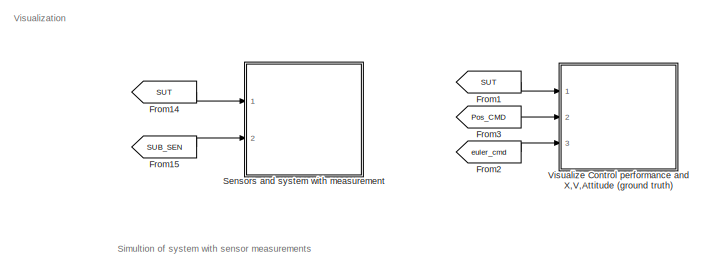
[diagram: root canvas - part 1/4, top right region]
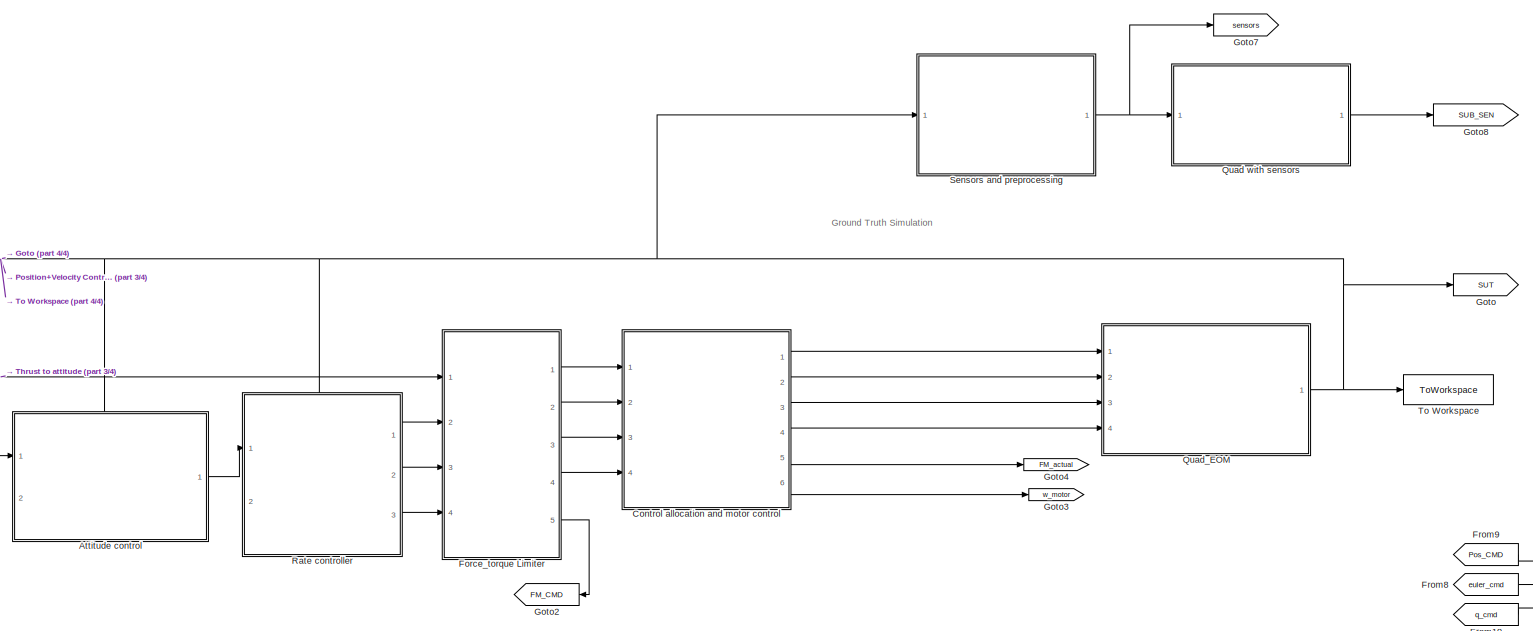
[diagram: root canvas - part 2/4, central region]
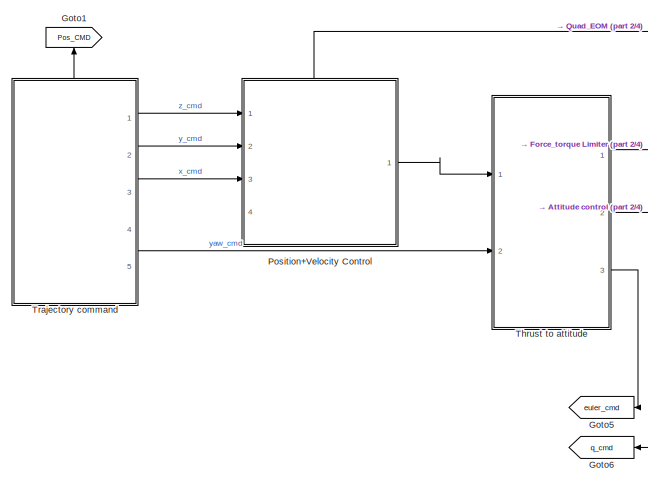
[diagram: root canvas - part 3/4, bottom left region]
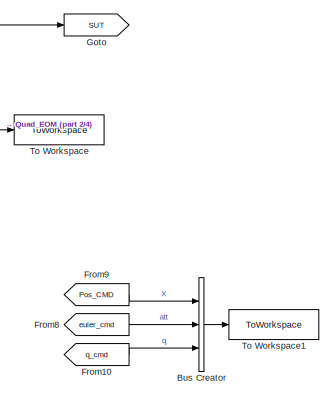
[diagram: root canvas - part 4/4, bottom right region]
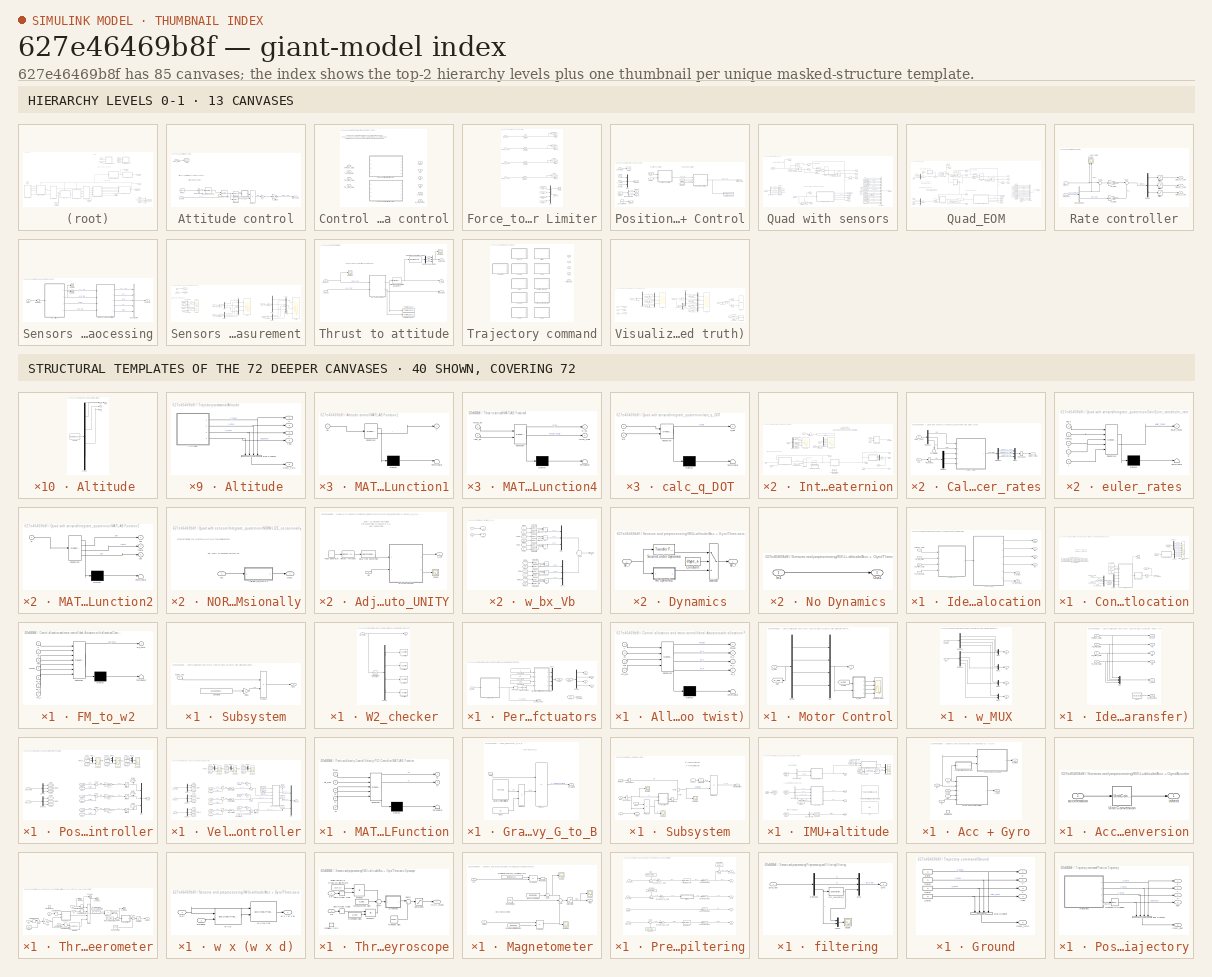
[diagram: thumbnail index - top-2 hierarchy levels (13 canvases) + 40 structural-template representatives of the remaining 72 canvases]
MODEL slx_627e46469b8f
KIND model
CONFIG AbsTol = auto
CONFIG EnableMultiTasking = off
CONFIG FixedStep = Ts
CONFIG MaxStep = auto
CONFIG MinStep = auto
CONFIG RelTol = 1e-5
CONFIG SampleTimeConstraint = Unconstrained
CONFIG SolverName = FixedStepAuto
CONFIG StartTime = 0.0
CONFIG StopTime = 200
BLOCK [SubSystem] Attitude control
  PortSchema = {"entries":[{"content":{"sides":[{"content":{"connectorIds":["In1"]},"type":"ConnectorPlacement.EquallySpacedRectSide","uuid":"19a574f6-5314-4727-8968-5b1c9712010e"},{"content":{"connectorIds":["Out1"],"side":"RIGHT"},"type":"ConnectorPlacement.EquallySpacedRectSide","uuid":"5cd6813f-6e17-48c1-918b-7c366c6d9cfa"},{"content":{"connectorIds":["In2"],"side":"TOP"},"type":"ConnectorPlacement.EquallySp...<+245ch>
  Ports = [2, 1]
  RequestExecContextInheritance = off
BLOCK [BusSelector] Attitude control/Bus Selector3
  OutputSignals = q
  Ports = [1, 1]
BLOCK [From] Attitude control/From2
  GotoTag = SUT
BLOCK [Goto] Attitude control/Goto
  GotoTag = SUT
BLOCK [Gain] Attitude control/K_attitude
  Gain = Kp_att
BLOCK [SubSystem] Attitude control/MATLAB Function1
  ErrorFcn = Stateflow.Translate.translate
  PermitHierarchicalResolution = ExplicitOnly
  Ports = [1, 1]
  RequestExecContextInheritance = off
  SFBlockType = MATLAB Function
  TreatAsAtomicUnit = on
BLOCK [Demux] Attitude control/MATLAB Function1/ Demux 
  Outputs = 1
  Ports = [1, 1]
BLOCK [S-Function] Attitude control/MATLAB Function1/ SFunction 
  EnableBusSupport = on
  FunctionName = sf_sfun
  PortCounts = [1 2]
  Ports = [1, 2]
  SFcnIsStateOwnerBlock = off
  SFunctionDeploymentMode = off
  Tag = Stateflow S-Function 2
BLOCK [Terminator] Attitude control/MATLAB Function1/ Terminator 
BLOCK [Inport] Attitude control/MATLAB Function1/q0
BLOCK [Outport] Attitude control/MATLAB Function1/y
BLOCK [Product] Attitude control/Product
  Ports = [2, 1]
BLOCK [Reference] Attitude control/Quaternion Inverse  REF=aerolibutil/Quaternion
Inverse
  Ports = [1, 1]
  SourceBlock = aerolibutil/Quaternion\nInverse
  SourceProductBaseCode = AE
  SourceType = Quaternion Inverse
BLOCK [Reference] Attitude control/Quaternion multiply  REF=aerolibutil/Quaternion
Multiplication
  Ports = [2, 1]
  SourceBlock = aerolibutil/Quaternion\nMultiplication
  SourceProductBaseCode = AE
  SourceType = Quaternion Multiplication
BLOCK [Inport] Attitude control/SUT_BUS
  Port = 2
BLOCK [Selector] Attitude control/Selector1
  IndexOptions = Index vector (dialog)
  Indices = 1
  InputPortWidth = 4
  OutputSizes = 1
  Ports = [1, 1]
BLOCK [Selector] Attitude control/Selector2
  IndexOptions = Index vector (dialog)
  Indices = 2:4
  InputPortWidth = 4
  OutputSizes = 1
  Ports = [1, 1]
BLOCK [Gain] Attitude control/k
  Gain = 2
BLOCK [Inport] Attitude control/q_cmd
BLOCK [Outport] Attitude control/rates_cmd
  VectorParamsAs1DForOutWhenUnconnected = off
BLOCK [BusCreator] Bus Creator
  DisplayOption = bar
  InheritFromInputs = on
  Inputs = 3
  Ports = [3, 1]
BLOCK [SubSystem] Control allocation and motor control
  LabelModeActiveChoice = Choice1
  Ports = [4, 6]
  RequestExecContextInheritance = off
  Variant = on
  VariantControlMode = label
BLOCK [SubSystem] Control allocation and motor control/Ideal Actuators with allocation
  Ports = [4, 6]
  RequestExecContextInheritance = off
  VariantControl = Choice2
BLOCK [SubSystem] Control allocation and motor control/Ideal Actuators with allocation/Control allocation
  NameLocation = top
  Ports = [4, 1]
  RequestExecContextInheritance = off
BLOCK [Scope] Control allocation and motor control/Ideal Actuators with allocation/Control allocation/CMD F_and_M and wRPS
  Floating = off
  NumInputPorts = 8
  Ports = [8]
  ScopeSpecificationString = Simulink.scopes.TimeScopeBlockCfg('CurrentConfiguration', extmgr.ConfigurationSet(extmgr.Configuration('Core','General UI',true),extmgr.Configuration('Core','Source UI',true),extmgr.Configuration('Sources','WiredSimulink',true,'DataLoggingVariableName','ScopeData2'),extmgr.Configuration('Visuals','Time Domain',true,'SerializedDisplays',{struct('MinYLimReal','9.095831992','MaxYLimReal','9.095832064...<+6307ch>
BLOCK [Constant] Control allocation and motor control/Ideal Actuators with allocation/Control allocation/Constant
  Value = kt
BLOCK [Constant] Control allocation and motor control/Ideal Actuators with allocation/Control allocation/Constant1
  Value = km
BLOCK [Constant] Control allocation and motor control/Ideal Actuators with allocation/Control allocation/Constant2
  Value = L
BLOCK [Demux] Control allocation and motor control/Ideal Actuators with allocation/Control allocation/Demux1
  Ports = [1, 4]
BLOCK [Demux] Control allocation and motor control/Ideal Actuators with allocation/Control allocation/Demux2
  Ports = [1, 4]
BLOCK [Demux] Control allocation and motor control/Ideal Actuators with allocation/Control allocation/Demux3
  Ports = [1, 4]
BLOCK [SubSystem] Control allocation and motor control/Ideal Actuators with allocation/Control allocation/FM_to_w2
  ErrorFcn = Stateflow.Translate.translate
  PermitHierarchicalResolution = ExplicitOnly
  Ports = [7, 1]
  RequestExecContextInheritance = off
  SFBlockType = MATLAB Function
  TreatAsAtomicUnit = on
BLOCK [Demux] Control allocation and motor control/Ideal Actuators with allocation/Control allocation/FM_to_w2/ Demux 
  Outputs = 1
  Ports = [1, 1]
BLOCK [S-Function] Control allocation and motor control/Ideal Actuators with allocation/Control allocation/FM_to_w2/ SFunction 
  EnableBusSupport = on
  FunctionName = sf_sfun
  PortCounts = [7 2]
  Ports = [7, 2]
  SFcnIsStateOwnerBlock = off
  SFunctionDeploymentMode = off
  Tag = Stateflow S-Function 3
BLOCK [Terminator] Control allocation and motor control/Ideal Actuators with allocation/Control allocation/FM_to_w2/ Terminator 
BLOCK [Inport] Control allocation and motor control/Ideal Actuators with allocation/Control allocation/FM_to_w2/L
BLOCK [Inport] Control allocation and motor control/Ideal Actuators with allocation/Control allocation/FM_to_w2/M_x
  Port = 5
BLOCK [Inport] Control allocation and motor control/Ideal Actuators with allocation/Control allocation/FM_to_w2/M_y
  Port = 6
BLOCK [Inport] Control allocation and motor control/Ideal Actuators with allocation/Control allocation/FM_to_w2/M_z
  Port = 7
BLOCK [Inport] Control allocation and motor control/Ideal Actuators with allocation/Control allocation/FM_to_w2/Thrust
  Port = 4
BLOCK [Inport] Control allocation and motor control/Ideal Actuators with allocation/Control allocation/FM_to_w2/km
  Port = 3
BLOCK [Inport] Control allocation and motor control/Ideal Actuators with allocation/Control allocation/FM_to_w2/kt
  Port = 2
BLOCK [Outport] Control allocation and motor control/Ideal Actuators with allocation/Control allocation/FM_to_w2/w2_cmd
  VectorParamsAs1DForOutWhenUnconnected = off
BLOCK [From] Control allocation and motor control/Ideal Actuators with allocation/Control allocation/From1
  GotoTag = FM_CMD
BLOCK [From] Control allocation and motor control/Ideal Actuators with allocation/Control allocation/From2
  GotoTag = w_CMD
BLOCK [From] Control allocation and motor control/Ideal Actuators with allocation/Control allocation/From3
  GotoTag = FM_CMD
BLOCK [Goto] Control allocation and motor control/Ideal Actuators with allocation/Control allocation/Goto
  GotoTag = FM_CMD
BLOCK [Goto] Control allocation and motor control/Ideal Actuators with allocation/Control allocation/Goto1
  GotoTag = w_CMD
  NameLocation = top
BLOCK [Mux] Control allocation and motor control/Ideal Actuators with allocation/Control allocation/Mux
  DisplayOption = bar
  Ports = [4, 1]
BLOCK [Scope] Control allocation and motor control/Ideal Actuators with allocation/Control allocation/Scope
  Floating = off
  NumInputPorts = 1
  Ports = [1]
  ScopeSpecificationString = Simulink.scopes.TimeScopeBlockCfg('CurrentConfiguration', extmgr.ConfigurationSet(extmgr.Configuration('Core','General UI',true),extmgr.Configuration('Core','Source UI',true),extmgr.Configuration('Sources','WiredSimulink',true,'DataLoggingVariableName','ScopeData4'),extmgr.Configuration('Visuals','Time Domain',true,'SerializedDisplays',{struct('MinYLimReal','-60714.54586','MaxYLimReal','546430.912...<+1604ch>
BLOCK [Sqrt] Control allocation and motor control/Ideal Actuators with allocation/Control allocation/Sqrt
BLOCK [SubSystem] Control allocation and motor control/Ideal Actuators with allocation/Control allocation/Subsystem
  Ports = [1, 1]
  RequestExecContextInheritance = off
BLOCK [Constant] Control allocation and motor control/Ideal Actuators with allocation/Control allocation/Subsystem/Constant3
  Value = 3.141592653589793
BLOCK [Gain] Control allocation and motor control/Ideal Actuators with allocation/Control allocation/Subsystem/Gain1
  Gain = 2
BLOCK [Product] Control allocation and motor control/Ideal Actuators with allocation/Control allocation/Subsystem/Product
  Inputs = */
  Ports = [2, 1]
BLOCK [Outport] Control allocation and motor control/Ideal Actuators with allocation/Control allocation/Subsystem/RPS
BLOCK [Inport] Control allocation and motor control/Ideal Actuators with allocation/Control allocation/Subsystem/w_per_sec
BLOCK [Inport] Control allocation and motor control/Ideal Actuators with allocation/Control allocation/THRUST_CMD
BLOCK [Inport] Control allocation and motor control/Ideal Actuators with allocation/Control allocation/TQ_Pitch_CMD
  Port = 3
BLOCK [Inport] Control allocation and motor control/Ideal Actuators with allocation/Control allocation/TQ_Roll_CMD
  Port = 2
BLOCK [Inport] Control allocation and motor control/Ideal Actuators with allocation/Control allocation/TQ_Yaw_CMD
  Port = 4
BLOCK [SubSystem] Control allocation and motor control/Ideal Actuators with allocation/Control allocation/W2_checker
  Ports = [1, 1]
  RequestExecContextInheritance = off
BLOCK [Assertion] Control allocation and motor control/Ideal Actuators with allocation/Control allocation/W2_checker/Assertion
BLOCK [Assertion] Control allocation and motor control/Ideal Actuators with allocation/Control allocation/W2_checker/Assertion1
BLOCK [Assertion] Control allocation and motor control/Ideal Actuators with allocation/Control allocation/W2_checker/Assertion2
BLOCK [Assertion] Control allocation and motor control/Ideal Actuators with allocation/Control allocation/W2_checker/Assertion3
BLOCK [Reference] Control allocation and motor control/Ideal Actuators with allocation/Control allocation/W2_checker/Compare To Constant  REF=simulink/Logic and Bit
Operations/Compare
To Constant
  Ports = [1, 1]
  SourceBlock = simulink/Logic and Bit\nOperations/Compare\nTo Constant
  SourceProductBaseCode = SL
  SourceType = Compare To Constant
BLOCK [Demux] Control allocation and motor control/Ideal Actuators with allocation/Control allocation/W2_checker/Demux
  Ports = [1, 4]
BLOCK [Outport] Control allocation and motor control/Ideal Actuators with allocation/Control allocation/W2_checker/w2
  VectorParamsAs1DForOutWhenUnconnected = off
BLOCK [Inport] Control allocation and motor control/Ideal Actuators with allocation/Control allocation/W2_checker/w2_CMD
BLOCK [Outport] Control allocation and motor control/Ideal Actuators with allocation/Control allocation/w_command
  VectorParamsAs1DForOutWhenUnconnected = off
BLOCK [Outport] Control allocation and motor control/Ideal Actuators with allocation/Mx
  Port = 2
BLOCK [Outport] Control allocation and motor control/Ideal Actuators with allocation/My
  Port = 3
BLOCK [Outport] Control allocation and motor control/Ideal Actuators with allocation/Mz
  Port = 4
BLOCK [SubSystem] Control allocation and motor control/Ideal Actuators with allocation/Perfect actuators
  Ports = [1, 6]
  RequestExecContextInheritance = off
  VariantControl = Choice2
BLOCK [SubSystem] Control allocation and motor control/Ideal Actuators with allocation/Perfect actuators/Allocation matrix (motor speed to twist)
  ErrorFcn = Stateflow.Translate.translate
  NameLocation = top
  PermitHierarchicalResolution = ExplicitOnly
  Ports = [4, 4]
  RequestExecContextInheritance = off
  SFBlockType = MATLAB Function
  TreatAsAtomicUnit = on
BLOCK [Demux] Control allocation and motor control/Ideal Actuators with allocation/Perfect actuators/Allocation matrix (motor speed to twist)/ Demux 
  Outputs = 1
  Ports = [1, 1]
BLOCK [S-Function] Control allocation and motor control/Ideal Actuators with allocation/Perfect actuators/Allocation matrix (motor speed to twist)/ SFunction 
  EnableBusSupport = on
  FunctionName = sf_sfun
  PortCounts = [4 5]
  Ports = [4, 5]
  SFcnIsStateOwnerBlock = off
  SFunctionDeploymentMode = off
  Tag = Stateflow S-Function 12
BLOCK [Terminator] Control allocation and motor control/Ideal Actuators with allocation/Perfect actuators/Allocation matrix (motor speed to twist)/ Terminator 
BLOCK [Inport] Control allocation and motor control/Ideal Actuators with allocation/Perfect actuators/Allocation matrix (motor speed to twist)/L
BLOCK [Outport] Control allocation and motor control/Ideal Actuators with allocation/Perfect actuators/Allocation matrix (motor speed to twist)/M_x
  Port = 2
  VectorParamsAs1DForOutWhenUnconnected = off
BLOCK [Outport] Control allocation and motor control/Ideal Actuators with allocation/Perfect actuators/Allocation matrix (motor speed to twist)/M_y
  Port = 3
  VectorParamsAs1DForOutWhenUnconnected = off
BLOCK [Outport] Control allocation and motor control/Ideal Actuators with allocation/Perfect actuators/Allocation matrix (motor speed to twist)/M_z
  Port = 4
  VectorParamsAs1DForOutWhenUnconnected = off
BLOCK [Outport] Control allocation and motor control/Ideal Actuators with allocation/Perfect actuators/Allocation matrix (motor speed to twist)/Thrust
  VectorParamsAs1DForOutWhenUnconnected = off
BLOCK [Inport] Control allocation and motor control/Ideal Actuators with allocation/Perfect actuators/Allocation matrix (motor speed to twist)/km
  Port = 3
BLOCK [Inport] Control allocation and motor control/Ideal Actuators with allocation/Perfect actuators/Allocation matrix (motor speed to twist)/kt
  Port = 2
BLOCK [Inport] Control allocation and motor control/Ideal Actuators with allocation/Perfect actuators/Allocation matrix (motor speed to twist)/w2_col
  Port = 4
BLOCK [Constant] Control allocation and motor control/Ideal Actuators with allocation/Perfect actuators/Constant3
  Value = kt
BLOCK [Constant] Control allocation and motor control/Ideal Actuators with allocation/Perfect actuators/Constant4
  Value = km
BLOCK [Constant] Control allocation and motor control/Ideal Actuators with allocation/Perfect actuators/Constant5
  Value = L
BLOCK [Demux] Control allocation and motor control/Ideal Actuators with allocation/Perfect actuators/Demux
  Ports = [1, 4]
BLOCK [From] Control allocation and motor control/Ideal Actuators with allocation/Perfect actuators/From4
  GotoTag = FM
BLOCK [From] Control allocation and motor control/Ideal Actuators with allocation/Perfect actuators/From5
  GotoTag = FM
BLOCK [Goto] Control allocation and motor control/Ideal Actuators with allocation/Perfect actuators/Goto2
  GotoTag = FM
BLOCK [Math] Control allocation and motor control/Ideal Actuators with allocation/Perfect actuators/Math Function1
  Operator = square
  Ports = [1, 1]
  SignedPower = on
BLOCK [SubSystem] Control allocation and motor control/Ideal Actuators with allocation/Perfect actuators/Motor Control
  Ports = [1, 1]
  RequestExecContextInheritance = off
BLOCK [Demux] Control allocation and motor control/Ideal Actuators with allocation/Perfect actuators/Motor Control/Demux
  Ports = [1, 4]
BLOCK [From] Control allocation and motor control/Ideal Actuators with allocation/Perfect actuators/Motor Control/From1
  GotoTag = W_CMD
BLOCK [Goto] Control allocation and motor control/Ideal Actuators with allocation/Perfect actuators/Motor Control/Goto
  GotoTag = W_CMD
  NameLocation = top
BLOCK [Mux] Control allocation and motor control/Ideal Actuators with allocation/Perfect actuators/Motor Control/Mux
  DisplayOption = bar
  Ports = [4, 1]
BLOCK [Outport] Control allocation and motor control/Ideal Actuators with allocation/Perfect actuators/Motor Control/w
  VectorParamsAs1DForOutWhenUnconnected = off
BLOCK [Scope] Control allocation and motor control/Ideal Actuators with allocation/Perfect actuators/Motor Control/w CMD vs Actual
  Floating = off
  NameLocation = top
  NumInputPorts = 4
  Ports = [4]
  ScopeSpecificationString = Simulink.scopes.TimeScopeBlockCfg('CurrentConfiguration', extmgr.ConfigurationSet(extmgr.Configuration('Core','General UI',true),extmgr.Configuration('Core','Source UI',true),extmgr.Configuration('Sources','WiredSimulink',true,'DataLoggingVariableName','ScopeData3'),extmgr.Configuration('Visuals','Time Domain',true,'SerializedDisplays',{struct('MinYLimReal','-72.71853','MaxYLimReal','654.46676','Y...<+3524ch>
BLOCK [Inport] Control allocation and motor control/Ideal Actuators with allocation/Perfect actuators/Motor Control/w_CMD
BLOCK [SubSystem] Control allocation and motor control/Ideal Actuators with allocation/Perfect actuators/Motor Control/w_MUX
  NameLocation = top
  Ports = [2, 4]
  RequestExecContextInheritance = off
BLOCK [Demux] Control allocation and motor control/Ideal Actuators with allocation/Perfect actuators/Motor Control/w_MUX/Demux1
  Ports = [1, 4]
BLOCK [Demux] Control allocation and motor control/Ideal Actuators with allocation/Perfect actuators/Motor Control/w_MUX/Demux2
  Ports = [1, 4]
BLOCK [Mux] Control allocation and motor control/Ideal Actuators with allocation/Perfect actuators/Motor Control/w_MUX/Mux
  DisplayOption = bar
  Inputs = 2
  Ports = [2, 1]
BLOCK [Mux] Control allocation and motor control/Ideal Actuators with allocation/Perfect actuators/Motor Control/w_MUX/Mux1
  DisplayOption = bar
  Inputs = 2
  Ports = [2, 1]
BLOCK [Mux] Control allocation and motor control/Ideal Actuators with allocation/Perfect actuators/Motor Control/w_MUX/Mux2
  DisplayOption = bar
  Inputs = 2
  Ports = [2, 1]
BLOCK [Mux] Control allocation and motor control/Ideal Actuators with allocation/Perfect actuators/Motor Control/w_MUX/Mux3
  DisplayOption = bar
  Inputs = 2
  Ports = [2, 1]
BLOCK [Inport] Control allocation and motor control/Ideal Actuators with allocation/Perfect actuators/Motor Control/w_MUX/W
  Port = 2
BLOCK [Inport] Control allocation and motor control/Ideal Actuators with allocation/Perfect actuators/Motor Control/w_MUX/W_CMD
BLOCK [Outport] Control allocation and motor control/Ideal Actuators with allocation/Perfect actuators/Motor Control/w_MUX/w1
  VectorParamsAs1DForOutWhenUnconnected = off
BLOCK [Outport] Control allocation and motor control/Ideal Actuators with allocation/Perfect actuators/Motor Control/w_MUX/w2
  Port = 2
  VectorParamsAs1DForOutWhenUnconnected = off
BLOCK [Outport] Control allocation and motor control/Ideal Actuators with allocation/Perfect actuators/Motor Control/w_MUX/w3
  Port = 3
  VectorParamsAs1DForOutWhenUnconnected = off
BLOCK [Outport] Control allocation and motor control/Ideal Actuators with allocation/Perfect actuators/Motor Control/w_MUX/w4
  Port = 4
  VectorParamsAs1DForOutWhenUnconnected = off
BLOCK [Mux] Control allocation and motor control/Ideal Actuators with allocation/Perfect actuators/Mux1
  DisplayOption = bar
  Ports = [4, 1]
BLOCK [Outport] Control allocation and motor control/Ideal Actuators with allocation/Perfect actuators/Mx
  Port = 2
  VectorParamsAs1DForOutWhenUnconnected = off
BLOCK [Outport] Control allocation and motor control/Ideal Actuators with allocation/Perfect actuators/My
  Port = 3
  VectorParamsAs1DForOutWhenUnconnected = off
BLOCK [Outport] Control allocation and motor control/Ideal Actuators with allocation/Perfect actuators/Mz
  Port = 4
  VectorParamsAs1DForOutWhenUnconnected = off
BLOCK [Reshape] Control allocation and motor control/Ideal Actuators with allocation/Perfect actuators/Reshape1
  OutputDimensionality = Column vector (2-D)
  Ports = [1, 1]
BLOCK [Outport] Control allocation and motor control/Ideal Actuators with allocation/Perfect actuators/T_actual
  Port = 5
  VectorParamsAs1DForOutWhenUnconnected = off
BLOCK [Outport] Control allocation and motor control/Ideal Actuators with allocation/Perfect actuators/Thrust
  NameLocation = top
  VectorParamsAs1DForOutWhenUnconnected = off
BLOCK [Inport] Control allocation and motor control/Ideal Actuators with allocation/Perfect actuators/w_cmd
BLOCK [Outport] Control allocation and motor control/Ideal Actuators with allocation/Perfect actuators/w_mot_actual
  Port = 6
  VectorParamsAs1DForOutWhenUnconnected = off
BLOCK [Inport] Control allocation and motor control/Ideal Actuators with allocation/THRUST_CMD
BLOCK [Inport] Control allocation and motor control/Ideal Actuators with allocation/TQ_Pitch_CMD
  Port = 3
BLOCK [Inport] Control allocation and motor control/Ideal Actuators with allocation/TQ_Roll_CMD
  Port = 2
BLOCK [Inport] Control allocation and motor control/Ideal Actuators with allocation/TQ_Yaw_CMD
  Port = 4
BLOCK [Outport] Control allocation and motor control/Ideal Actuators with allocation/T_actual
  Port = 5
BLOCK [Outport] Control allocation and motor control/Ideal Actuators with allocation/Thrust
BLOCK [Outport] Control allocation and motor control/Ideal Actuators with allocation/w_mot_actual
  Port = 6
BLOCK [SubSystem] Control allocation and motor control/Ideal Actuattion (direct transfer)
  Ports = [4, 6]
  RequestExecContextInheritance = off
  VariantControl = Choice1
BLOCK [Mux] Control allocation and motor control/Ideal Actuattion (direct transfer)/Mux
  DisplayOption = bar
  Ports = [4, 1]
BLOCK [Outport] Control allocation and motor control/Ideal Actuattion (direct transfer)/Mx
  Port = 2
BLOCK [Outport] Control allocation and motor control/Ideal Actuattion (direct transfer)/My
  Port = 3
BLOCK [Outport] Control allocation and motor control/Ideal Actuattion (direct transfer)/Mz
  Port = 4
BLOCK [Inport] Control allocation and motor control/Ideal Actuattion (direct transfer)/THRUST_CMD
BLOCK [Inport] Control allocation and motor control/Ideal Actuattion (direct transfer)/TQ_Pitch_CMD
  Port = 3
BLOCK [Inport] Control allocation and motor control/Ideal Actuattion (direct transfer)/TQ_Roll_CMD
  Port = 2
BLOCK [Inport] Control allocation and motor control/Ideal Actuattion (direct transfer)/TQ_Yaw_CMD
  Port = 4
BLOCK [Outport] Control allocation and motor control/Ideal Actuattion (direct transfer)/T_actual
  Port = 5
BLOCK [Outport] Control allocation and motor control/Ideal Actuattion (direct transfer)/Thrust
BLOCK [Constant] Control allocation and motor control/Ideal Actuattion (direct transfer)/Zero
  OutDataTypeStr = Inherit: Inherit via back propagation
  Value = [0;0;0;0]
BLOCK [Outport] Control allocation and motor control/Ideal Actuattion (direct transfer)/w_mot_actual
  Port = 6
BLOCK [Outport] Control allocation and motor control/Mx
  Port = 2
BLOCK [Outport] Control allocation and motor control/My
  Port = 3
BLOCK [Outport] Control allocation and motor control/Mz
  Port = 4
BLOCK [Inport] Control allocation and motor control/THRUST_CMD
BLOCK [Inport] Control allocation and motor control/TQ_Pitch_CMD
  Port = 3
BLOCK [Inport] Control allocation and motor control/TQ_Roll_CMD
  Port = 2
BLOCK [Inport] Control allocation and motor control/TQ_Yaw_CMD
  Port = 4
BLOCK [Outport] Control allocation and motor control/T_actual
  Port = 5
BLOCK [Outport] Control allocation and motor control/Thrust
BLOCK [Outport] Control allocation and motor control/w_mot_actual
  Port = 6
BLOCK [SubSystem] Force_torque Limiter
  NameLocation = top
  Ports = [4, 5]
  RequestExecContextInheritance = off
BLOCK [Outport] Force_torque Limiter/CMD_VEC
  Port = 5
  VectorParamsAs1DForOutWhenUnconnected = off
BLOCK [From] Force_torque Limiter/From
  GotoTag = TQ_Roll_X
BLOCK [From] Force_torque Limiter/From1
  GotoTag = THRUST
BLOCK [From] Force_torque Limiter/From2
  GotoTag = TQ_Pitch_Y
BLOCK [From] Force_torque Limiter/From3
  GotoTag = TQ_Yaw_Z
BLOCK [Goto] Force_torque Limiter/Goto
  GotoTag = THRUST
BLOCK [Goto] Force_torque Limiter/Goto1
  GotoTag = TQ_Roll_X
BLOCK [Goto] Force_torque Limiter/Goto2
  GotoTag = TQ_Pitch_Y
BLOCK [Goto] Force_torque Limiter/Goto3
  GotoTag = TQ_Yaw_Z
BLOCK [Mux] Force_torque Limiter/Mux
  DisplayOption = bar
  Ports = [4, 1]
BLOCK [Saturate] Force_torque Limiter/Saturation
  AttributesFormatString = MAX =    %<UpperLimit>\nMIN = %<LowerLimit>
  LowerLimit = -thrust_max
  UpperLimit = thrust_max
BLOCK [Saturate] Force_torque Limiter/Saturation1
  AttributesFormatString = MAX =    %<UpperLimit>\nMIN = %<LowerLimit>
  LowerLimit = -2*TQ_max_per_motor
  UpperLimit = 2*TQ_max_per_motor
BLOCK [Saturate] Force_torque Limiter/Saturation2
  AttributesFormatString = MAX =    %<UpperLimit>\nMIN = %<LowerLimit>
  LowerLimit = -thrust_max_per_motor *L
  UpperLimit = thrust_max_per_motor*L
BLOCK [Saturate] Force_torque Limiter/Saturation3
  AttributesFormatString = MAX =    %<UpperLimit>\nMIN = %<LowerLimit>
  LowerLimit = -thrust_max_per_motor *L
  UpperLimit = thrust_max_per_motor*L
BLOCK [Scope] Force_torque Limiter/Scope
  Floating = off
  NumInputPorts = 1
  Ports = [1]
  ScopeSpecificationString = Simulink.scopes.TimeScopeBlockCfg('CurrentConfiguration', extmgr.ConfigurationSet(extmgr.Configuration('Core','General UI',true),extmgr.Configuration('Core','Source UI',true),extmgr.Configuration('Sources','WiredSimulink',true,'DataLoggingVariableName','ScopeData3'),extmgr.Configuration('Visuals','Time Domain',true,'SerializedDisplays',{struct('MinYLimReal','-10.23281','MaxYLimReal','1.13698','YLa...<+1415ch>
BLOCK [Outport] Force_torque Limiter/thrust
  VectorParamsAs1DForOutWhenUnconnected = off
BLOCK [Inport] Force_torque Limiter/thrust_cmd
BLOCK [Outport] Force_torque Limiter/torque_x
  Port = 2
  VectorParamsAs1DForOutWhenUnconnected = off
BLOCK [Inport] Force_torque Limiter/torque_x_cmd
  Port = 2
BLOCK [Outport] Force_torque Limiter/torque_y
  Port = 3
  VectorParamsAs1DForOutWhenUnconnected = off
BLOCK [Inport] Force_torque Limiter/torque_y_cmd
  Port = 3
BLOCK [Outport] Force_torque Limiter/torque_z
  Port = 4
  VectorParamsAs1DForOutWhenUnconnected = off
BLOCK [Inport] Force_torque Limiter/torque_z_cmd
  Port = 4
BLOCK [From] From1
  GotoTag = SUT
BLOCK [From] From10
  GotoTag = q_cmd
BLOCK [From] From14
  GotoTag = SUT
BLOCK [From] From15
  GotoTag = SUB_SEN
BLOCK [From] From2
  GotoTag = euler_cmd
BLOCK [From] From3
  GotoTag = Pos_CMD
BLOCK [From] From8
  GotoTag = euler_cmd
BLOCK [From] From9
  GotoTag = Pos_CMD
BLOCK [Goto] Goto
  GotoTag = SUT
BLOCK [Goto] Goto1
  GotoTag = Pos_CMD
  NameLocation = right
BLOCK [Goto] Goto2
  GotoTag = FM_CMD
  NameLocation = top
BLOCK [Goto] Goto3
  GotoTag = w_motor
BLOCK [Goto] Goto4
  GotoTag = FM_actual
BLOCK [Goto] Goto5
  GotoTag = euler_cmd
  NameLocation = top
BLOCK [Goto] Goto6
  GotoTag = q_cmd
  NameLocation = top
BLOCK [Goto] Goto7
  GotoTag = sensors
BLOCK [Goto] Goto8
  GotoTag = SUB_SEN
BLOCK [SubSystem] Position+Velocity Control
  PortSchema = {"entries":[{"content":{"sides":[{"content":{"connectorIds":["In1","In2","In3"]},"type":"ConnectorPlacement.EquallySpacedRectSide","uuid":"cfe37ea9-b8e2-443a-9d65-596f0fda79c9"},{"content":{"connectorIds":["Out1"],"side":"RIGHT"},"type":"ConnectorPlacement.EquallySpacedRectSide","uuid":"f39f64e1-4b16-444a-b7d2-95ecb1b2a6fa"},{"content":{"connectorIds":["In4"],"side":"TOP"},"type":"ConnectorPlaceme...<+257ch>
  Ports = [4, 1]
  RequestExecContextInheritance = off
BLOCK [BusSelector] Position+Velocity Control/Bus Selector3
  OutputSignals = Xe,Ve
  Ports = [1, 2]
BLOCK [From] Position+Velocity Control/From12
  GotoTag = acc_sp
BLOCK [From] Position+Velocity Control/From2
  GotoTag = SUT
BLOCK [From] Position+Velocity Control/From3
  GotoTag = V
BLOCK [From] Position+Velocity Control/From7
  GotoTag = P_sp
BLOCK [From] Position+Velocity Control/From8
  GotoTag = P
BLOCK [Goto] Position+Velocity Control/Goto
  GotoTag = SUT
BLOCK [Goto] Position+Velocity Control/Goto11
  GotoTag = V
BLOCK [Goto] Position+Velocity Control/Goto12
  GotoTag = P
BLOCK [Goto] Position+Velocity Control/Goto13
  GotoTag = P_sp
BLOCK [Goto] Position+Velocity Control/Goto16
  GotoTag = acc_sp
BLOCK [Mux] Position+Velocity Control/Mux
  DisplayOption = bar
  Inputs = 3
  Ports = [3, 1]
BLOCK [SubSystem] Position+Velocity Control/Position P Controller
  Ports = [2, 1]
  RequestExecContextInheritance = off
BLOCK [Demux] Position+Velocity Control/Position P Controller/Demux
  Outputs = 3
  Ports = [1, 3]
BLOCK [Demux] Position+Velocity Control/Position P Controller/Demux1
  Outputs = 3
  Ports = [1, 3]
BLOCK [From] Position+Velocity Control/Position P Controller/From1
  GotoTag = x
BLOCK [From] Position+Velocity Control/Position P Controller/From10
  GotoTag = y_cmd
BLOCK [From] Position+Velocity Control/Position P Controller/From11
  GotoTag = z_cmd
BLOCK [From] Position+Velocity Control/Position P Controller/From12
  GotoTag = z
BLOCK [From] Position+Velocity Control/Position P Controller/From13
  GotoTag = x
BLOCK [From] Position+Velocity Control/Position P Controller/From14
  GotoTag = vx_out
BLOCK [From] Position+Velocity Control/Position P Controller/From15
  GotoTag = vz_out
BLOCK [From] Position+Velocity Control/Position P Controller/From2
  GotoTag = x_cmd
BLOCK [From] Position+Velocity Control/Position P Controller/From3
  GotoTag = x_cmd
BLOCK [From] Position+Velocity Control/Position P Controller/From4
  GotoTag = z
BLOCK [From] Position+Velocity Control/Position P Controller/From5
  GotoTag = z_cmd
BLOCK [From] Position+Velocity Control/Position P Controller/From6
  GotoTag = y
BLOCK [From] Position+Velocity Control/Position P Controller/From7
  GotoTag = y_cmd
BLOCK [From] Position+Velocity Control/Position P Controller/From8
  GotoTag = y
BLOCK [From] Position+Velocity Control/Position P Controller/From9
  GotoTag = vy_out
BLOCK [Goto] Position+Velocity Control/Position P Controller/Goto
  GotoTag = x_cmd
BLOCK [Goto] Position+Velocity Control/Position P Controller/Goto1
  GotoTag = y_cmd
BLOCK [Goto] Position+Velocity Control/Position P Controller/Goto2
  GotoTag = z_cmd
BLOCK [Goto] Position+Velocity Control/Position P Controller/Goto3
  GotoTag = x
BLOCK [Goto] Position+Velocity Control/Position P Controller/Goto4
  GotoTag = y
BLOCK [Goto] Position+Velocity Control/Position P Controller/Goto5
  GotoTag = z
BLOCK [Goto] Position+Velocity Control/Position P Controller/Goto6
  GotoTag = vx_out
  NameLocation = right
BLOCK [Goto] Position+Velocity Control/Position P Controller/Goto7
  GotoTag = vy_out
  NameLocation = right
BLOCK [Goto] Position+Velocity Control/Position P Controller/Goto8
  GotoTag = vz_out
  NameLocation = right
BLOCK [Gain] Position+Velocity Control/Position P Controller/Kp_x
  Gain = Kp_pos(1)
BLOCK [Gain] Position+Velocity Control/Position P Controller/Kp_y
  Gain = Kp_pos(2)
BLOCK [Gain] Position+Velocity Control/Position P Controller/Kp_z
  Gain = Kp_pos(3)
BLOCK [Mux] Position+Velocity Control/Position P Controller/Mux
  DisplayOption = bar
  Inputs = 3
  Ports = [3, 1]
BLOCK [Mux] Position+Velocity Control/Position P Controller/Mux1
  DisplayOption = bar
  Inputs = 2
  Ports = [2, 1]
BLOCK [Mux] Position+Velocity Control/Position P Controller/Mux2
  DisplayOption = bar
  Inputs = 2
  Ports = [2, 1]
BLOCK [Mux] Position+Velocity Control/Position P Controller/Mux3
  DisplayOption = bar
  Inputs = 2
  Ports = [2, 1]
BLOCK [Scope] Position+Velocity Control/Position P Controller/Scope1
  Floating = off
  NumInputPorts = 2
  Ports = [2]
  ScopeSpecificationString = Simulink.scopes.TimeScopeBlockCfg('CurrentConfiguration', extmgr.ConfigurationSet(extmgr.Configuration('Core','General UI',true),extmgr.Configuration('Core','Source UI',true),extmgr.Configuration('Sources','WiredSimulink',true,'DataLoggingVariableName','ScopeData7'),extmgr.Configuration('Visuals','Time Domain',true,'SerializedDisplays',{struct('MinYLimReal','-0.13476','MaxYLimReal','1.12608','YLab...<+2132ch>
BLOCK [Scope] Position+Velocity Control/Position P Controller/Scope2
  Floating = off
  NumInputPorts = 2
  Ports = [2]
  ScopeSpecificationString = Simulink.scopes.TimeScopeBlockCfg('CurrentConfiguration', extmgr.ConfigurationSet(extmgr.Configuration('Core','General UI',true),extmgr.Configuration('Core','Source UI',true),extmgr.Configuration('Sources','WiredSimulink',true,'DataLoggingVariableName','ScopeData2'),extmgr.Configuration('Visuals','Time Domain',true,'SerializedDisplays',{struct('MinYLimReal','-0.00000000000000003','MaxYLimReal','0....<+2204ch>
BLOCK [Scope] Position+Velocity Control/Position P Controller/Scope3
  Floating = off
  NumInputPorts = 2
  Ports = [2]
  ScopeSpecificationString = Simulink.scopes.TimeScopeBlockCfg('CurrentConfiguration', extmgr.ConfigurationSet(extmgr.Configuration('Core','General UI',true),extmgr.Configuration('Core','Source UI',true),extmgr.Configuration('Sources','WiredSimulink',true,'DataLoggingVariableName','ScopeData3'),extmgr.Configuration('Visuals','Time Domain',true,'SerializedDisplays',{struct('MinYLimReal','-0.01078','MaxYLimReal','0.00173','YLab...<+2132ch>
BLOCK [Sum] Position+Velocity Control/Position P Controller/Sum
  Inputs = |+-
  Ports = [2, 1]
BLOCK [Sum] Position+Velocity Control/Position P Controller/Sum1
  Inputs = |+-
  Ports = [2, 1]
BLOCK [Sum] Position+Velocity Control/Position P Controller/Sum3
  Inputs = |+-
  Ports = [2, 1]
BLOCK [Outport] Position+Velocity Control/Position P Controller/V_sp
BLOCK [Saturate] Position+Velocity Control/Position P Controller/limit vel x
  LowerLimit = -vel_xy_max
  UpperLimit = vel_xy_max
BLOCK [Saturate] Position+Velocity Control/Position P Controller/limit vel y
  LowerLimit = -vel_xy_max
  UpperLimit = vel_xy_max
BLOCK [Saturate] Position+Velocity Control/Position P Controller/limit vel z
  LowerLimit = -vel_z_max
  UpperLimit = vel_z_max
BLOCK [Inport] Position+Velocity Control/Position P Controller/pos_cmd
BLOCK [Inport] Position+Velocity Control/Position P Controller/pos_cur
  Port = 2
BLOCK [Inport] Position+Velocity Control/SUT_BUS
  Port = 4
BLOCK [ToWorkspace] Position+Velocity Control/To Workspace2
  FixptAsFi = on
  MaxDataPoints = inf
  Ports = [1]
  SampleTime = -1
  SaveFormat = Timeseries
  VariableName = thrust_sp
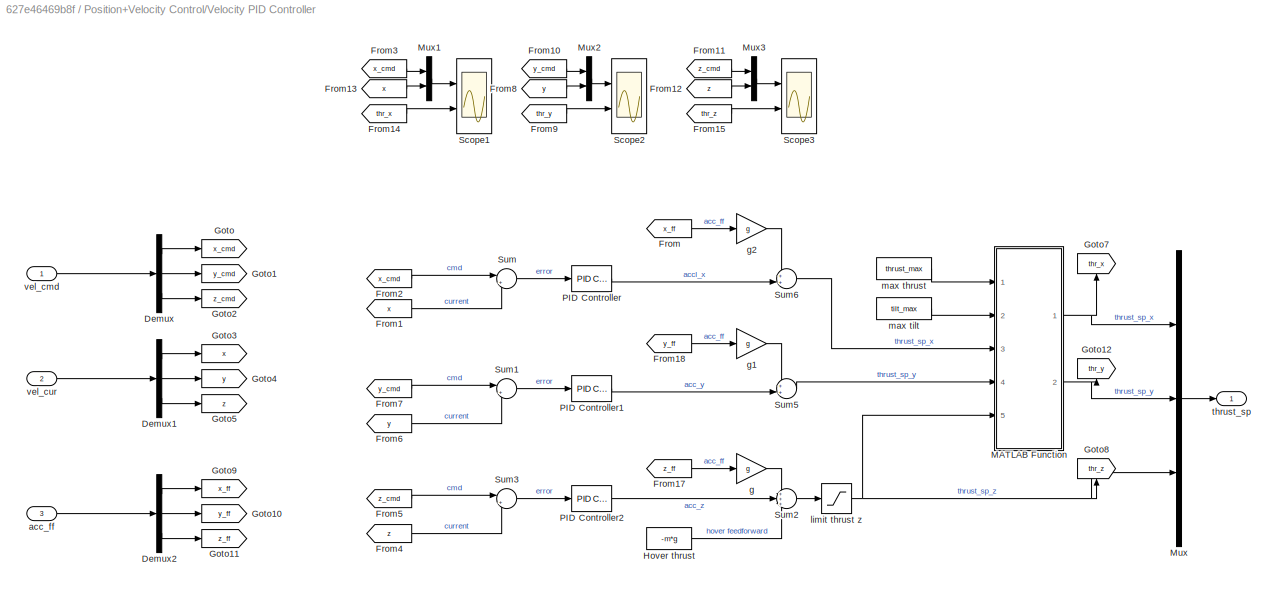
BLOCK [SubSystem] Position+Velocity Control/Velocity PID Controller
  Ports = [3, 1]
  RequestExecContextInheritance = off
BLOCK [Demux] Position+Velocity Control/Velocity PID Controller/Demux
  Outputs = 3
  Ports = [1, 3]
BLOCK [Demux] Position+Velocity Control/Velocity PID Controller/Demux1
  Outputs = 3
  Ports = [1, 3]
BLOCK [Demux] Position+Velocity Control/Velocity PID Controller/Demux2
  Outputs = 3
  Ports = [1, 3]
BLOCK [From] Position+Velocity Control/Velocity PID Controller/From
  GotoTag = x_ff
BLOCK [From] Position+Velocity Control/Velocity PID Controller/From1
  GotoTag = x
BLOCK [From] Position+Velocity Control/Velocity PID Controller/From10
  GotoTag = y_cmd
BLOCK [From] Position+Velocity Control/Velocity PID Controller/From11
  GotoTag = z_cmd
BLOCK [From] Position+Velocity Control/Velocity PID Controller/From12
  GotoTag = z
BLOCK [From] Position+Velocity Control/Velocity PID Controller/From13
  GotoTag = x
BLOCK [From] Position+Velocity Control/Velocity PID Controller/From14
  GotoTag = thr_x
BLOCK [From] Position+Velocity Control/Velocity PID Controller/From15
  GotoTag = thr_z
BLOCK [From] Position+Velocity Control/Velocity PID Controller/From17
  GotoTag = z_ff
BLOCK [From] Position+Velocity Control/Velocity PID Controller/From18
  GotoTag = y_ff
BLOCK [From] Position+Velocity Control/Velocity PID Controller/From2
  GotoTag = x_cmd
BLOCK [From] Position+Velocity Control/Velocity PID Controller/From3
  GotoTag = x_cmd
BLOCK [From] Position+Velocity Control/Velocity PID Controller/From4
  GotoTag = z
BLOCK [From] Position+Velocity Control/Velocity PID Controller/From5
  GotoTag = z_cmd
BLOCK [From] Position+Velocity Control/Velocity PID Controller/From6
  GotoTag = y
BLOCK [From] Position+Velocity Control/Velocity PID Controller/From7
  GotoTag = y_cmd
BLOCK [From] Position+Velocity Control/Velocity PID Controller/From8
  GotoTag = y
BLOCK [From] Position+Velocity Control/Velocity PID Controller/From9
  GotoTag = thr_y
BLOCK [Goto] Position+Velocity Control/Velocity PID Controller/Goto
  GotoTag = x_cmd
BLOCK [Goto] Position+Velocity Control/Velocity PID Controller/Goto1
  GotoTag = y_cmd
BLOCK [Goto] Position+Velocity Control/Velocity PID Controller/Goto10
  GotoTag = y_ff
BLOCK [Goto] Position+Velocity Control/Velocity PID Controller/Goto11
  GotoTag = z_ff
BLOCK [Goto] Position+Velocity Control/Velocity PID Controller/Goto12
  GotoTag = thr_y
  NameLocation = right
BLOCK [Goto] Position+Velocity Control/Velocity PID Controller/Goto2
  GotoTag = z_cmd
BLOCK [Goto] Position+Velocity Control/Velocity PID Controller/Goto3
  GotoTag = x
BLOCK [Goto] Position+Velocity Control/Velocity PID Controller/Goto4
  GotoTag = y
BLOCK [Goto] Position+Velocity Control/Velocity PID Controller/Goto5
  GotoTag = z
BLOCK [Goto] Position+Velocity Control/Velocity PID Controller/Goto7
  GotoTag = thr_x
  NameLocation = right
BLOCK [Goto] Position+Velocity Control/Velocity PID Controller/Goto8
  GotoTag = thr_z
  NameLocation = right
BLOCK [Goto] Position+Velocity Control/Velocity PID Controller/Goto9
  GotoTag = x_ff
BLOCK [Constant] Position+Velocity Control/Velocity PID Controller/Hover thrust
  Value = -m*g
BLOCK [SubSystem] Position+Velocity Control/Velocity PID Controller/MATLAB Function
  ErrorFcn = Stateflow.Translate.translate
  PermitHierarchicalResolution = ExplicitOnly
  Ports = [5, 2]
  RequestExecContextInheritance = off
  SFBlockType = MATLAB Function
  TreatAsAtomicUnit = on
BLOCK [Demux] Position+Velocity Control/Velocity PID Controller/MATLAB Function/ Demux 
  Outputs = 1
  Ports = [1, 1]
BLOCK [S-Function] Position+Velocity Control/Velocity PID Controller/MATLAB Function/ SFunction 
  EnableBusSupport = on
  FunctionName = sf_sfun
  PortCounts = [5 3]
  Ports = [5, 3]
  SFcnIsStateOwnerBlock = off
  SFunctionDeploymentMode = off
  Tag = Stateflow S-Function 4
BLOCK [Terminator] Position+Velocity Control/Velocity PID Controller/MATLAB Function/ Terminator 
BLOCK [Inport] Position+Velocity Control/Velocity PID Controller/MATLAB Function/Tmax
BLOCK [Outport] Position+Velocity Control/Velocity PID Controller/MATLAB Function/Tx
BLOCK [Inport] Position+Velocity Control/Velocity PID Controller/MATLAB Function/Tx 
  Port = 3
BLOCK [Outport] Position+Velocity Control/Velocity PID Controller/MATLAB Function/Ty
  Port = 2
BLOCK [Inport] Position+Velocity Control/Velocity PID Controller/MATLAB Function/Ty 
  Port = 4
BLOCK [Inport] Position+Velocity Control/Velocity PID Controller/MATLAB Function/Tz
  Port = 5
BLOCK [Inport] Position+Velocity Control/Velocity PID Controller/MATLAB Function/tilt_max
  Port = 2
BLOCK [Mux] Position+Velocity Control/Velocity PID Controller/Mux
  DisplayOption = bar
  Inputs = 3
  Ports = [3, 1]
BLOCK [Mux] Position+Velocity Control/Velocity PID Controller/Mux1
  DisplayOption = bar
  Inputs = 2
  Ports = [2, 1]
BLOCK [Mux] Position+Velocity Control/Velocity PID Controller/Mux2
  DisplayOption = bar
  Inputs = 2
  Ports = [2, 1]
BLOCK [Mux] Position+Velocity Control/Velocity PID Controller/Mux3
  DisplayOption = bar
  Inputs = 2
  Ports = [2, 1]
BLOCK [Reference] Position+Velocity Control/Velocity PID Controller/PID Controller  REF=pid_lib/PID Controller
  Ports = [1, 1]
  SourceBlock = pid_lib/PID Controller
  SourceProductBaseCode = SL
  SourceType = PID 1dof
BLOCK [Reference] Position+Velocity Control/Velocity PID Controller/PID Controller1  REF=pid_lib/PID Controller
  Ports = [1, 1]
  SourceBlock = pid_lib/PID Controller
  SourceProductBaseCode = SL
  SourceType = PID 1dof
BLOCK [Reference] Position+Velocity Control/Velocity PID Controller/PID Controller2  REF=pid_lib/PID Controller
  Ports = [1, 1]
  SourceBlock = pid_lib/PID Controller
  SourceProductBaseCode = SL
  SourceType = PID 1dof
BLOCK [Scope] Position+Velocity Control/Velocity PID Controller/Scope1
  Floating = off
  NumInputPorts = 2
  Ports = [2]
  ScopeSpecificationString = Simulink.scopes.TimeScopeBlockCfg('CurrentConfiguration', extmgr.ConfigurationSet(extmgr.Configuration('Core','General UI',true),extmgr.Configuration('Core','Source UI',true),extmgr.Configuration('Sources','WiredSimulink',true,'DataLoggingVariableName','ScopeData1'),extmgr.Configuration('Visuals','Time Domain',true,'SerializedDisplays',{struct('MinYLimReal','-0.72603','MaxYLimReal','0.97915','YLab...<+2134ch>
BLOCK [Scope] Position+Velocity Control/Velocity PID Controller/Scope2
  Floating = off
  NumInputPorts = 2
  Ports = [2]
  ScopeSpecificationString = Simulink.scopes.TimeScopeBlockCfg('CurrentConfiguration', extmgr.ConfigurationSet(extmgr.Configuration('Core','General UI',true),extmgr.Configuration('Core','Source UI',true),extmgr.Configuration('Sources','WiredSimulink',true,'DataLoggingVariableName','ScopeData5'),extmgr.Configuration('Visuals','Time Domain',true,'SerializedDisplays',{struct('MinYLimReal','-0.0000000000000006','MaxYLimReal','0.0...<+2198ch>
BLOCK [Scope] Position+Velocity Control/Velocity PID Controller/Scope3
  Floating = off
  NumInputPorts = 2
  Ports = [2]
  ScopeSpecificationString = Simulink.scopes.TimeScopeBlockCfg('CurrentConfiguration', extmgr.ConfigurationSet(extmgr.Configuration('Core','General UI',true),extmgr.Configuration('Core','Source UI',true),extmgr.Configuration('Sources','WiredSimulink',true,'DataLoggingVariableName','ScopeData6'),extmgr.Configuration('Visuals','Time Domain',true,'SerializedDisplays',{struct('MinYLimReal','-0.08311','MaxYLimReal','0.04099','YLab...<+2135ch>
BLOCK [Sum] Position+Velocity Control/Velocity PID Controller/Sum
  Inputs = |+-
  Ports = [2, 1]
BLOCK [Sum] Position+Velocity Control/Velocity PID Controller/Sum1
  Inputs = |+-
  Ports = [2, 1]
BLOCK [Sum] Position+Velocity Control/Velocity PID Controller/Sum2
  Inputs = +++
  Ports = [3, 1]
BLOCK [Sum] Position+Velocity Control/Velocity PID Controller/Sum3
  Inputs = |+-
  Ports = [2, 1]
BLOCK [Sum] Position+Velocity Control/Velocity PID Controller/Sum5
  Inputs = ++|
  Ports = [2, 1]
BLOCK [Sum] Position+Velocity Control/Velocity PID Controller/Sum6
  Inputs = ++|
  Ports = [2, 1]
BLOCK [Inport] Position+Velocity Control/Velocity PID Controller/acc_ff
  Port = 3
BLOCK [Gain] Position+Velocity Control/Velocity PID Controller/g
  Gain = g
BLOCK [Gain] Position+Velocity Control/Velocity PID Controller/g1
  Gain = g
BLOCK [Gain] Position+Velocity Control/Velocity PID Controller/g2
  Gain = g
BLOCK [Saturate] Position+Velocity Control/Velocity PID Controller/limit thrust z
  LowerLimit = -thrust_max
  UpperLimit = thrust_max
BLOCK [Constant] Position+Velocity Control/Velocity PID Controller/max thrust
  Value = thrust_max
BLOCK [Constant] Position+Velocity Control/Velocity PID Controller/max tilt
  Value = tilt_max
BLOCK [Outport] Position+Velocity Control/Velocity PID Controller/thrust_sp
BLOCK [Inport] Position+Velocity Control/Velocity PID Controller/vel_cmd
BLOCK [Inport] Position+Velocity Control/Velocity PID Controller/vel_cur
  Port = 2
BLOCK [Inport] Position+Velocity Control/X_cmd
  Port = 3
BLOCK [Inport] Position+Velocity Control/Y_cmd
  Port = 2
BLOCK [Inport] Position+Velocity Control/Z_cmd
BLOCK [Constant] Position+Velocity Control/acc setpoint
  Value = [0;0;0]
BLOCK [Outport] Position+Velocity Control/thrust_cmd
BLOCK [SubSystem] Quad with sensors
  NameLocation = top
  Ports = [1, 1]
  RequestExecContextInheritance = off
BLOCK [BusCreator] Quad with sensors/Bus Creator
  DisplayOption = bar
  InheritFromInputs = on
  Inputs = 18
  Ports = [18, 1]
BLOCK [BusSelector] Quad with sensors/Bus Selector
  OutputSignals = gyro,acc,mag,acc_zero,alt
  Ports = [1, 5]
BLOCK [Constant] Quad with sensors/Constant2
  OutDataTypeStr = Inherit: Inherit via back propagation
  Value = Vb_init
BLOCK [Constant] Quad with sensors/Constant4
  OutDataTypeStr = Inherit: Inherit via back propagation
  Value = Xe_init
BLOCK [Derivative] Quad with sensors/Derivative
BLOCK [From] Quad with sensors/From
  GotoTag = Ve
BLOCK [From] Quad with sensors/From1
  GotoTag = Xe
BLOCK [From] Quad with sensors/From10
  GotoTag = q
BLOCK [From] Quad with sensors/From11
  GotoTag = Ab
BLOCK [From] Quad with sensors/From12
  GotoTag = bRg
BLOCK [From] Quad with sensors/From13
  GotoTag = Abi
BLOCK [From] Quad with sensors/From14
  GotoTag = gyro
BLOCK [From] Quad with sensors/From15
  GotoTag = acc
BLOCK [From] Quad with sensors/From16
  GotoTag = gyro
BLOCK [From] Quad with sensors/From17
  GotoTag = mag
BLOCK [From] Quad with sensors/From18
  GotoTag = acc_zero
BLOCK [From] Quad with sensors/From19
  GotoTag = alt
BLOCK [From] Quad with sensors/From2
  GotoTag = Euler
BLOCK [From] Quad with sensors/From3
  GotoTag = bRg
BLOCK [From] Quad with sensors/From4
  GotoTag = Vb
BLOCK [From] Quad with sensors/From5
  GotoTag = wb
BLOCK [From] Quad with sensors/From6
  GotoTag = wb_dot
BLOCK [From] Quad with sensors/From7
  GotoTag = Ab
BLOCK [From] Quad with sensors/From8
  GotoTag = Euler_rates
BLOCK [From] Quad with sensors/From9
  GotoTag = acc_zero
BLOCK [Goto] Quad with sensors/Goto
  GotoTag = Ve
BLOCK [Goto] Quad with sensors/Goto1
  GotoTag = Xe
BLOCK [Goto] Quad with sensors/Goto10
  GotoTag = Aw
BLOCK [Goto] Quad with sensors/Goto11
  GotoTag = Abi
BLOCK [Goto] Quad with sensors/Goto12
  GotoTag = gyro
BLOCK [Goto] Quad with sensors/Goto13
  GotoTag = acc
BLOCK [Goto] Quad with sensors/Goto14
  GotoTag = mag
BLOCK [Goto] Quad with sensors/Goto15
  GotoTag = acc_zero
BLOCK [Goto] Quad with sensors/Goto16
  GotoTag = alt
BLOCK [Goto] Quad with sensors/Goto2
  GotoTag = Euler
BLOCK [Goto] Quad with sensors/Goto3
  GotoTag = bRg
BLOCK [Goto] Quad with sensors/Goto4
  GotoTag = Vb
BLOCK [Goto] Quad with sensors/Goto5
  GotoTag = Ab
BLOCK [Goto] Quad with sensors/Goto6
  GotoTag = Euler_rates
BLOCK [Goto] Quad with sensors/Goto7
  GotoTag = wb
BLOCK [Goto] Quad with sensors/Goto8
  GotoTag = wb_dot
BLOCK [Goto] Quad with sensors/Goto9
  GotoTag = q
BLOCK [SubSystem] Quad with sensors/Integrate_quaternion
  Ports = [1, 4]
  RequestExecContextInheritance = off
BLOCK [SubSystem] Quad with sensors/Integrate_quaternion/Calc Euler_rates
  Ports = [2, 1]
  RequestExecContextInheritance = off
BLOCK [Demux] Quad with sensors/Integrate_quaternion/Calc Euler_rates/Demux1
  Outputs = 3
  Ports = [1, 3]
BLOCK [Demux] Quad with sensors/Integrate_quaternion/Calc Euler_rates/Demux2
  Outputs = 3
  Ports = [1, 3]
BLOCK [Demux] Quad with sensors/Integrate_quaternion/Calc Euler_rates/Demux3
  Outputs = 3
  Ports = [1, 3]
BLOCK [Inport] Quad with sensors/Integrate_quaternion/Calc Euler_rates/Euler_angs
  Port = 2
BLOCK [Outport] Quad with sensors/Integrate_quaternion/Calc Euler_rates/Euler_rates
BLOCK [Mux] Quad with sensors/Integrate_quaternion/Calc Euler_rates/Mux1
  DisplayOption = bar
  Inputs = 3
  Ports = [3, 1]
BLOCK [Reshape] Quad with sensors/Integrate_quaternion/Calc Euler_rates/Reshape1
  OutputDimensionality = Column vector (2-D)
  Ports = [1, 1]
BLOCK [Reshape] Quad with sensors/Integrate_quaternion/Calc Euler_rates/Reshape2
  OutputDimensionality = Column vector (2-D)
  Ports = [1, 1]
BLOCK [Terminator] Quad with sensors/Integrate_quaternion/Calc Euler_rates/Terminator
  NameLocation = left
BLOCK [SubSystem] Quad with sensors/Integrate_quaternion/Calc Euler_rates/euler_rates
  ErrorFcn = Stateflow.Translate.translate
  PermitHierarchicalResolution = ExplicitOnly
  Ports = [5, 1]
  RequestExecContextInheritance = off
  SFBlockType = MATLAB Function
  TreatAsAtomicUnit = on
BLOCK [Demux] Quad with sensors/Integrate_quaternion/Calc Euler_rates/euler_rates/ Demux 
  Outputs = 1
  Ports = [1, 1]
BLOCK [S-Function] Quad with sensors/Integrate_quaternion/Calc Euler_rates/euler_rates/ SFunction 
  EnableBusSupport = on
  FunctionName = sf_sfun
  PortCounts = [5 2]
  Ports = [5, 2]
  SFcnIsStateOwnerBlock = off
  SFunctionDeploymentMode = off
  Tag = Stateflow S-Function 8
BLOCK [Terminator] Quad with sensors/Integrate_quaternion/Calc Euler_rates/euler_rates/ Terminator 
BLOCK [Outport] Quad with sensors/Integrate_quaternion/Calc Euler_rates/euler_rates/euler_rates
BLOCK [Inport] Quad with sensors/Integrate_quaternion/Calc Euler_rates/euler_rates/p
  Port = 3
BLOCK [Inport] Quad with sensors/Integrate_quaternion/Calc Euler_rates/euler_rates/phi_t
BLOCK [Inport] Quad with sensors/Integrate_quaternion/Calc Euler_rates/euler_rates/q
  Port = 4
BLOCK [Inport] Quad with sensors/Integrate_quaternion/Calc Euler_rates/euler_rates/r
  Port = 5
BLOCK [Inport] Quad with sensors/Integrate_quaternion/Calc Euler_rates/euler_rates/theta_t
  Port = 2
BLOCK [Inport] Quad with sensors/Integrate_quaternion/Calc Euler_rates/p q r 
BLOCK [Constant] Quad with sensors/Integrate_quaternion/Constant5
  OutDataTypeStr = Inherit: Inherit via back propagation
  Value = q_init
BLOCK [Demux] Quad with sensors/Integrate_quaternion/Demux1
  Outputs = 3
  Ports = [1, 3]
BLOCK [Demux] Quad with sensors/Integrate_quaternion/Demux2
  Ports = [1, 4]
BLOCK [Display] Quad with sensors/Integrate_quaternion/Display
  Decimation = 1
  Ports = [1]
BLOCK [DotProduct] Quad with sensors/Integrate_quaternion/Dot Product
  OutDataTypeStr = Inherit: Inherit via internal rule
BLOCK [DotProduct] Quad with sensors/Integrate_quaternion/Dot Product1
  OutDataTypeStr = Inherit: Inherit via internal rule
BLOCK [Scope] Quad with sensors/Integrate_quaternion/EYES_CMD
  Floating = off
  NumInputPorts = 3
  Ports = [3]
  ScopeSpecificationString = Simulink.scopes.TimeScopeBlockCfg('CurrentConfiguration', extmgr.ConfigurationSet(extmgr.Configuration('Core','General UI',true),extmgr.Configuration('Core','Source UI',true),extmgr.Configuration('Sources','WiredSimulink',true,'DataLoggingVariableName','ScopeData1'),extmgr.Configuration('Visuals','Time Domain',true,'SerializedDisplays',{struct('MinYLimReal','-225.00000','MaxYLimReal','225.00000','...<+2791ch>
BLOCK [Scope] Quad with sensors/Integrate_quaternion/EYES_q
  Floating = off
  NumInputPorts = 5
  Ports = [5]
  ScopeSpecificationString = Simulink.scopes.TimeScopeBlockCfg('CurrentConfiguration', extmgr.ConfigurationSet(extmgr.Configuration('Core','General UI',true),extmgr.Configuration('Core','Source UI',true),extmgr.Configuration('Sources','WiredSimulink',true,'DataLoggingVariableName','ScopeData8'),extmgr.Configuration('Visuals','Time Domain',true,'SerializedDisplays',{struct('MinYLimReal','0.94031','MaxYLimReal','1.00663','YLabe...<+6464ch>
BLOCK [Outport] Quad with sensors/Integrate_quaternion/Euler
  Port = 3
BLOCK [Outport] Quad with sensors/Integrate_quaternion/Euler_rates
BLOCK [From] Quad with sensors/Integrate_quaternion/From
  GotoTag = wb
BLOCK [From] Quad with sensors/Integrate_quaternion/From1
  GotoTag = Eul
BLOCK [From] Quad with sensors/Integrate_quaternion/From2
  GotoTag = Eul
BLOCK [From] Quad with sensors/Integrate_quaternion/From3
  GotoTag = q
BLOCK [From] Quad with sensors/Integrate_quaternion/From4
  GotoTag = q
BLOCK [From] Quad with sensors/Integrate_quaternion/From5
  GotoTag = q
BLOCK [From] Quad with sensors/Integrate_quaternion/From6
  GotoTag = q
BLOCK [Goto] Quad with sensors/Integrate_quaternion/Goto
  GotoTag = wb
  NameLocation = top
BLOCK [Goto] Quad with sensors/Integrate_quaternion/Goto1
  GotoTag = Eul
  NameLocation = top
BLOCK [Goto] Quad with sensors/Integrate_quaternion/Goto3
  GotoTag = bRg
BLOCK [Goto] Quad with sensors/Integrate_quaternion/Goto4
  GotoTag = q
BLOCK [Integrator] Quad with sensors/Integrate_quaternion/Integrator1
  InitialConditionSource = external
  Ports = [2, 1]
BLOCK [SubSystem] Quad with sensors/Integrate_quaternion/MATLAB Function2
  ErrorFcn = Stateflow.Translate.translate
  PermitHierarchicalResolution = ExplicitOnly
  Ports = [1, 3]
  RequestExecContextInheritance = off
  SFBlockType = MATLAB Function
  TreatAsAtomicUnit = on
BLOCK [Demux] Quad with sensors/Integrate_quaternion/MATLAB Function2/ Demux 
  Outputs = 1
  Ports = [1, 1]
BLOCK [S-Function] Quad with sensors/Integrate_quaternion/MATLAB Function2/ SFunction 
  EnableBusSupport = on
  FunctionName = sf_sfun
  PortCounts = [1 4]
  Ports = [1, 4]
  SFcnIsStateOwnerBlock = off
  SFunctionDeploymentMode = off
  Tag = Stateflow S-Function 9
BLOCK [Terminator] Quad with sensors/Integrate_quaternion/MATLAB Function2/ Terminator 
BLOCK [Inport] Quad with sensors/Integrate_quaternion/MATLAB Function2/R
BLOCK [Outport] Quad with sensors/Integrate_quaternion/MATLAB Function2/phi
BLOCK [Outport] Quad with sensors/Integrate_quaternion/MATLAB Function2/psi
  Port = 3
BLOCK [Outport] Quad with sensors/Integrate_quaternion/MATLAB Function2/theta
  Port = 2
BLOCK [Mux] Quad with sensors/Integrate_quaternion/Mux
  DisplayOption = bar
  Inputs = 3
  Ports = [3, 1]
BLOCK [SubSystem] Quad with sensors/Integrate_quaternion/NORMLIZE_occasionally
  Commented = on
  Ports = [1, 1]
  RequestExecContextInheritance = off
BLOCK [SubSystem] Quad with sensors/Integrate_quaternion/NORMLIZE_occasionally/Adjust_to_UNITY
  Ports = [1, 1]
  RequestExecContextInheritance = off
BLOCK [DataTypeConversion] Quad with sensors/Integrate_quaternion/NORMLIZE_occasionally/Adjust_to_UNITY/Data Type Conversion
  OutDataTypeStr = double
  RndMeth = Floor
  SaturateOnIntegerOverflow = off
BLOCK [Reference] Quad with sensors/Integrate_quaternion/NORMLIZE_occasionally/Adjust_to_UNITY/Detect Increase  REF=simulink/Logic and Bit
Operations/Detect
Increase
  Ports = [1, 1]
  SourceBlock = simulink/Logic and Bit\nOperations/Detect\nIncrease
  SourceProductBaseCode = SL
  SourceType = Detect Increase
BLOCK [SubSystem] Quad with sensors/Integrate_quaternion/NORMLIZE_occasionally/Adjust_to_UNITY/MATLAB Function
  ErrorFcn = Stateflow.Translate.translate
  PermitHierarchicalResolution = ExplicitOnly
  Ports = [2, 2]
  RequestExecContextInheritance = off
  SFBlockType = MATLAB Function
  TreatAsAtomicUnit = on
BLOCK [Demux] Quad with sensors/Integrate_quaternion/NORMLIZE_occasionally/Adjust_to_UNITY/MATLAB Function/ Demux 
  Outputs = 1
  Ports = [1, 1]
BLOCK [S-Function] Quad with sensors/Integrate_quaternion/NORMLIZE_occasionally/Adjust_to_UNITY/MATLAB Function/ SFunction 
  EnableBusSupport = on
  FunctionName = sf_sfun
  PortCounts = [2 3]
  Ports = [2, 3]
  SFcnIsStateOwnerBlock = off
  SFunctionDeploymentMode = off
  Tag = Stateflow S-Function 11
BLOCK [Terminator] Quad with sensors/Integrate_quaternion/NORMLIZE_occasionally/Adjust_to_UNITY/MATLAB Function/ Terminator 
BLOCK [Inport] Quad with sensors/Integrate_quaternion/NORMLIZE_occasionally/Adjust_to_UNITY/MATLAB Function/change_signal
BLOCK [Outport] Quad with sensors/Integrate_quaternion/NORMLIZE_occasionally/Adjust_to_UNITY/MATLAB Function/mag_of_q
  Port = 2
BLOCK [Outport] Quad with sensors/Integrate_quaternion/NORMLIZE_occasionally/Adjust_to_UNITY/MATLAB Function/q
BLOCK [Inport] Quad with sensors/Integrate_quaternion/NORMLIZE_occasionally/Adjust_to_UNITY/MATLAB Function/q_in
  Port = 2
BLOCK [DiscretePulseGenerator] Quad with sensors/Integrate_quaternion/NORMLIZE_occasionally/Adjust_to_UNITY/Pulse Generator
  NameLocation = top
  Period = 10
  Ports = [0, 1]
  PulseType = Time based
  PulseWidth = 50
BLOCK [Scope] Quad with sensors/Integrate_quaternion/NORMLIZE_occasionally/Adjust_to_UNITY/Scope
  Floating = off
  NumInputPorts = 1
  Ports = [1]
  ScopeSpecificationString = Simulink.scopes.TimeScopeBlockCfg('CurrentConfiguration', extmgr.ConfigurationSet(extmgr.Configuration('Core','General UI',true),extmgr.Configuration('Core','Source UI',true),extmgr.Configuration('Sources','WiredSimulink',true,'DataLoggingVariableName','ScopeData3'),extmgr.Configuration('Visuals','Time Domain',true,'SerializedDisplays',{struct('MinYLimReal','-1.00000','MaxYLimReal','1.00000','YLab...<+1481ch>
BLOCK [Outport] Quad with sensors/Integrate_quaternion/NORMLIZE_occasionally/Adjust_to_UNITY/q_unit
BLOCK [Inport] Quad with sensors/Integrate_quaternion/NORMLIZE_occasionally/Adjust_to_UNITY/qin
BLOCK [Inport] Quad with sensors/Integrate_quaternion/NORMLIZE_occasionally/In1
BLOCK [Outport] Quad with sensors/Integrate_quaternion/NORMLIZE_occasionally/Out1
BLOCK [Reference] Quad with sensors/Integrate_quaternion/Quaternion Normalize  REF=sharedutil/Quaternion
Normalize
  Ports = [1, 1]
  SourceBlock = sharedutil/Quaternion\nNormalize
  SourceProductBaseCode = AE,PW,DR,MT,UV,VE
  SourceType = Quaternion Normalize
BLOCK [Reference] Quad with sensors/Integrate_quaternion/Quaternions to Direction Cosine Matrix  REF=sharedtransform/Quaternions to 
Direction Cosine Matrix
  Commented = on
  Ports = [1, 1]
  SourceBlock = sharedtransform/Quaternions to \nDirection Cosine Matrix
  SourceProductBaseCode = AE,PW,DR,MT,UV,VE
  SourceType = Quaternion2DCM
BLOCK [Reference] Quad with sensors/Integrate_quaternion/Radians to Degrees  REF=simulink_extras/Transformations/Radians
to Degrees
  Ports = [1, 1]
  SourceBlock = simulink_extras/Transformations/Radians\nto Degrees
  SourceProductBaseCode = SL
  SourceType = RadiansToDegrees
BLOCK [Reference] Quad with sensors/Integrate_quaternion/Radians to Degrees1  REF=simulink_extras/Transformations/Radians
to Degrees
  Ports = [1, 1]
  SourceBlock = simulink_extras/Transformations/Radians\nto Degrees
  SourceProductBaseCode = SL
  SourceType = RadiansToDegrees
BLOCK [Reference] Quad with sensors/Integrate_quaternion/Radians to Degrees2  REF=simulink_extras/Transformations/Radians
to Degrees
  Ports = [1, 1]
  SourceBlock = simulink_extras/Transformations/Radians\nto Degrees
  SourceProductBaseCode = SL
  SourceType = RadiansToDegrees
BLOCK [Reshape] Quad with sensors/Integrate_quaternion/Reshape1
  OutputDimensionality = Column vector (2-D)
  Ports = [1, 1]
BLOCK [Reshape] Quad with sensors/Integrate_quaternion/Reshape3
  OutputDimensionality = Column vector (2-D)
  Ports = [1, 1]
BLOCK [Outport] Quad with sensors/Integrate_quaternion/bRg
  Port = 2
BLOCK [SubSystem] Quad with sensors/Integrate_quaternion/calc_bRg
  ErrorFcn = Stateflow.Translate.translate
  PermitHierarchicalResolution = ExplicitOnly
  Ports = [1, 1]
  RequestExecContextInheritance = off
  SFBlockType = MATLAB Function
  TreatAsAtomicUnit = on
BLOCK [Demux] Quad with sensors/Integrate_quaternion/calc_bRg/ Demux 
  Outputs = 1
  Ports = [1, 1]
BLOCK [S-Function] Quad with sensors/Integrate_quaternion/calc_bRg/ SFunction 
  EnableBusSupport = on
  FunctionName = sf_sfun
  PortCounts = [1 2]
  Ports = [1, 2]
  SFcnIsStateOwnerBlock = off
  SFunctionDeploymentMode = off
  Tag = Stateflow S-Function 15
BLOCK [Terminator] Quad with sensors/Integrate_quaternion/calc_bRg/ Terminator 
BLOCK [Outport] Quad with sensors/Integrate_quaternion/calc_bRg/bRg
BLOCK [Inport] Quad with sensors/Integrate_quaternion/calc_bRg/q
BLOCK [SubSystem] Quad with sensors/Integrate_quaternion/calc_q_DOT
  ErrorFcn = Stateflow.Translate.translate
  PermitHierarchicalResolution = ExplicitOnly
  Ports = [2, 1]
  RequestExecContextInheritance = off
  SFBlockType = MATLAB Function
  TreatAsAtomicUnit = on
BLOCK [Demux] Quad with sensors/Integrate_quaternion/calc_q_DOT/ Demux 
  Outputs = 1
  Ports = [1, 1]
BLOCK [S-Function] Quad with sensors/Integrate_quaternion/calc_q_DOT/ SFunction 
  EnableBusSupport = on
  FunctionName = sf_sfun
  PortCounts = [2 2]
  Ports = [2, 2]
  SFcnIsStateOwnerBlock = off
  SFunctionDeploymentMode = off
  Tag = Stateflow S-Function 16
BLOCK [Terminator] Quad with sensors/Integrate_quaternion/calc_q_DOT/ Terminator 
BLOCK [Inport] Quad with sensors/Integrate_quaternion/calc_q_DOT/q
BLOCK [Outport] Quad with sensors/Integrate_quaternion/calc_q_DOT/q_dot
BLOCK [Inport] Quad with sensors/Integrate_quaternion/calc_q_DOT/wb
  Port = 2
BLOCK [Outport] Quad with sensors/Integrate_quaternion/q
  Port = 4
BLOCK [Inport] Quad with sensors/Integrate_quaternion/wb
BLOCK [Sum] Quad with sensors/Minus
  IconShape = rectangular
  Inputs = +-
  Ports = [2, 1]
BLOCK [Reference] Quad with sensors/Quaternion Inverse  REF=aerolibutil/Quaternion
Inverse
  Ports = [1, 1]
  SourceBlock = aerolibutil/Quaternion\nInverse
  SourceProductBaseCode = AE
  SourceType = Quaternion Inverse
BLOCK [Reference] Quad with sensors/Quaternion Rotation (q*v*q^-1)  REF=aerolibutil/Quaternion
Rotation
  Ports = [2, 1]
  SourceBlock = aerolibutil/Quaternion\nRotation
  SourceProductBaseCode = AE
  SourceType = Quaternion Rotation
BLOCK [Reshape] Quad with sensors/Reshape2
  OutputDimensionality = Column vector (2-D)
  Ports = [1, 1]
BLOCK [Reshape] Quad with sensors/Reshape3
  OutputDimensionality = Column vector (2-D)
  Ports = [1, 1]
BLOCK [Reshape] Quad with sensors/Reshape7
  OutputDimensionality = Column vector (2-D)
  Ports = [1, 1]
BLOCK [Scope] Quad with sensors/Scope
  Floating = off
  NumInputPorts = 1
  Ports = [1]
  ScopeSpecificationString = Simulink.scopes.TimeScopeBlockCfg('CurrentConfiguration', extmgr.ConfigurationSet(extmgr.Configuration('Core','General UI',true),extmgr.Configuration('Core','Source UI',true),extmgr.Configuration('Sources','WiredSimulink',true,'DataLoggingVariableName','ScopeData5'),extmgr.Configuration('Visuals','Time Domain',true,'SerializedDisplays',{struct('MinYLimReal','-5.82932','MaxYLimReal','5.76675','YLab...<+1516ch>
BLOCK [Math] Quad with sensors/Transpose
  Operator = transpose
  Ports = [1, 1]
BLOCK [UnitDelay] Quad with sensors/Unit Delay
  HasFrameUpgradeWarning = on
  SampleTime = -1
BLOCK [Outport] Quad with sensors/VEH_BUS
  VectorParamsAs1DForOutWhenUnconnected = off
BLOCK [Inport] Quad with sensors/sensors
BLOCK [Integrator] Quad with sensors/ub,vb,wb
  InitialCondition = Vm_0
  InitialConditionSource = external
  Ports = [2, 1]
BLOCK [Integrator] Quad with sensors/xe,ye,ze
  InitialCondition = xme_0
  InitialConditionSource = external
  Ports = [2, 1]
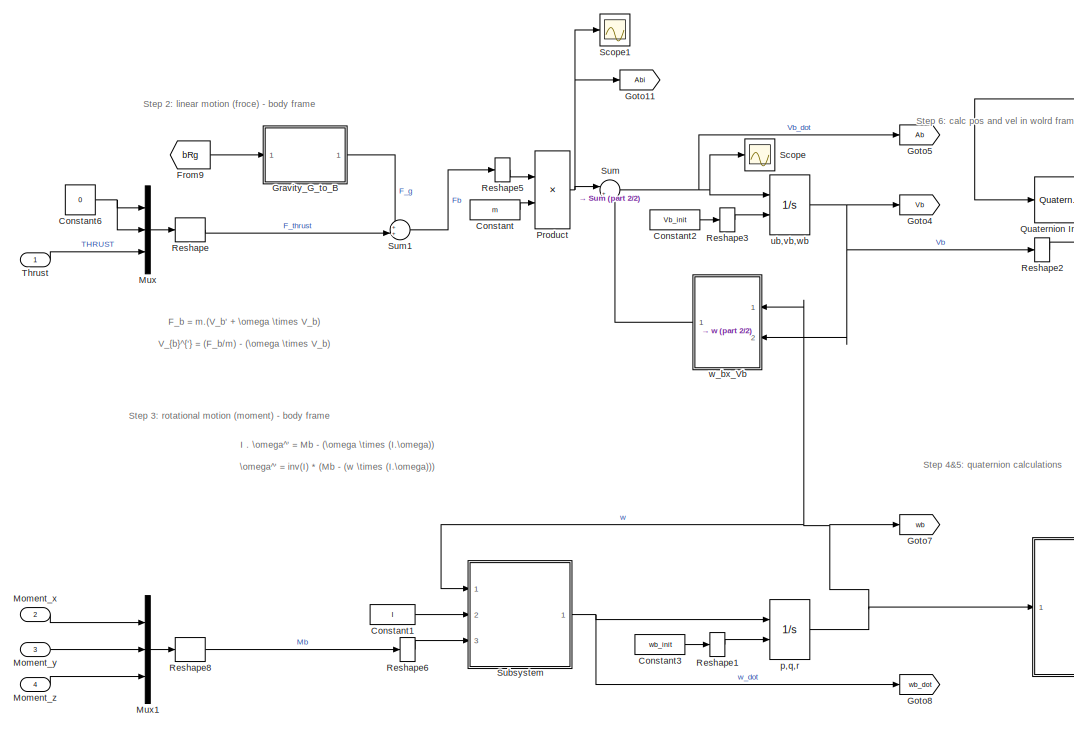
[diagram: Quad_EOM - part 1/2, left side, full height]
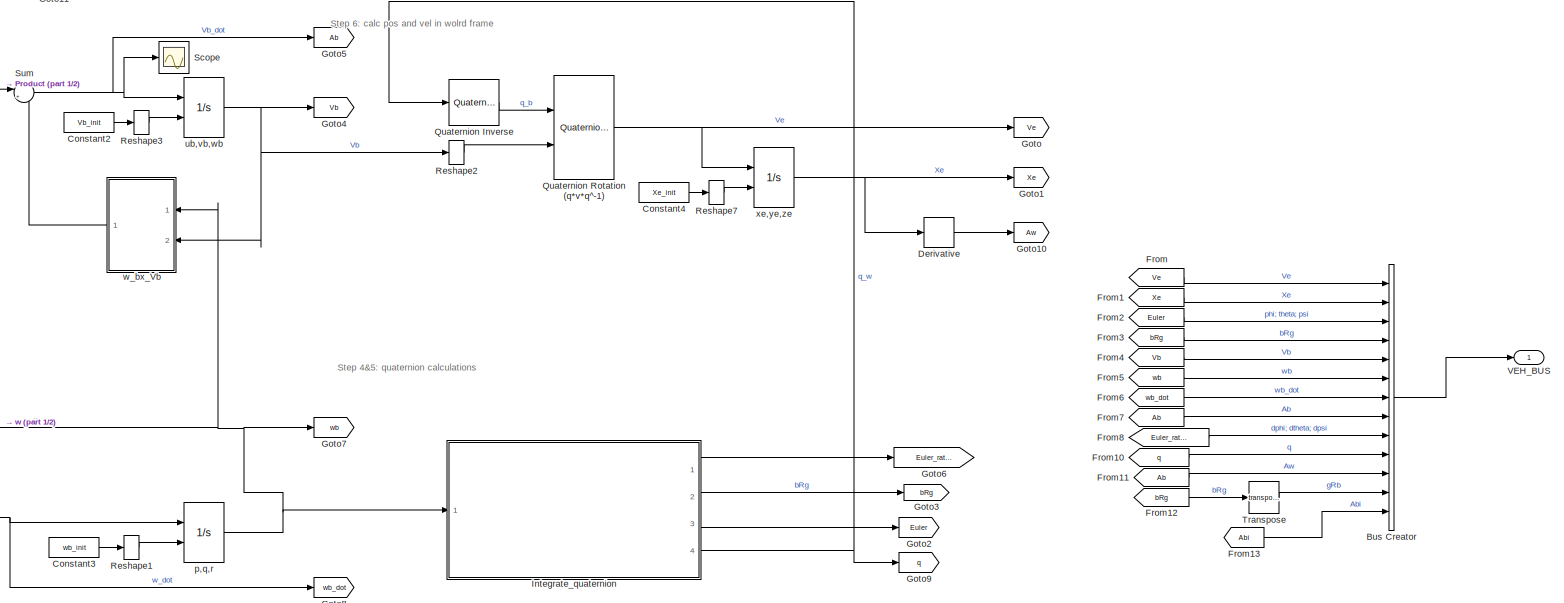
[diagram: Quad_EOM - part 2/2, most of the canvas]
BLOCK [SubSystem] Quad_EOM
  Ports = [4, 1]
  RequestExecContextInheritance = off
BLOCK [BusCreator] Quad_EOM/Bus Creator
  DisplayOption = bar
  InheritFromInputs = on
  Inputs = 13
  Ports = [13, 1]
BLOCK [Constant] Quad_EOM/Constant
  OutDataTypeStr = Inherit: Inherit via back propagation
  Value = m
BLOCK [Constant] Quad_EOM/Constant1
  OutDataTypeStr = Inherit: Inherit via back propagation
  Value = I
BLOCK [Constant] Quad_EOM/Constant2
  OutDataTypeStr = Inherit: Inherit via back propagation
  Value = Vb_init
BLOCK [Constant] Quad_EOM/Constant3
  OutDataTypeStr = Inherit: Inherit via back propagation
  Value = wb_init
BLOCK [Constant] Quad_EOM/Constant4
  OutDataTypeStr = Inherit: Inherit via back propagation
  Value = Xe_init
BLOCK [Constant] Quad_EOM/Constant6
  Value = 0
BLOCK [Derivative] Quad_EOM/Derivative
BLOCK [From] Quad_EOM/From
  GotoTag = Ve
BLOCK [From] Quad_EOM/From1
  GotoTag = Xe
BLOCK [From] Quad_EOM/From10
  GotoTag = q
BLOCK [From] Quad_EOM/From11
  GotoTag = Ab
BLOCK [From] Quad_EOM/From12
  GotoTag = bRg
BLOCK [From] Quad_EOM/From13
  GotoTag = Abi
BLOCK [From] Quad_EOM/From2
  GotoTag = Euler
BLOCK [From] Quad_EOM/From3
  GotoTag = bRg
BLOCK [From] Quad_EOM/From4
  GotoTag = Vb
BLOCK [From] Quad_EOM/From5
  GotoTag = wb
BLOCK [From] Quad_EOM/From6
  GotoTag = wb_dot
BLOCK [From] Quad_EOM/From7
  GotoTag = Ab
BLOCK [From] Quad_EOM/From8
  GotoTag = Euler_rates
BLOCK [From] Quad_EOM/From9
  GotoTag = bRg
BLOCK [Goto] Quad_EOM/Goto
  GotoTag = Ve
BLOCK [Goto] Quad_EOM/Goto1
  GotoTag = Xe
BLOCK [Goto] Quad_EOM/Goto10
  GotoTag = Aw
BLOCK [Goto] Quad_EOM/Goto11
  GotoTag = Abi
BLOCK [Goto] Quad_EOM/Goto2
  GotoTag = Euler
BLOCK [Goto] Quad_EOM/Goto3
  GotoTag = bRg
BLOCK [Goto] Quad_EOM/Goto4
  GotoTag = Vb
BLOCK [Goto] Quad_EOM/Goto5
  GotoTag = Ab
BLOCK [Goto] Quad_EOM/Goto6
  GotoTag = Euler_rates
BLOCK [Goto] Quad_EOM/Goto7
  GotoTag = wb
BLOCK [Goto] Quad_EOM/Goto8
  GotoTag = wb_dot
BLOCK [Goto] Quad_EOM/Goto9
  GotoTag = q
BLOCK [SubSystem] Quad_EOM/Gravity_G_to_B
  Ports = [1, 1]
  RequestExecContextInheritance = off
BLOCK [Outport] Quad_EOM/Gravity_G_to_B/Fb_gravity
  VectorParamsAs1DForOutWhenUnconnected = off
BLOCK [Product] Quad_EOM/Gravity_G_to_B/Product
  Multiplication = Matrix(*)
  Ports = [2, 1]
BLOCK [Product] Quad_EOM/Gravity_G_to_B/Product1
  Ports = [2, 1]
BLOCK [Inport] Quad_EOM/Gravity_G_to_B/bRg
BLOCK [Constant] Quad_EOM/Gravity_G_to_B/gravity vector in inertial frame
  Value = [0;0;g]
  VectorParams1D = off
BLOCK [Constant] Quad_EOM/Gravity_G_to_B/mass
  Value = m
BLOCK [SubSystem] Quad_EOM/Integrate_quaternion
  Ports = [1, 4]
  RequestExecContextInheritance = off
BLOCK [SubSystem] Quad_EOM/Integrate_quaternion/Calc Euler_rates
  Ports = [2, 1]
  RequestExecContextInheritance = off
BLOCK [Demux] Quad_EOM/Integrate_quaternion/Calc Euler_rates/Demux1
  Outputs = 3
  Ports = [1, 3]
BLOCK [Demux] Quad_EOM/Integrate_quaternion/Calc Euler_rates/Demux2
  Outputs = 3
  Ports = [1, 3]
BLOCK [Demux] Quad_EOM/Integrate_quaternion/Calc Euler_rates/Demux3
  Outputs = 3
  Ports = [1, 3]
BLOCK [Inport] Quad_EOM/Integrate_quaternion/Calc Euler_rates/Euler_angs
  Port = 2
BLOCK [Outport] Quad_EOM/Integrate_quaternion/Calc Euler_rates/Euler_rates
BLOCK [Mux] Quad_EOM/Integrate_quaternion/Calc Euler_rates/Mux1
  DisplayOption = bar
  Inputs = 3
  Ports = [3, 1]
BLOCK [Reshape] Quad_EOM/Integrate_quaternion/Calc Euler_rates/Reshape1
  OutputDimensionality = Column vector (2-D)
  Ports = [1, 1]
BLOCK [Reshape] Quad_EOM/Integrate_quaternion/Calc Euler_rates/Reshape2
  OutputDimensionality = Column vector (2-D)
  Ports = [1, 1]
BLOCK [Terminator] Quad_EOM/Integrate_quaternion/Calc Euler_rates/Terminator
  NameLocation = left
BLOCK [SubSystem] Quad_EOM/Integrate_quaternion/Calc Euler_rates/euler_rates
  ErrorFcn = Stateflow.Translate.translate
  PermitHierarchicalResolution = ExplicitOnly
  Ports = [5, 1]
  RequestExecContextInheritance = off
  SFBlockType = MATLAB Function
  TreatAsAtomicUnit = on
BLOCK [Demux] Quad_EOM/Integrate_quaternion/Calc Euler_rates/euler_rates/ Demux 
  Outputs = 1
  Ports = [1, 1]
BLOCK [S-Function] Quad_EOM/Integrate_quaternion/Calc Euler_rates/euler_rates/ SFunction 
  EnableBusSupport = on
  FunctionName = sf_sfun
  PortCounts = [5 2]
  Ports = [5, 2]
  SFcnIsStateOwnerBlock = off
  SFunctionDeploymentMode = off
  Tag = Stateflow S-Function 7
BLOCK [Terminator] Quad_EOM/Integrate_quaternion/Calc Euler_rates/euler_rates/ Terminator 
BLOCK [Outport] Quad_EOM/Integrate_quaternion/Calc Euler_rates/euler_rates/euler_rates
BLOCK [Inport] Quad_EOM/Integrate_quaternion/Calc Euler_rates/euler_rates/p
  Port = 3
BLOCK [Inport] Quad_EOM/Integrate_quaternion/Calc Euler_rates/euler_rates/phi_t
BLOCK [Inport] Quad_EOM/Integrate_quaternion/Calc Euler_rates/euler_rates/q
  Port = 4
BLOCK [Inport] Quad_EOM/Integrate_quaternion/Calc Euler_rates/euler_rates/r
  Port = 5
BLOCK [Inport] Quad_EOM/Integrate_quaternion/Calc Euler_rates/euler_rates/theta_t
  Port = 2
BLOCK [Inport] Quad_EOM/Integrate_quaternion/Calc Euler_rates/p q r 
BLOCK [Constant] Quad_EOM/Integrate_quaternion/Constant5
  OutDataTypeStr = Inherit: Inherit via back propagation
  Value = q_init
BLOCK [Demux] Quad_EOM/Integrate_quaternion/Demux1
  Outputs = 3
  Ports = [1, 3]
BLOCK [Demux] Quad_EOM/Integrate_quaternion/Demux2
  Ports = [1, 4]
BLOCK [Display] Quad_EOM/Integrate_quaternion/Display
  Decimation = 1
  Ports = [1]
BLOCK [DotProduct] Quad_EOM/Integrate_quaternion/Dot Product
  OutDataTypeStr = Inherit: Inherit via internal rule
BLOCK [DotProduct] Quad_EOM/Integrate_quaternion/Dot Product1
  OutDataTypeStr = Inherit: Inherit via internal rule
BLOCK [Scope] Quad_EOM/Integrate_quaternion/EYES_CMD
  Floating = off
  NumInputPorts = 3
  Ports = [3]
  ScopeSpecificationString = Simulink.scopes.TimeScopeBlockCfg('CurrentConfiguration', extmgr.ConfigurationSet(extmgr.Configuration('Core','General UI',true),extmgr.Configuration('Core','Source UI',true),extmgr.Configuration('Sources','WiredSimulink',true,'DataLoggingVariableName','ScopeData1'),extmgr.Configuration('Visuals','Time Domain',true,'SerializedDisplays',{struct('MinYLimReal','-225.00000','MaxYLimReal','225.00000','...<+2791ch>
BLOCK [Scope] Quad_EOM/Integrate_quaternion/EYES_q
  Floating = off
  NumInputPorts = 5
  Ports = [5]
  ScopeSpecificationString = Simulink.scopes.TimeScopeBlockCfg('CurrentConfiguration', extmgr.ConfigurationSet(extmgr.Configuration('Core','General UI',true),extmgr.Configuration('Core','Source UI',true),extmgr.Configuration('Sources','WiredSimulink',true,'DataLoggingVariableName','ScopeData8'),extmgr.Configuration('Visuals','Time Domain',true,'SerializedDisplays',{struct('MinYLimReal','0.94031','MaxYLimReal','1.00663','YLabe...<+6464ch>
BLOCK [Outport] Quad_EOM/Integrate_quaternion/Euler
  Port = 3
BLOCK [Outport] Quad_EOM/Integrate_quaternion/Euler_rates
BLOCK [From] Quad_EOM/Integrate_quaternion/From
  GotoTag = wb
BLOCK [From] Quad_EOM/Integrate_quaternion/From1
  GotoTag = Eul
BLOCK [From] Quad_EOM/Integrate_quaternion/From2
  GotoTag = Eul
BLOCK [From] Quad_EOM/Integrate_quaternion/From3
  GotoTag = q
BLOCK [From] Quad_EOM/Integrate_quaternion/From4
  GotoTag = q
BLOCK [From] Quad_EOM/Integrate_quaternion/From5
  GotoTag = q
BLOCK [From] Quad_EOM/Integrate_quaternion/From6
  GotoTag = q
BLOCK [Goto] Quad_EOM/Integrate_quaternion/Goto
  GotoTag = wb
  NameLocation = top
BLOCK [Goto] Quad_EOM/Integrate_quaternion/Goto1
  GotoTag = Eul
  NameLocation = top
BLOCK [Goto] Quad_EOM/Integrate_quaternion/Goto3
  GotoTag = bRg
BLOCK [Goto] Quad_EOM/Integrate_quaternion/Goto4
  GotoTag = q
BLOCK [Integrator] Quad_EOM/Integrate_quaternion/Integrator1
  InitialConditionSource = external
  Ports = [2, 1]
BLOCK [SubSystem] Quad_EOM/Integrate_quaternion/MATLAB Function2
  ErrorFcn = Stateflow.Translate.translate
  PermitHierarchicalResolution = ExplicitOnly
  Ports = [1, 3]
  RequestExecContextInheritance = off
  SFBlockType = MATLAB Function
  TreatAsAtomicUnit = on
BLOCK [Demux] Quad_EOM/Integrate_quaternion/MATLAB Function2/ Demux 
  Outputs = 1
  Ports = [1, 1]
BLOCK [S-Function] Quad_EOM/Integrate_quaternion/MATLAB Function2/ SFunction 
  EnableBusSupport = on
  FunctionName = sf_sfun
  PortCounts = [1 4]
  Ports = [1, 4]
  SFcnIsStateOwnerBlock = off
  SFunctionDeploymentMode = off
  Tag = Stateflow S-Function 10
BLOCK [Terminator] Quad_EOM/Integrate_quaternion/MATLAB Function2/ Terminator 
BLOCK [Inport] Quad_EOM/Integrate_quaternion/MATLAB Function2/R
BLOCK [Outport] Quad_EOM/Integrate_quaternion/MATLAB Function2/phi
BLOCK [Outport] Quad_EOM/Integrate_quaternion/MATLAB Function2/psi
  Port = 3
BLOCK [Outport] Quad_EOM/Integrate_quaternion/MATLAB Function2/theta
  Port = 2
BLOCK [Mux] Quad_EOM/Integrate_quaternion/Mux
  DisplayOption = bar
  Inputs = 3
  Ports = [3, 1]
BLOCK [SubSystem] Quad_EOM/Integrate_quaternion/NORMLIZE_occasionally
  Commented = on
  Ports = [1, 1]
  RequestExecContextInheritance = off
BLOCK [SubSystem] Quad_EOM/Integrate_quaternion/NORMLIZE_occasionally/Adjust_to_UNITY
  Ports = [1, 1]
  RequestExecContextInheritance = off
BLOCK [DataTypeConversion] Quad_EOM/Integrate_quaternion/NORMLIZE_occasionally/Adjust_to_UNITY/Data Type Conversion
  OutDataTypeStr = double
  RndMeth = Floor
  SaturateOnIntegerOverflow = off
BLOCK [Reference] Quad_EOM/Integrate_quaternion/NORMLIZE_occasionally/Adjust_to_UNITY/Detect Increase  REF=simulink/Logic and Bit
Operations/Detect
Increase
  Ports = [1, 1]
  SourceBlock = simulink/Logic and Bit\nOperations/Detect\nIncrease
  SourceProductBaseCode = SL
  SourceType = Detect Increase
BLOCK [SubSystem] Quad_EOM/Integrate_quaternion/NORMLIZE_occasionally/Adjust_to_UNITY/MATLAB Function
  ErrorFcn = Stateflow.Translate.translate
  PermitHierarchicalResolution = ExplicitOnly
  Ports = [2, 2]
  RequestExecContextInheritance = off
  SFBlockType = MATLAB Function
  TreatAsAtomicUnit = on
BLOCK [Demux] Quad_EOM/Integrate_quaternion/NORMLIZE_occasionally/Adjust_to_UNITY/MATLAB Function/ Demux 
  Outputs = 1
  Ports = [1, 1]
BLOCK [S-Function] Quad_EOM/Integrate_quaternion/NORMLIZE_occasionally/Adjust_to_UNITY/MATLAB Function/ SFunction 
  EnableBusSupport = on
  FunctionName = sf_sfun
  PortCounts = [2 3]
  Ports = [2, 3]
  SFcnIsStateOwnerBlock = off
  SFunctionDeploymentMode = off
  Tag = Stateflow S-Function 1
BLOCK [Terminator] Quad_EOM/Integrate_quaternion/NORMLIZE_occasionally/Adjust_to_UNITY/MATLAB Function/ Terminator 
BLOCK [Inport] Quad_EOM/Integrate_quaternion/NORMLIZE_occasionally/Adjust_to_UNITY/MATLAB Function/change_signal
BLOCK [Outport] Quad_EOM/Integrate_quaternion/NORMLIZE_occasionally/Adjust_to_UNITY/MATLAB Function/mag_of_q
  Port = 2
BLOCK [Outport] Quad_EOM/Integrate_quaternion/NORMLIZE_occasionally/Adjust_to_UNITY/MATLAB Function/q
BLOCK [Inport] Quad_EOM/Integrate_quaternion/NORMLIZE_occasionally/Adjust_to_UNITY/MATLAB Function/q_in
  Port = 2
BLOCK [DiscretePulseGenerator] Quad_EOM/Integrate_quaternion/NORMLIZE_occasionally/Adjust_to_UNITY/Pulse Generator
  NameLocation = top
  Period = 10
  Ports = [0, 1]
  PulseType = Time based
  PulseWidth = 50
BLOCK [Scope] Quad_EOM/Integrate_quaternion/NORMLIZE_occasionally/Adjust_to_UNITY/Scope
  Floating = off
  NumInputPorts = 1
  Ports = [1]
  ScopeSpecificationString = Simulink.scopes.TimeScopeBlockCfg('CurrentConfiguration', extmgr.ConfigurationSet(extmgr.Configuration('Core','General UI',true),extmgr.Configuration('Core','Source UI',true),extmgr.Configuration('Sources','WiredSimulink',true,'DataLoggingVariableName','ScopeData3'),extmgr.Configuration('Visuals','Time Domain',true,'SerializedDisplays',{struct('MinYLimReal','-1.00000','MaxYLimReal','1.00000','YLab...<+1481ch>
BLOCK [Outport] Quad_EOM/Integrate_quaternion/NORMLIZE_occasionally/Adjust_to_UNITY/q_unit
BLOCK [Inport] Quad_EOM/Integrate_quaternion/NORMLIZE_occasionally/Adjust_to_UNITY/qin
BLOCK [Inport] Quad_EOM/Integrate_quaternion/NORMLIZE_occasionally/In1
BLOCK [Outport] Quad_EOM/Integrate_quaternion/NORMLIZE_occasionally/Out1
BLOCK [Reference] Quad_EOM/Integrate_quaternion/Quaternion Normalize  REF=sharedutil/Quaternion
Normalize
  Ports = [1, 1]
  SourceBlock = sharedutil/Quaternion\nNormalize
  SourceProductBaseCode = AE,PW,DR,MT,UV,VE
  SourceType = Quaternion Normalize
BLOCK [Reference] Quad_EOM/Integrate_quaternion/Quaternions to Direction Cosine Matrix  REF=sharedtransform/Quaternions to 
Direction Cosine Matrix
  Commented = on
  Ports = [1, 1]
  SourceBlock = sharedtransform/Quaternions to \nDirection Cosine Matrix
  SourceProductBaseCode = AE,PW,DR,MT,UV,VE
  SourceType = Quaternion2DCM
BLOCK [Reference] Quad_EOM/Integrate_quaternion/Radians to Degrees  REF=simulink_extras/Transformations/Radians
to Degrees
  Ports = [1, 1]
  SourceBlock = simulink_extras/Transformations/Radians\nto Degrees
  SourceProductBaseCode = SL
  SourceType = RadiansToDegrees
BLOCK [Reference] Quad_EOM/Integrate_quaternion/Radians to Degrees1  REF=simulink_extras/Transformations/Radians
to Degrees
  Ports = [1, 1]
  SourceBlock = simulink_extras/Transformations/Radians\nto Degrees
  SourceProductBaseCode = SL
  SourceType = RadiansToDegrees
BLOCK [Reference] Quad_EOM/Integrate_quaternion/Radians to Degrees2  REF=simulink_extras/Transformations/Radians
to Degrees
  Ports = [1, 1]
  SourceBlock = simulink_extras/Transformations/Radians\nto Degrees
  SourceProductBaseCode = SL
  SourceType = RadiansToDegrees
BLOCK [Reshape] Quad_EOM/Integrate_quaternion/Reshape1
  OutputDimensionality = Column vector (2-D)
  Ports = [1, 1]
BLOCK [Reshape] Quad_EOM/Integrate_quaternion/Reshape3
  OutputDimensionality = Column vector (2-D)
  Ports = [1, 1]
BLOCK [Outport] Quad_EOM/Integrate_quaternion/bRg
  Port = 2
BLOCK [SubSystem] Quad_EOM/Integrate_quaternion/calc_bRg
  ErrorFcn = Stateflow.Translate.translate
  PermitHierarchicalResolution = ExplicitOnly
  Ports = [1, 1]
  RequestExecContextInheritance = off
  SFBlockType = MATLAB Function
  TreatAsAtomicUnit = on
BLOCK [Demux] Quad_EOM/Integrate_quaternion/calc_bRg/ Demux 
  Outputs = 1
  Ports = [1, 1]
BLOCK [S-Function] Quad_EOM/Integrate_quaternion/calc_bRg/ SFunction 
  EnableBusSupport = on
  FunctionName = sf_sfun
  PortCounts = [1 2]
  Ports = [1, 2]
  SFcnIsStateOwnerBlock = off
  SFunctionDeploymentMode = off
  Tag = Stateflow S-Function 13
BLOCK [Terminator] Quad_EOM/Integrate_quaternion/calc_bRg/ Terminator 
BLOCK [Outport] Quad_EOM/Integrate_quaternion/calc_bRg/bRg
BLOCK [Inport] Quad_EOM/Integrate_quaternion/calc_bRg/q
BLOCK [SubSystem] Quad_EOM/Integrate_quaternion/calc_q_DOT
  ErrorFcn = Stateflow.Translate.translate
  PermitHierarchicalResolution = ExplicitOnly
  Ports = [2, 1]
  RequestExecContextInheritance = off
  SFBlockType = MATLAB Function
  TreatAsAtomicUnit = on
BLOCK [Demux] Quad_EOM/Integrate_quaternion/calc_q_DOT/ Demux 
  Outputs = 1
  Ports = [1, 1]
BLOCK [S-Function] Quad_EOM/Integrate_quaternion/calc_q_DOT/ SFunction 
  EnableBusSupport = on
  FunctionName = sf_sfun
  PortCounts = [2 2]
  Ports = [2, 2]
  SFcnIsStateOwnerBlock = off
  SFunctionDeploymentMode = off
  Tag = Stateflow S-Function 14
BLOCK [Terminator] Quad_EOM/Integrate_quaternion/calc_q_DOT/ Terminator 
BLOCK [Inport] Quad_EOM/Integrate_quaternion/calc_q_DOT/q
BLOCK [Outport] Quad_EOM/Integrate_quaternion/calc_q_DOT/q_dot
BLOCK [Inport] Quad_EOM/Integrate_quaternion/calc_q_DOT/wb
  Port = 2
BLOCK [Outport] Quad_EOM/Integrate_quaternion/q
  Port = 4
BLOCK [Inport] Quad_EOM/Integrate_quaternion/wb
BLOCK [Inport] Quad_EOM/Moment_x
  Port = 2
BLOCK [Inport] Quad_EOM/Moment_y
  Port = 3
BLOCK [Inport] Quad_EOM/Moment_z
  Port = 4
BLOCK [Mux] Quad_EOM/Mux
  DisplayOption = bar
  Inputs = 3
  Ports = [3, 1]
BLOCK [Mux] Quad_EOM/Mux1
  DisplayOption = bar
  Inputs = 3
  Ports = [3, 1]
BLOCK [Product] Quad_EOM/Product
  Inputs = */
  OutDataTypeStr = Inherit: Same as first input
  Ports = [2, 1]
  SaturateOnIntegerOverflow = on
BLOCK [Reference] Quad_EOM/Quaternion Inverse  REF=aerolibutil/Quaternion
Inverse
  Ports = [1, 1]
  SourceBlock = aerolibutil/Quaternion\nInverse
  SourceProductBaseCode = AE
  SourceType = Quaternion Inverse
BLOCK [Reference] Quad_EOM/Quaternion Rotation (q*v*q^-1)  REF=aerolibutil/Quaternion
Rotation
  Ports = [2, 1]
  SourceBlock = aerolibutil/Quaternion\nRotation
  SourceProductBaseCode = AE
  SourceType = Quaternion Rotation
BLOCK [Reshape] Quad_EOM/Reshape
  OutputDimensionality = Column vector (2-D)
  Ports = [1, 1]
BLOCK [Reshape] Quad_EOM/Reshape1
  OutputDimensionality = Column vector (2-D)
  Ports = [1, 1]
BLOCK [Reshape] Quad_EOM/Reshape2
  OutputDimensionality = Column vector (2-D)
  Ports = [1, 1]
BLOCK [Reshape] Quad_EOM/Reshape3
  OutputDimensionality = Column vector (2-D)
  Ports = [1, 1]
BLOCK [Reshape] Quad_EOM/Reshape5
  OutputDimensionality = Column vector (2-D)
  Ports = [1, 1]
BLOCK [Reshape] Quad_EOM/Reshape6
  OutputDimensionality = Column vector (2-D)
  Ports = [1, 1]
BLOCK [Reshape] Quad_EOM/Reshape7
  OutputDimensionality = Column vector (2-D)
  Ports = [1, 1]
BLOCK [Reshape] Quad_EOM/Reshape8
  OutputDimensionality = Column vector (2-D)
  Ports = [1, 1]
BLOCK [Scope] Quad_EOM/Scope
  Floating = off
  NumInputPorts = 1
  Ports = [1]
  ScopeSpecificationString = Simulink.scopes.TimeScopeBlockCfg('CurrentConfiguration', extmgr.ConfigurationSet(extmgr.Configuration('Core','General UI',true),extmgr.Configuration('Core','Source UI',true),extmgr.Configuration('Sources','WiredSimulink',true,'DataLoggingVariableName','ScopeData5'),extmgr.Configuration('Visuals','Time Domain',true,'SerializedDisplays',{struct('MinYLimReal','-5.81141','MaxYLimReal','5.74393','YLab...<+1493ch>
BLOCK [Scope] Quad_EOM/Scope1
  Floating = off
  NumInputPorts = 1
  Ports = [1]
  ScopeSpecificationString = Simulink.scopes.TimeScopeBlockCfg('CurrentConfiguration', extmgr.ConfigurationSet(extmgr.Configuration('Core','General UI',true),extmgr.Configuration('Core','Source UI',true),extmgr.Configuration('Sources','WiredSimulink',true,'DataLoggingVariableName','ScopeData3'),extmgr.Configuration('Visuals','Time Domain',true,'SerializedDisplays',{struct('MinYLimReal','-5.49213','MaxYLimReal','5.49662','YLab...<+1494ch>
BLOCK [SubSystem] Quad_EOM/Subsystem
  Ports = [3, 1]
  RequestExecContextInheritance = off
BLOCK [From] Quad_EOM/Subsystem/From10
  GotoTag = I
BLOCK [From] Quad_EOM/Subsystem/From9
  GotoTag = I
BLOCK [Goto] Quad_EOM/Subsystem/Goto9
  GotoTag = I
BLOCK [Inport] Quad_EOM/Subsystem/I
  Port = 2
BLOCK [Inport] Quad_EOM/Subsystem/Moment
  Port = 3
BLOCK [Product] Quad_EOM/Subsystem/Product2
  InputSameDT = on
  Multiplication = Matrix(*)
  OutDataTypeStr = Inherit: Same as first input
  Ports = [2, 1]
  SaturateOnIntegerOverflow = on
BLOCK [Product] Quad_EOM/Subsystem/Product3
  Inputs = /
  Multiplication = Matrix(*)
  NameLocation = top
  OutDataTypeStr = Inherit: Same as first input
  Ports = [1, 1]
  SaturateOnIntegerOverflow = on
BLOCK [Product] Quad_EOM/Subsystem/Product4
  Multiplication = Matrix(*)
  NameLocation = top
  OutDataTypeStr = Inherit: Same as first input
  Ports = [2, 1]
  SaturateOnIntegerOverflow = on
BLOCK [Reshape] Quad_EOM/Subsystem/Reshape10
  OutputDimensionality = Column vector (2-D)
  Ports = [1, 1]
BLOCK [Reshape] Quad_EOM/Subsystem/Reshape8
  OutputDimensionality = Column vector (2-D)
  Ports = [1, 1]
BLOCK [Reshape] Quad_EOM/Subsystem/Reshape9
  OutputDimensionality = Column vector (2-D)
  Ports = [1, 1]
BLOCK [Scope] Quad_EOM/Subsystem/Scope
  Floating = off
  NumInputPorts = 1
  Ports = [1]
  ScopeSpecificationString = Simulink.scopes.TimeScopeBlockCfg('CurrentConfiguration', extmgr.ConfigurationSet(extmgr.Configuration('Core','General UI',true),extmgr.Configuration('Core','Source UI',true),extmgr.Configuration('Sources','WiredSimulink',true,'DataLoggingVariableName','ScopeData2'),extmgr.Configuration('Visuals','Time Domain',true,'SerializedDisplays',{struct('MinYLimReal','-2.5809','MaxYLimReal','2.44453','YLabe...<+1370ch>
BLOCK [Scope] Quad_EOM/Subsystem/Scope1
  Floating = off
  NumInputPorts = 1
  Ports = [1]
  ScopeSpecificationString = Simulink.scopes.TimeScopeBlockCfg('CurrentConfiguration', extmgr.ConfigurationSet(extmgr.Configuration('Core','General UI',true),extmgr.Configuration('Core','Source UI',true),extmgr.Configuration('Sources','WiredSimulink',true,'DataLoggingVariableName','ScopeData3'),extmgr.Configuration('Visuals','Time Domain',true,'SerializedDisplays',{struct('MinYLimReal','-0.01846','MaxYLimReal','0.01744','YLab...<+1380ch>
BLOCK [Scope] Quad_EOM/Subsystem/Scope2
  Floating = off
  NumInputPorts = 1
  Ports = [1]
  ScopeSpecificationString = Simulink.scopes.TimeScopeBlockCfg('CurrentConfiguration', extmgr.ConfigurationSet(extmgr.Configuration('Core','General UI',true),extmgr.Configuration('Core','Source UI',true),extmgr.Configuration('Sources','WiredSimulink',true,'DataLoggingVariableName','ScopeData4'),extmgr.Configuration('Visuals','Time Domain',true,'SerializedDisplays',{struct('MinYLimReal','-1.99998','MaxYLimReal','2.00009','YLab...<+1419ch>
BLOCK [Sum] Quad_EOM/Subsystem/Sum2
  Inputs = +|-
  Ports = [2, 1]
  SaturateOnIntegerOverflow = on
BLOCK [Outport] Quad_EOM/Subsystem/pdot qdot rdot
BLOCK [Inport] Quad_EOM/Subsystem/pqr
BLOCK [SubSystem] Quad_EOM/Subsystem/w_x_(I.w)
  Ports = [2, 1]
  RequestExecContextInheritance = off
BLOCK [Inport] Quad_EOM/Subsystem/w_x_(I.w)/A
BLOCK [Inport] Quad_EOM/Subsystem/w_x_(I.w)/B
  Port = 2
BLOCK [Outport] Quad_EOM/Subsystem/w_x_(I.w)/C
BLOCK [From] Quad_EOM/Subsystem/w_x_(I.w)/From
BLOCK [From] Quad_EOM/Subsystem/w_x_(I.w)/From1
  GotoTag = B
BLOCK [From] Quad_EOM/Subsystem/w_x_(I.w)/From10
BLOCK [From] Quad_EOM/Subsystem/w_x_(I.w)/From11
  GotoTag = B
BLOCK [From] Quad_EOM/Subsystem/w_x_(I.w)/From2
BLOCK [From] Quad_EOM/Subsystem/w_x_(I.w)/From3
  GotoTag = B
BLOCK [From] Quad_EOM/Subsystem/w_x_(I.w)/From4
BLOCK [From] Quad_EOM/Subsystem/w_x_(I.w)/From5
  GotoTag = B
BLOCK [From] Quad_EOM/Subsystem/w_x_(I.w)/From6
BLOCK [From] Quad_EOM/Subsystem/w_x_(I.w)/From7
  GotoTag = B
BLOCK [From] Quad_EOM/Subsystem/w_x_(I.w)/From8
BLOCK [From] Quad_EOM/Subsystem/w_x_(I.w)/From9
  GotoTag = B
BLOCK [Goto] Quad_EOM/Subsystem/w_x_(I.w)/Goto
BLOCK [Goto] Quad_EOM/Subsystem/w_x_(I.w)/Goto1
  GotoTag = B
BLOCK [Mux] Quad_EOM/Subsystem/w_x_(I.w)/Mux
  DisplayOption = bar
  Inputs = 3
  Ports = [3, 1]
BLOCK [Mux] Quad_EOM/Subsystem/w_x_(I.w)/Mux1
  DisplayOption = bar
  Inputs = 3
  Ports = [3, 1]
BLOCK [Selector] Quad_EOM/Subsystem/w_x_(I.w)/Selector
  IndexOptions = Index vector (dialog)
  Indices = 1
  InputPortWidth = 3
  OutputSizes = 1
  Ports = [1, 1]
BLOCK [Selector] Quad_EOM/Subsystem/w_x_(I.w)/Selector1
  IndexOptions = Index vector (dialog)
  Indices = 2
  InputPortWidth = 3
  OutputSizes = 1
  Ports = [1, 1]
BLOCK [Selector] Quad_EOM/Subsystem/w_x_(I.w)/Selector10
  IndexOptions = Index vector (dialog)
  Indices = 3
  InputPortWidth = 3
  OutputSizes = 1
  Ports = [1, 1]
BLOCK [Selector] Quad_EOM/Subsystem/w_x_(I.w)/Selector11
  IndexOptions = Index vector (dialog)
  Indices = 3
  InputPortWidth = 3
  OutputSizes = 1
  Ports = [1, 1]
BLOCK [Selector] Quad_EOM/Subsystem/w_x_(I.w)/Selector12
  IndexOptions = Index vector (dialog)
  Indices = 2
  InputPortWidth = 3
  OutputSizes = 1
  Ports = [1, 1]
BLOCK [Selector] Quad_EOM/Subsystem/w_x_(I.w)/Selector13
  IndexOptions = Index vector (dialog)
  Indices = 1
  InputPortWidth = 3
  OutputSizes = 1
  Ports = [1, 1]
BLOCK [Selector] Quad_EOM/Subsystem/w_x_(I.w)/Selector14
  IndexOptions = Index vector (dialog)
  Indices = 2
  InputPortWidth = 3
  OutputSizes = 1
  Ports = [1, 1]
BLOCK [Selector] Quad_EOM/Subsystem/w_x_(I.w)/Selector15
  IndexOptions = Index vector (dialog)
  Indices = 1
  InputPortWidth = 3
  OutputSizes = 1
  Ports = [1, 1]
BLOCK [Selector] Quad_EOM/Subsystem/w_x_(I.w)/Selector2
  IndexOptions = Index vector (dialog)
  Indices = 3
  InputPortWidth = 3
  OutputSizes = 1
  Ports = [1, 1]
BLOCK [Selector] Quad_EOM/Subsystem/w_x_(I.w)/Selector6
  IndexOptions = Index vector (dialog)
  Indices = 3
  InputPortWidth = 3
  OutputSizes = 1
  Ports = [1, 1]
BLOCK [Selector] Quad_EOM/Subsystem/w_x_(I.w)/Selector8
  IndexOptions = Index vector (dialog)
  Indices = 1
  InputPortWidth = 3
  OutputSizes = 1
  Ports = [1, 1]
BLOCK [Selector] Quad_EOM/Subsystem/w_x_(I.w)/Selector9
  IndexOptions = Index vector (dialog)
  Indices = 2
  InputPortWidth = 3
  OutputSizes = 1
  Ports = [1, 1]
BLOCK [Sum] Quad_EOM/Subsystem/w_x_(I.w)/Sum1
  InputSameDT = on
  Inputs = +|-
  OutDataTypeStr = Inherit: Same as first input
  Ports = [2, 1]
  SaturateOnIntegerOverflow = on
BLOCK [Product] Quad_EOM/Subsystem/w_x_(I.w)/i x j
  InputSameDT = on
  OutDataTypeStr = Inherit: Same as first input
  Ports = [2, 1]
  SaturateOnIntegerOverflow = on
BLOCK [Product] Quad_EOM/Subsystem/w_x_(I.w)/i x j1
  InputSameDT = on
  OutDataTypeStr = Inherit: Same as first input
  Ports = [2, 1]
  SaturateOnIntegerOverflow = on
BLOCK [Product] Quad_EOM/Subsystem/w_x_(I.w)/j x k
  InputSameDT = on
  NameLocation = top
  OutDataTypeStr = Inherit: Same as first input
  Ports = [2, 1]
  SaturateOnIntegerOverflow = on
BLOCK [Product] Quad_EOM/Subsystem/w_x_(I.w)/j x k1
  InputSameDT = on
  NameLocation = top
  OutDataTypeStr = Inherit: Same as first input
  Ports = [2, 1]
  SaturateOnIntegerOverflow = on
BLOCK [Product] Quad_EOM/Subsystem/w_x_(I.w)/k x i
  InputSameDT = on
  OutDataTypeStr = Inherit: Same as first input
  Ports = [2, 1]
  SaturateOnIntegerOverflow = on
BLOCK [Product] Quad_EOM/Subsystem/w_x_(I.w)/k x i1
  InputSameDT = on
  OutDataTypeStr = Inherit: Same as first input
  Ports = [2, 1]
  SaturateOnIntegerOverflow = on
BLOCK [Sum] Quad_EOM/Sum
  Inputs = |+-
  Ports = [2, 1]
  SaturateOnIntegerOverflow = on
BLOCK [Sum] Quad_EOM/Sum1
  Inputs = ++|
  Ports = [2, 1]
BLOCK [Inport] Quad_EOM/Thrust
BLOCK [Math] Quad_EOM/Transpose
  Operator = transpose
  Ports = [1, 1]
BLOCK [Outport] Quad_EOM/VEH_BUS
  VectorParamsAs1DForOutWhenUnconnected = off
BLOCK [Integrator] Quad_EOM/p,q,r 
  InitialCondition = pm_0
  InitialConditionSource = external
  NameLocation = top
  Ports = [2, 1]
BLOCK [Integrator] Quad_EOM/ub,vb,wb
  InitialCondition = Vm_0
  InitialConditionSource = external
  Ports = [2, 1]
BLOCK [SubSystem] Quad_EOM/w_bx_Vb
  NameLocation = top
  Ports = [2, 1]
  RequestExecContextInheritance = off
BLOCK [Inport] Quad_EOM/w_bx_Vb/A
BLOCK [Inport] Quad_EOM/w_bx_Vb/B
  Port = 2
BLOCK [Outport] Quad_EOM/w_bx_Vb/C
BLOCK [From] Quad_EOM/w_bx_Vb/From
BLOCK [From] Quad_EOM/w_bx_Vb/From1
  GotoTag = B
BLOCK [From] Quad_EOM/w_bx_Vb/From10
BLOCK [From] Quad_EOM/w_bx_Vb/From11
  GotoTag = B
BLOCK [From] Quad_EOM/w_bx_Vb/From2
BLOCK [From] Quad_EOM/w_bx_Vb/From3
  GotoTag = B
BLOCK [From] Quad_EOM/w_bx_Vb/From4
BLOCK [From] Quad_EOM/w_bx_Vb/From5
  GotoTag = B
BLOCK [From] Quad_EOM/w_bx_Vb/From6
BLOCK [From] Quad_EOM/w_bx_Vb/From7
  GotoTag = B
BLOCK [From] Quad_EOM/w_bx_Vb/From8
BLOCK [From] Quad_EOM/w_bx_Vb/From9
  GotoTag = B
BLOCK [Goto] Quad_EOM/w_bx_Vb/Goto
BLOCK [Goto] Quad_EOM/w_bx_Vb/Goto1
  GotoTag = B
BLOCK [Mux] Quad_EOM/w_bx_Vb/Mux
  DisplayOption = bar
  Inputs = 3
  Ports = [3, 1]
BLOCK [Mux] Quad_EOM/w_bx_Vb/Mux1
  DisplayOption = bar
  Inputs = 3
  Ports = [3, 1]
BLOCK [Selector] Quad_EOM/w_bx_Vb/Selector
  IndexOptions = Index vector (dialog)
  Indices = 1
  InputPortWidth = 3
  OutputSizes = 1
  Ports = [1, 1]
BLOCK [Selector] Quad_EOM/w_bx_Vb/Selector1
  IndexOptions = Index vector (dialog)
  Indices = 2
  InputPortWidth = 3
  OutputSizes = 1
  Ports = [1, 1]
BLOCK [Selector] Quad_EOM/w_bx_Vb/Selector10
  IndexOptions = Index vector (dialog)
  Indices = 3
  InputPortWidth = 3
  OutputSizes = 1
  Ports = [1, 1]
BLOCK [Selector] Quad_EOM/w_bx_Vb/Selector11
  IndexOptions = Index vector (dialog)
  Indices = 3
  InputPortWidth = 3
  OutputSizes = 1
  Ports = [1, 1]
BLOCK [Selector] Quad_EOM/w_bx_Vb/Selector12
  IndexOptions = Index vector (dialog)
  Indices = 2
  InputPortWidth = 3
  OutputSizes = 1
  Ports = [1, 1]
BLOCK [Selector] Quad_EOM/w_bx_Vb/Selector13
  IndexOptions = Index vector (dialog)
  Indices = 1
  InputPortWidth = 3
  OutputSizes = 1
  Ports = [1, 1]
BLOCK [Selector] Quad_EOM/w_bx_Vb/Selector14
  IndexOptions = Index vector (dialog)
  Indices = 2
  InputPortWidth = 3
  OutputSizes = 1
  Ports = [1, 1]
BLOCK [Selector] Quad_EOM/w_bx_Vb/Selector15
  IndexOptions = Index vector (dialog)
  Indices = 1
  InputPortWidth = 3
  OutputSizes = 1
  Ports = [1, 1]
BLOCK [Selector] Quad_EOM/w_bx_Vb/Selector2
  IndexOptions = Index vector (dialog)
  Indices = 3
  InputPortWidth = 3
  OutputSizes = 1
  Ports = [1, 1]
BLOCK [Selector] Quad_EOM/w_bx_Vb/Selector6
  IndexOptions = Index vector (dialog)
  Indices = 3
  InputPortWidth = 3
  OutputSizes = 1
  Ports = [1, 1]
BLOCK [Selector] Quad_EOM/w_bx_Vb/Selector8
  IndexOptions = Index vector (dialog)
  Indices = 1
  InputPortWidth = 3
  OutputSizes = 1
  Ports = [1, 1]
BLOCK [Selector] Quad_EOM/w_bx_Vb/Selector9
  IndexOptions = Index vector (dialog)
  Indices = 2
  InputPortWidth = 3
  OutputSizes = 1
  Ports = [1, 1]
BLOCK [Sum] Quad_EOM/w_bx_Vb/Sum1
  InputSameDT = on
  Inputs = +|-
  OutDataTypeStr = Inherit: Same as first input
  Ports = [2, 1]
  SaturateOnIntegerOverflow = on
BLOCK [Product] Quad_EOM/w_bx_Vb/i x j
  InputSameDT = on
  OutDataTypeStr = Inherit: Same as first input
  Ports = [2, 1]
  SaturateOnIntegerOverflow = on
BLOCK [Product] Quad_EOM/w_bx_Vb/i x j1
  InputSameDT = on
  OutDataTypeStr = Inherit: Same as first input
  Ports = [2, 1]
  SaturateOnIntegerOverflow = on
BLOCK [Product] Quad_EOM/w_bx_Vb/j x k
  InputSameDT = on
  NameLocation = top
  OutDataTypeStr = Inherit: Same as first input
  Ports = [2, 1]
  SaturateOnIntegerOverflow = on
BLOCK [Product] Quad_EOM/w_bx_Vb/j x k1
  InputSameDT = on
  NameLocation = top
  OutDataTypeStr = Inherit: Same as first input
  Ports = [2, 1]
  SaturateOnIntegerOverflow = on
BLOCK [Product] Quad_EOM/w_bx_Vb/k x i
  InputSameDT = on
  OutDataTypeStr = Inherit: Same as first input
  Ports = [2, 1]
  SaturateOnIntegerOverflow = on
BLOCK [Product] Quad_EOM/w_bx_Vb/k x i1
  InputSameDT = on
  OutDataTypeStr = Inherit: Same as first input
  Ports = [2, 1]
  SaturateOnIntegerOverflow = on
BLOCK [Integrator] Quad_EOM/xe,ye,ze
  InitialCondition = xme_0
  InitialConditionSource = external
  Ports = [2, 1]
BLOCK [SubSystem] Rate controller
  PortSchema = {"entries":[{"content":{"sides":[{"content":{"connectorIds":["In1"]},"type":"ConnectorPlacement.EquallySpacedRectSide","uuid":"0af60e35-7b10-4750-a6af-1a3d920b4771"},{"content":{"connectorIds":["Out1","Out2","Out3"],"side":"RIGHT"},"type":"ConnectorPlacement.EquallySpacedRectSide","uuid":"931b0f34-b3f1-4a41-949f-3d763eca3151"},{"content":{"connectorIds":["In2"],"side":"TOP"},"type":"ConnectorPlace...<+259ch>
  Ports = [2, 3]
  RequestExecContextInheritance = off
BLOCK [BusSelector] Rate controller/Bus Selector1
  OutputSignals = wb,wb_dot
  Ports = [1, 2]
BLOCK [Demux] Rate controller/Demux
  Outputs = 3
  Ports = [1, 3]
BLOCK [Gain] Rate controller/Kd_rates
  Gain = Kd_rates
BLOCK [Gain] Rate controller/Kp_rates
  Gain = Kp_rates
BLOCK [Inport] Rate controller/SUB_BUS
  Port = 2
BLOCK [Scope] Rate controller/Scope
  Floating = off
  NameLocation = right
  NumInputPorts = 2
  Ports = [2]
  ScopeSpecificationString = Simulink.scopes.TimeScopeBlockCfg('CurrentConfiguration', extmgr.ConfigurationSet(extmgr.Configuration('Core','General UI',true),extmgr.Configuration('Core','Source UI',true),extmgr.Configuration('Sources','WiredSimulink',true,'DataLoggingVariableName','ScopeData1'),extmgr.Configuration('Visuals','Time Domain',true,'SerializedDisplays',{struct('MinYLimReal','-6.53431','MaxYLimReal','6.41166','YLab...<+1612ch>
BLOCK [Sum] Rate controller/Sum
  Inputs = |+-
  Ports = [2, 1]
BLOCK [Sum] Rate controller/Sum1
  Inputs = |+-
  Ports = [2, 1]
BLOCK [Saturate] Rate controller/limit rate p
  LowerLimit = -rate_p_max
  UpperLimit = rate_p_max
BLOCK [Saturate] Rate controller/limit rate q
  LowerLimit = -rate_p_max
  UpperLimit = rate_p_max
BLOCK [Saturate] Rate controller/limit rate r
  LowerLimit = -rate_p_max
  UpperLimit = rate_p_max
BLOCK [Inport] Rate controller/rates_d
BLOCK [Outport] Rate controller/torque_x_cmd
BLOCK [Outport] Rate controller/torque_y_cmd
  Port = 2
BLOCK [Outport] Rate controller/torque_z_cmd
  Port = 3
BLOCK [SubSystem] Sensors and preprocessing
  Ports = [1, 1]
  RequestExecContextInheritance = off
BLOCK [BusCreator] Sensors and preprocessing/Bus Creator4
  DisplayOption = bar
  InheritFromInputs = on
  Inputs = 5
  Ports = [5, 1]
BLOCK [SubSystem] Sensors and preprocessing/IMU+altitude
  Ports = [1, 4]
  RequestExecContextInheritance = off
BLOCK [SubSystem] Sensors and preprocessing/IMU+altitude/Acc + Gyro
  AncestorBlock = aerolibnav/Three-axis Inertial\nMeasurement Unit
  PermitHierarchicalResolution = ExplicitOnly
  Ports = [5, 2]
  RequestExecContextInheritance = off
BLOCK [Inport] Sensors and preprocessing/IMU+altitude/Acc + Gyro/A_b
  PortDimensions = 3
  Unit = m/s^2
BLOCK [Outport] Sensors and preprocessing/IMU+altitude/Acc + Gyro/A_meas
  Unit = m/s^2
  VectorParamsAs1DForOutWhenUnconnected = off
BLOCK [SubSystem] Sensors and preprocessing/IMU+altitude/Acc + Gyro/Acceleration Conversion
  Ports = [1, 1]
  RequestExecContextInheritance = off
BLOCK [UnitConversion] Sensors and preprocessing/IMU+altitude/Acc + Gyro/Acceleration Conversion/Unit Conversion
BLOCK [Inport] Sensors and preprocessing/IMU+altitude/Acc + Gyro/Acceleration Conversion/acceleration
  Unit = m/s^2
BLOCK [Outport] Sensors and preprocessing/IMU+altitude/Acc + Gyro/Acceleration Conversion/inherit
  VectorParamsAs1DForOutWhenUnconnected = off
BLOCK [Inport] Sensors and preprocessing/IMU+altitude/Acc + Gyro/CG
  Port = 4
  PortDimensions = 3
  Unit = m
BLOCK [UnitConfiguration] Sensors and preprocessing/IMU+altitude/Acc + Gyro/Disallow CGS
  AllowAllUnitSystems = off
  UnitSystemsStr = English,SI,SI (extended)
BLOCK [SubSystem] Sensors and preprocessing/IMU+altitude/Acc + Gyro/Three-axis Accelerometer
  AncestorBlock = aerolibnav/Three-axis Accelerometer
  PermitHierarchicalResolution = ExplicitOnly
  Ports = [5, 1]
  RequestExecContextInheritance = off
BLOCK [Inport] Sensors and preprocessing/IMU+altitude/Acc + Gyro/Three-axis Accelerometer/Ab
  PortDimensions = 3
  Unit = m/s^2
BLOCK [Outport] Sensors and preprocessing/IMU+altitude/Acc + Gyro/Three-axis Accelerometer/Ameas
  PortDimensions = 3
  Unit = m/s^2
  VectorParamsAs1DForOutWhenUnconnected = off
BLOCK [Inport] Sensors and preprocessing/IMU+altitude/Acc + Gyro/Three-axis Accelerometer/CG
  Port = 4
  PortDimensions = 3
  Unit = m
BLOCK [UnitConfiguration] Sensors and preprocessing/IMU+altitude/Acc + Gyro/Three-axis Accelerometer/Disallow CGS
  AllowAllUnitSystems = off
  UnitSystemsStr = English,SI,SI (extended)
BLOCK [SubSystem] Sensors and preprocessing/IMU+altitude/Acc + Gyro/Three-axis Accelerometer/Dynamics
  Ports = [1, 1]
  RequestExecContextInheritance = off
BLOCK [Constant] Sensors and preprocessing/IMU+altitude/Acc + Gyro/Three-axis Accelerometer/Dynamics/Constant
  Value = dtype_a
BLOCK [SubSystem] Sensors and preprocessing/IMU+altitude/Acc + Gyro/Three-axis Accelerometer/Dynamics/No Dynamics
  Ports = [1, 1]
  RequestExecContextInheritance = off
BLOCK [Inport] Sensors and preprocessing/IMU+altitude/Acc + Gyro/Three-axis Accelerometer/Dynamics/No Dynamics/In1
BLOCK [Outport] Sensors and preprocessing/IMU+altitude/Acc + Gyro/Three-axis Accelerometer/Dynamics/No Dynamics/Out1
  VectorParamsAs1DForOutWhenUnconnected = off
BLOCK [Reference] Sensors and preprocessing/IMU+altitude/Acc + Gyro/Three-axis Accelerometer/Dynamics/Second-order Dynamics  REF=aerolibnavsys/Transfer Fcn (D)
  Ports = [1, 1]
  SourceBlock = aerolibnavsys/Transfer Fcn (D)
  SourceProductBaseCode = AE
  SourceType = DiscreteFilter
BLOCK [Switch] Sensors and preprocessing/IMU+altitude/Acc + Gyro/Three-axis Accelerometer/Dynamics/Switch
  InputSameDT = off
  SaturateOnIntegerOverflow = off
  Threshold = 0.5
BLOCK [Inport] Sensors and preprocessing/IMU+altitude/Acc + Gyro/Three-axis Accelerometer/Dynamics/sp_f
BLOCK [Outport] Sensors and preprocessing/IMU+altitude/Acc + Gyro/Three-axis Accelerometer/Dynamics/sp_f 
  VectorParamsAs1DForOutWhenUnconnected = off
BLOCK [Gain] Sensors and preprocessing/IMU+altitude/Acc + Gyro/Three-axis Accelerometer/Gain
  Gain = [1 -1 1]
  OutDataTypeStr = Inherit: Same as input
  ParamDataTypeStr = Inherit: Same as input
  SaturateOnIntegerOverflow = on
BLOCK [Constant] Sensors and preprocessing/IMU+altitude/Acc + Gyro/Three-axis Accelerometer/Measurement bias
  Value = a_bias
BLOCK [Product] Sensors and preprocessing/IMU+altitude/Acc + Gyro/Three-axis Accelerometer/Product
  Multiplication = Matrix(*)
  OutDataTypeStr = Inherit: Same as first input
  Ports = [2, 1]
  SaturateOnIntegerOverflow = on
BLOCK [Reference] Sensors and preprocessing/IMU+altitude/Acc + Gyro/Three-axis Accelerometer/Random bias  REF=aerolibcommonsys/Tunable White Noise
  Ports = [0, 1]
  SourceBlock = aerolibcommonsys/Tunable White Noise
  SourceProductBaseCode = AE
  SourceType = TunableWhiteNoise
BLOCK [Reshape] Sensors and preprocessing/IMU+altitude/Acc + Gyro/Three-axis Accelerometer/Reshape1
  Ports = [1, 1]
BLOCK [Saturate] Sensors and preprocessing/IMU+altitude/Acc + Gyro/Three-axis Accelerometer/Saturation
  LowerLimit = a_satl
  UpperLimit = a_sath
BLOCK [Constant] Sensors and preprocessing/IMU+altitude/Acc + Gyro/Three-axis Accelerometer/Scale factors & Cross-coupling errors
  NameLocation = top
  Value = a_sf_cc
BLOCK [Scope] Sensors and preprocessing/IMU+altitude/Acc + Gyro/Three-axis Accelerometer/Scope
  Floating = off
  NumInputPorts = 1
  Ports = [1]
  ScopeSpecificationString = Simulink.scopes.TimeScopeBlockCfg('CurrentConfiguration', extmgr.ConfigurationSet(extmgr.Configuration('Core','General UI',true),extmgr.Configuration('Core','Source UI',true),extmgr.Configuration('Sources','WiredSimulink',true,'DataLoggingVariableName','ScopeData4'),extmgr.Configuration('Visuals','Time Domain',true,'SerializedDisplays',{struct('MinYLimReal','-5.81141','MaxYLimReal','5.74393','YLab...<+1497ch>
BLOCK [Scope] Sensors and preprocessing/IMU+altitude/Acc + Gyro/Three-axis Accelerometer/Scope1
  Floating = off
  NumInputPorts = 1
  Ports = [1]
  ScopeSpecificationString = Simulink.scopes.TimeScopeBlockCfg('CurrentConfiguration', extmgr.ConfigurationSet(extmgr.Configuration('Core','General UI',true),extmgr.Configuration('Core','Source UI',true),extmgr.Configuration('Sources','WiredSimulink',true,'DataLoggingVariableName','ScopeData5'),extmgr.Configuration('Visuals','Time Domain',true,'SerializedDisplays',{struct('MinYLimReal','-11.03625','MaxYLimReal','1.22625','YLa...<+1549ch>
BLOCK [Scope] Sensors and preprocessing/IMU+altitude/Acc + Gyro/Three-axis Accelerometer/Scope2
  Floating = off
  NumInputPorts = 1
  Ports = [1]
  ScopeSpecificationString = Simulink.scopes.TimeScopeBlockCfg('CurrentConfiguration', extmgr.ConfigurationSet(extmgr.Configuration('Core','General UI',true),extmgr.Configuration('Core','Source UI',true),extmgr.Configuration('Sources','WiredSimulink',true,'DataLoggingVariableName','ScopeData6'),extmgr.Configuration('Visuals','Time Domain',true,'SerializedDisplays',{struct('MinYLimReal','-6.87797','MaxYLimReal','14.74302','YLa...<+1423ch>
BLOCK [Scope] Sensors and preprocessing/IMU+altitude/Acc + Gyro/Three-axis Accelerometer/Scope3
  Floating = off
  NumInputPorts = 1
  Ports = [1]
  ScopeSpecificationString = Simulink.scopes.TimeScopeBlockCfg('CurrentConfiguration', extmgr.ConfigurationSet(extmgr.Configuration('Core','General UI',true),extmgr.Configuration('Core','Source UI',true),extmgr.Configuration('Sources','WiredSimulink',true,'DataLoggingVariableName','ScopeData7'),extmgr.Configuration('Visuals','Time Domain',true,'SerializedDisplays',{struct('MinYLimReal','-6.76835','MaxYLimReal','14.3564','YLab...<+1508ch>
BLOCK [Sum] Sensors and preprocessing/IMU+altitude/Acc + Gyro/Three-axis Accelerometer/Sum
  IconShape = rectangular
  Inputs = +-++
  Ports = [4, 1]
  SaturateOnIntegerOverflow = on
BLOCK [Sum] Sensors and preprocessing/IMU+altitude/Acc + Gyro/Three-axis Accelerometer/Sum1
  Inputs = |++
  Ports = [2, 1]
  SaturateOnIntegerOverflow = on
BLOCK [Sum] Sensors and preprocessing/IMU+altitude/Acc + Gyro/Three-axis Accelerometer/Sum4
  Inputs = ++|
  Ports = [2, 1]
  SaturateOnIntegerOverflow = on
BLOCK [Sum] Sensors and preprocessing/IMU+altitude/Acc + Gyro/Three-axis Accelerometer/Sum7
  Inputs = |+-
  Ports = [2, 1]
  SaturateOnIntegerOverflow = on
BLOCK [ZeroOrderHold] Sensors and preprocessing/IMU+altitude/Acc + Gyro/Three-axis Accelerometer/Zero-Order Hold
  SampleTime = a_Ts
BLOCK [ZeroOrderHold] Sensors and preprocessing/IMU+altitude/Acc + Gyro/Three-axis Accelerometer/Zero-Order Hold1
  SampleTime = a_Ts
BLOCK [ZeroOrderHold] Sensors and preprocessing/IMU+altitude/Acc + Gyro/Three-axis Accelerometer/Zero-Order Hold2
  SampleTime = a_Ts
BLOCK [ZeroOrderHold] Sensors and preprocessing/IMU+altitude/Acc + Gyro/Three-axis Accelerometer/Zero-Order Hold3
  SampleTime = a_Ts
BLOCK [ZeroOrderHold] Sensors and preprocessing/IMU+altitude/Acc + Gyro/Three-axis Accelerometer/Zero-Order Hold4
  SampleTime = a_Ts
BLOCK [Inport] Sensors and preprocessing/IMU+altitude/Acc + Gyro/Three-axis Accelerometer/g
  Port = 5
  PortDimensions = 3
  Unit = m/s^2
BLOCK [Inport] Sensors and preprocessing/IMU+altitude/Acc + Gyro/Three-axis Accelerometer/p q r
  Port = 2
  PortDimensions = 3
  Unit = rad/s
BLOCK [Inport] Sensors and preprocessing/IMU+altitude/Acc + Gyro/Three-axis Accelerometer/pdot qdot rdot
  Port = 3
  PortDimensions = 3
  Unit = rad/s^2
BLOCK [SubSystem] Sensors and preprocessing/IMU+altitude/Acc + Gyro/Three-axis Accelerometer/w x (w x d)
  Ports = [2, 1]
  RequestExecContextInheritance = off
BLOCK [Inport] Sensors and preprocessing/IMU+altitude/Acc + Gyro/Three-axis Accelerometer/w x (w x d)/distance
  Port = 2
BLOCK [Inport] Sensors and preprocessing/IMU+altitude/Acc + Gyro/Three-axis Accelerometer/w x (w x d)/p q r 
BLOCK [Outport] Sensors and preprocessing/IMU+altitude/Acc + Gyro/Three-axis Accelerometer/w x (w x d)/w x ( w x d)
  VectorParamsAs1DForOutWhenUnconnected = off
BLOCK [Reference] Sensors and preprocessing/IMU+altitude/Acc + Gyro/Three-axis Accelerometer/w x (w x d)/w x (w x d)  REF=sharedutil/3x3 Cross Product
  Ports = [2, 1]
  SourceBlock = sharedutil/3x3 Cross Product
  SourceProductBaseCode = AE,PW,DR,MT,UV,VE
  SourceType = CrossProduct
BLOCK [Reference] Sensors and preprocessing/IMU+altitude/Acc + Gyro/Three-axis Accelerometer/w x (w x d)/w x d  REF=sharedutil/3x3 Cross Product
  Ports = [2, 1]
  SourceBlock = sharedutil/3x3 Cross Product
  SourceProductBaseCode = AE,PW,DR,MT,UV,VE
  SourceType = CrossProduct
BLOCK [Reference] Sensors and preprocessing/IMU+altitude/Acc + Gyro/Three-axis Accelerometer/wdot x d  REF=sharedutil/3x3 Cross Product
  Ports = [2, 1]
  SourceBlock = sharedutil/3x3 Cross Product
  SourceProductBaseCode = AE,PW,DR,MT,UV,VE
  SourceType = CrossProduct
BLOCK [Constant] Sensors and preprocessing/IMU+altitude/Acc + Gyro/Three-axis Accelerometer/wl_ins
  Value = acc
BLOCK [SubSystem] Sensors and preprocessing/IMU+altitude/Acc + Gyro/Three-axis Gyroscope
  AncestorBlock = aerolibnav/Three-axis Gyroscope
  PermitHierarchicalResolution = ExplicitOnly
  Ports = [2, 1]
  RequestExecContextInheritance = off
BLOCK [Outport] Sensors and preprocessing/IMU+altitude/Acc + Gyro/Three-axis Gyroscope/(p q r)_meas
  PortDimensions = 3
  Unit = rad/s
  VectorParamsAs1DForOutWhenUnconnected = off
BLOCK [UnitConfiguration] Sensors and preprocessing/IMU+altitude/Acc + Gyro/Three-axis Gyroscope/Disallow CGS
  AllowAllUnitSystems = off
  UnitSystemsStr = English,SI,SI (extended)
BLOCK [SubSystem] Sensors and preprocessing/IMU+altitude/Acc + Gyro/Three-axis Gyroscope/Dynamics
  Ports = [1, 1]
  RequestExecContextInheritance = off
BLOCK [Constant] Sensors and preprocessing/IMU+altitude/Acc + Gyro/Three-axis Gyroscope/Dynamics/Constant
  Value = dtype_g
BLOCK [SubSystem] Sensors and preprocessing/IMU+altitude/Acc + Gyro/Three-axis Gyroscope/Dynamics/No Dynamics
  Ports = [1, 1]
  RequestExecContextInheritance = off
BLOCK [Inport] Sensors and preprocessing/IMU+altitude/Acc + Gyro/Three-axis Gyroscope/Dynamics/No Dynamics/In1
BLOCK [Outport] Sensors and preprocessing/IMU+altitude/Acc + Gyro/Three-axis Gyroscope/Dynamics/No Dynamics/Out1
  VectorParamsAs1DForOutWhenUnconnected = off
BLOCK [Reference] Sensors and preprocessing/IMU+altitude/Acc + Gyro/Three-axis Gyroscope/Dynamics/Second-order Dynamics  REF=aerolibnavsys/Transfer Fcn (D)
  Ports = [1, 1]
  SourceBlock = aerolibnavsys/Transfer Fcn (D)
  SourceProductBaseCode = AE
  SourceType = DiscreteFilter
BLOCK [Switch] Sensors and preprocessing/IMU+altitude/Acc + Gyro/Three-axis Gyroscope/Dynamics/Switch
  InputSameDT = off
  SaturateOnIntegerOverflow = off
  Threshold = 0.5
BLOCK [Inport] Sensors and preprocessing/IMU+altitude/Acc + Gyro/Three-axis Gyroscope/Dynamics/p q r
BLOCK [Outport] Sensors and preprocessing/IMU+altitude/Acc + Gyro/Three-axis Gyroscope/Dynamics/p q r 
  VectorParamsAs1DForOutWhenUnconnected = off
BLOCK [Inport] Sensors and preprocessing/IMU+altitude/Acc + Gyro/Three-axis Gyroscope/G's
  Port = 2
  PortDimensions = 3
  Unit = gn
BLOCK [Constant] Sensors and preprocessing/IMU+altitude/Acc + Gyro/Three-axis Gyroscope/Measurement bias
  Value = g_bias
BLOCK [Product] Sensors and preprocessing/IMU+altitude/Acc + Gyro/Three-axis Gyroscope/Product
  Multiplication = Matrix(*)
  OutDataTypeStr = Inherit: Same as first input
  Ports = [2, 1]
  SaturateOnIntegerOverflow = on
BLOCK [Product] Sensors and preprocessing/IMU+altitude/Acc + Gyro/Three-axis Gyroscope/Product1
  OutDataTypeStr = Inherit: Same as first input
  Ports = [2, 1]
  SaturateOnIntegerOverflow = on
BLOCK [Reference] Sensors and preprocessing/IMU+altitude/Acc + Gyro/Three-axis Gyroscope/Random bias  REF=aerolibcommonsys/Tunable White Noise
  Ports = [0, 1]
  SourceBlock = aerolibcommonsys/Tunable White Noise
  SourceProductBaseCode = AE
  SourceType = TunableWhiteNoise
BLOCK [Saturate] Sensors and preprocessing/IMU+altitude/Acc + Gyro/Three-axis Gyroscope/Saturation
  LowerLimit = g_satl
  UpperLimit = g_sath
BLOCK [Constant] Sensors and preprocessing/IMU+altitude/Acc + Gyro/Three-axis Gyroscope/Scale factors & Cross-coupling errors 
  NameLocation = top
  Value = g_sf_cc
BLOCK [Sum] Sensors and preprocessing/IMU+altitude/Acc + Gyro/Three-axis Gyroscope/Sum1
  Inputs = |++
  Ports = [2, 1]
  SaturateOnIntegerOverflow = on
BLOCK [Sum] Sensors and preprocessing/IMU+altitude/Acc + Gyro/Three-axis Gyroscope/Sum4
  Inputs = +++
  Ports = [3, 1]
  SaturateOnIntegerOverflow = on
BLOCK [ZeroOrderHold] Sensors and preprocessing/IMU+altitude/Acc + Gyro/Three-axis Gyroscope/Zero-Order Hold
  SampleTime = g_Ts
BLOCK [ZeroOrderHold] Sensors and preprocessing/IMU+altitude/Acc + Gyro/Three-axis Gyroscope/Zero-Order Hold1
  SampleTime = g_Ts
BLOCK [Constant] Sensors and preprocessing/IMU+altitude/Acc + Gyro/Three-axis Gyroscope/g-sensitive bias
  Value = g_sen
BLOCK [Inport] Sensors and preprocessing/IMU+altitude/Acc + Gyro/Three-axis Gyroscope/p q r
  PortDimensions = 3
  Unit = rad/s
BLOCK [Inport] Sensors and preprocessing/IMU+altitude/Acc + Gyro/g
  Port = 5
  PortDimensions = 3
  Unit = m/s^2
BLOCK [Inport] Sensors and preprocessing/IMU+altitude/Acc + Gyro/w
  Port = 2
  PortDimensions = 3
  Unit = rad/s
BLOCK [Inport] Sensors and preprocessing/IMU+altitude/Acc + Gyro/w_dot
  Port = 3
  PortDimensions = 3
  Unit = rad/s^2
BLOCK [Outport] Sensors and preprocessing/IMU+altitude/Acc + Gyro/w_meas
  Port = 2
  Unit = rad/s
  VectorParamsAs1DForOutWhenUnconnected = off
BLOCK [BusSelector] Sensors and preprocessing/IMU+altitude/Bus Selector
  OutputSignals = Ab,wb,wb_dot
  Ports = [1, 3]
BLOCK [BusSelector] Sensors and preprocessing/IMU+altitude/Bus Selector1
  OutputSignals = Ab,bRg
  Ports = [1, 2]
BLOCK [BusSelector] Sensors and preprocessing/IMU+altitude/Bus Selector3
  OutputSignals = phi; theta; psi
  Ports = [1, 1]
BLOCK [BusSelector] Sensors and preprocessing/IMU+altitude/Bus Selector4
  OutputSignals = Xe
  Ports = [1, 1]
BLOCK [BusSelector] Sensors and preprocessing/IMU+altitude/Bus Selector5
  OutputSignals = Ab
  Ports = [1, 1]
BLOCK [Constant] Sensors and preprocessing/IMU+altitude/CG location
  NameLocation = top
  Value = [0, 0, 0]
BLOCK [SubSystem] Sensors and preprocessing/IMU+altitude/Compare yaw from mag and actual one
  ErrorFcn = Stateflow.Translate.translate
  PermitHierarchicalResolution = ExplicitOnly
  Ports = [2, 1]
  RequestExecContextInheritance = off
  SFBlockType = MATLAB Function
  TreatAsAtomicUnit = on
BLOCK [Demux] Sensors and preprocessing/IMU+altitude/Compare yaw from mag and actual one/ Demux 
  Outputs = 1
  Ports = [1, 1]
BLOCK [S-Function] Sensors and preprocessing/IMU+altitude/Compare yaw from mag and actual one/ SFunction 
  EnableBusSupport = on
  FunctionName = sf_sfun
  PortCounts = [2 2]
  Ports = [2, 2]
  SFcnIsStateOwnerBlock = off
  SFunctionDeploymentMode = off
  Tag = Stateflow S-Function 32
BLOCK [Terminator] Sensors and preprocessing/IMU+altitude/Compare yaw from mag and actual one/ Terminator 
BLOCK [Inport] Sensors and preprocessing/IMU+altitude/Compare yaw from mag and actual one/acc_vec
BLOCK [Inport] Sensors and preprocessing/IMU+altitude/Compare yaw from mag and actual one/mag_vec
  Port = 2
BLOCK [Outport] Sensors and preprocessing/IMU+altitude/Compare yaw from mag and actual one/yaw
BLOCK [From] Sensors and preprocessing/IMU+altitude/From
  GotoTag = states
BLOCK [From] Sensors and preprocessing/IMU+altitude/From1
  GotoTag = states
BLOCK [From] Sensors and preprocessing/IMU+altitude/From3
  GotoTag = states
BLOCK [From] Sensors and preprocessing/IMU+altitude/From4
  GotoTag = states
BLOCK [From] Sensors and preprocessing/IMU+altitude/From5
  GotoTag = states
BLOCK [Goto] Sensors and preprocessing/IMU+altitude/Goto
  GotoTag = states
BLOCK [Constant] Sensors and preprocessing/IMU+altitude/Gravity
  Value = [0 0 -g]
BLOCK [Reference] Sensors and preprocessing/IMU+altitude/IMU  REF=mspsensorlib/IMU
  Commented = on
  Ports = [3, 3]
  SourceBlock = mspsensorlib/IMU
  SourceProductBaseCode = TF,NV
  SourceType = fusion.simulink.imuSensor
BLOCK [SubSystem] Sensors and preprocessing/IMU+altitude/Magnetometer
  Ports = [2, 1]
  RequestExecContextInheritance = off
BLOCK [Inport] Sensors and preprocessing/IMU+altitude/Magnetometer/<bRg>
  Port = 2
BLOCK [Constant] Sensors and preprocessing/IMU+altitude/Magnetometer/Measurement bias
  SampleTime = -1
  Value = IMU.magBias
BLOCK [Product] Sensors and preprocessing/IMU+altitude/Magnetometer/Product1
  Commented = on
  Multiplication = Matrix(*)
  OutDataTypeStr = Inherit: Same as first input
  Ports = [2, 1]
  SaturateOnIntegerOverflow = on
BLOCK [Product] Sensors and preprocessing/IMU+altitude/Magnetometer/Product2
  Multiplication = Matrix(*)
  Ports = [2, 1]
BLOCK [Reference] Sensors and preprocessing/IMU+altitude/Magnetometer/Random bias  REF=aerolibcommonsys/Tunable White Noise
  Ports = [0, 1]
  SourceBlock = aerolibcommonsys/Tunable White Noise
  SourceProductBaseCode = AE
  SourceType = TunableWhiteNoise
BLOCK [Reshape] Sensors and preprocessing/IMU+altitude/Magnetometer/Reshape1
  Commented = on
  Ports = [1, 1]
BLOCK [Saturate] Sensors and preprocessing/IMU+altitude/Magnetometer/Saturation
  LowerLimit = IMU.magLimits(1:3)
  UpperLimit = IMU.magLimits(4:6)
BLOCK [Constant] Sensors and preprocessing/IMU+altitude/Magnetometer/Scale factors & Cross-coupling errors
  Commented = on
  NameLocation = top
  Value = IMU.magScaleCross
BLOCK [Scope] Sensors and preprocessing/IMU+altitude/Magnetometer/Scope
  Floating = off
  NumInputPorts = 1
  Ports = [1]
  ScopeSpecificationString = Simulink.scopes.TimeScopeBlockCfg('CurrentConfiguration', extmgr.ConfigurationSet(extmgr.Configuration('Core','General UI',true),extmgr.Configuration('Core','Source UI',true),extmgr.Configuration('Sources','WiredSimulink',true,'DataLoggingVariableName','ScopeData1'),extmgr.Configuration('Visuals','Time Domain',true,'SerializedDisplays',{struct('MinYLimReal','0.0005','MaxYLimReal','0.0105','YLabelR...<+1431ch>
BLOCK [Scope] Sensors and preprocessing/IMU+altitude/Magnetometer/Scope1
  Floating = off
  NumInputPorts = 1
  Ports = [1]
  ScopeSpecificationString = Simulink.scopes.TimeScopeBlockCfg('CurrentConfiguration', extmgr.ConfigurationSet(extmgr.Configuration('Core','General UI',true),extmgr.Configuration('Core','Source UI',true),extmgr.Configuration('Sources','WiredSimulink',true,'DataLoggingVariableName','ScopeData2'),extmgr.Configuration('Visuals','Time Domain',true,'SerializedDisplays',{struct('MinYLimReal','-0.55518','MaxYLimReal','1.18335','YLab...<+1500ch>
BLOCK [Scope] Sensors and preprocessing/IMU+altitude/Magnetometer/Scope2
  Floating = off
  NumInputPorts = 1
  Ports = [1]
  ScopeSpecificationString = Simulink.scopes.TimeScopeBlockCfg('CurrentConfiguration', extmgr.ConfigurationSet(extmgr.Configuration('Core','General UI',true),extmgr.Configuration('Core','Source UI',true),extmgr.Configuration('Sources','WiredSimulink',true,'DataLoggingVariableName','ScopeData2'),extmgr.Configuration('Visuals','Time Domain',true,'SerializedDisplays',{struct('MinYLimReal','-0.125','MaxYLimReal','1.125','YLabelRe...<+1478ch>
BLOCK [Sum] Sensors and preprocessing/IMU+altitude/Magnetometer/Sum1
  Inputs = +++
  Ports = [3, 1]
  SaturateOnIntegerOverflow = on
BLOCK [Sum] Sensors and preprocessing/IMU+altitude/Magnetometer/Sum4
  Inputs = ++|
  Ports = [2, 1]
  SaturateOnIntegerOverflow = on
BLOCK [Inport] Sensors and preprocessing/IMU+altitude/Magnetometer/acc
  NameLocation = top
BLOCK [Constant] Sensors and preprocessing/IMU+altitude/Magnetometer/local magnetic field in NED
  Value = IMU.magBn
BLOCK [Outport] Sensors and preprocessing/IMU+altitude/Magnetometer/mag
BLOCK [Mux] Sensors and preprocessing/IMU+altitude/Mux
  DisplayOption = bar
  Inputs = 2
  Ports = [2, 1]
BLOCK [Scope] Sensors and preprocessing/IMU+altitude/Scope
  Floating = off
  NumInputPorts = 1
  Ports = [1]
  ScopeSpecificationString = Simulink.scopes.TimeScopeBlockCfg('CurrentConfiguration', extmgr.ConfigurationSet(extmgr.Configuration('Core','General UI',true),extmgr.Configuration('Core','Source UI',true),extmgr.Configuration('Sources','WiredSimulink',true,'DataLoggingVariableName','ScopeData1'),extmgr.Configuration('Visuals','Time Domain',true,'SerializedDisplays',{struct('MinYLimReal','-1.09312','MaxYLimReal','1.08839','YLab...<+1516ch>
BLOCK [Selector] Sensors and preprocessing/IMU+altitude/Selector
  IndexOptions = Index vector (dialog)
  Indices = [3]
  InputPortWidth = 3
  OutputSizes = 1
  Ports = [1, 1]
BLOCK [Selector] Sensors and preprocessing/IMU+altitude/Selector2
  IndexOptions = Index vector (dialog)
  Indices = [3]
  InputPortWidth = 3
  OutputSizes = 1
  Ports = [1, 1]
BLOCK [Inport] Sensors and preprocessing/IMU+altitude/States
BLOCK [Reference] Sensors and preprocessing/IMU+altitude/Three-axis Inertial Measurement Unit1  REF=aerolibnav/Three-axis Inertial
Measurement Unit
  Commented = on
  Ports = [5, 2]
  SourceBlock = aerolibnav/Three-axis Inertial\nMeasurement Unit
  SourceProductBaseCode = AE
  SourceType = Three-axis Inertial Measurement Unit
BLOCK [Outport] Sensors and preprocessing/IMU+altitude/acc
BLOCK [Outport] Sensors and preprocessing/IMU+altitude/alt
  Port = 3
BLOCK [Outport] Sensors and preprocessing/IMU+altitude/gyro
  Port = 2
BLOCK [Outport] Sensors and preprocessing/IMU+altitude/mag
  Port = 4
BLOCK [Memory] Sensors and preprocessing/Memory1
  InheritSampleTime = on
BLOCK [SubSystem] Sensors and preprocessing/Preprocessing and Filtering
  Ports = [4, 5]
  RequestExecContextInheritance = off
BLOCK [DataTypeConversion] Sensors and preprocessing/Preprocessing and Filtering/Cast To Double
  OutDataTypeStr = double
  RndMeth = Floor
  SaturateOnIntegerOverflow = off
BLOCK [DataTypeConversion] Sensors and preprocessing/Preprocessing and Filtering/Cast To Double1
  OutDataTypeStr = double
  RndMeth = Floor
  SaturateOnIntegerOverflow = off
BLOCK [DataTypeConversion] Sensors and preprocessing/Preprocessing and Filtering/Cast To Double2
  OutDataTypeStr = double
  RndMeth = Floor
  SaturateOnIntegerOverflow = off
BLOCK [DataTypeConversion] Sensors and preprocessing/Preprocessing and Filtering/Cast To Double4
  OutDataTypeStr = double
  RndMeth = Floor
  SaturateOnIntegerOverflow = off
BLOCK [Constant] Sensors and preprocessing/Preprocessing and Filtering/Constant
  NameLocation = left
  Value = [0 0 g]
BLOCK [DiscreteFir] Sensors and preprocessing/Preprocessing and Filtering/FIR_IMUaccel
  Coefficients = accel_filter_coef
  InputPortMap = u0
  OutputPortMap = o0
  Ports = [1, 1]
BLOCK [DiscreteFilter] Sensors and preprocessing/Preprocessing and Filtering/IIR_IMUgyro
  Denominator = gyro_filter_den
  InputPortMap = u0
  Numerator = gyro_filter_num
  Ports = [1, 1]
BLOCK [Sum] Sensors and preprocessing/Preprocessing and Filtering/Sum
  Inputs = -+|
  Ports = [2, 1]
BLOCK [Sum] Sensors and preprocessing/Preprocessing and Filtering/Sum1
  Inputs = -+|
  Ports = [2, 1]
BLOCK [Sum] Sensors and preprocessing/Preprocessing and Filtering/Sum2
  Inputs = -+|
  Ports = [2, 1]
BLOCK [Sum] Sensors and preprocessing/Preprocessing and Filtering/Sum3
  Inputs = |+-
  Ports = [2, 1]
BLOCK [Outport] Sensors and preprocessing/Preprocessing and Filtering/acc
  Port = 2
BLOCK [Inport] Sensors and preprocessing/Preprocessing and Filtering/acc_raw
BLOCK [Outport] Sensors and preprocessing/Preprocessing and Filtering/acc_zero
BLOCK [Outport] Sensors and preprocessing/Preprocessing and Filtering/alt
  Port = 4
BLOCK [Inport] Sensors and preprocessing/Preprocessing and Filtering/alt_raw
  Port = 3
BLOCK [Constant] Sensors and preprocessing/Preprocessing and Filtering/bias
  NameLocation = right
  Value = IMU.accBiasEst
BLOCK [SubSystem] Sensors and preprocessing/Preprocessing and Filtering/filtering
  Ports = [1, 1]
  RequestExecContextInheritance = off
BLOCK [Demux] Sensors and preprocessing/Preprocessing and Filtering/filtering/Demux2
  Outputs = 3
  Ports = [1, 3]
BLOCK [DiscreteFilter] Sensors and preprocessing/Preprocessing and Filtering/filtering/IIR_IMUgyro_r
  Denominator = gyro_filter_den
  InputPortMap = u0
  Numerator = gyro_filter_num
  Ports = [1, 1]
BLOCK [Mux] Sensors and preprocessing/Preprocessing and Filtering/filtering/Mux
  DisplayOption = bar
  Inputs = 3
  Ports = [3, 1]
BLOCK [Mux] Sensors and preprocessing/Preprocessing and Filtering/filtering/Mux1
  DisplayOption = bar
  Inputs = 2
  Ports = [2, 1]
BLOCK [Scope] Sensors and preprocessing/Preprocessing and Filtering/filtering/Scope
  Floating = off
  NumInputPorts = 1
  Ports = [1]
  ScopeSpecificationString = Simulink.scopes.TimeScopeBlockCfg('CurrentConfiguration', extmgr.ConfigurationSet(extmgr.Configuration('Core','General UI',true),extmgr.Configuration('Core','Source UI',true),extmgr.Configuration('Sources','WiredSimulink',true,'DataLoggingVariableName','ScopeData3'),extmgr.Configuration('Visuals','Time Domain',true),extmgr.Configuration('Tools','Plot Navigation',true),extmgr.Configuration('Tools',...<+40ch>
BLOCK [Outport] Sensors and preprocessing/Preprocessing and Filtering/filtering/gyro
  NameLocation = right
  VectorParamsAs1DForOutWhenUnconnected = off
BLOCK [Inport] Sensors and preprocessing/Preprocessing and Filtering/filtering/gyro_raw
BLOCK [Outport] Sensors and preprocessing/Preprocessing and Filtering/gyro
  Port = 3
BLOCK [Constant] Sensors and preprocessing/Preprocessing and Filtering/gyro bias
  NameLocation = right
  Value = IMU.gyroBiasEst
BLOCK [Inport] Sensors and preprocessing/Preprocessing and Filtering/gyro_raw
  Port = 2
BLOCK [Gain] Sensors and preprocessing/Preprocessing and Filtering/inverseI_acc_gain
  Gain = IMU.inverseAccGain
  OutDataTypeStr = single
  ParamDataTypeStr = single
BLOCK [Gain] Sensors and preprocessing/Preprocessing and Filtering/inverseI_gyro_gain
  Gain = IMU.inverseGyroGain
  OutDataTypeStr = single
  ParamDataTypeStr = single
BLOCK [Gain] Sensors and preprocessing/Preprocessing and Filtering/inverseI_mag_gain
  Gain = IMU.inverseMagGain
  OutDataTypeStr = single
  ParamDataTypeStr = single
BLOCK [Outport] Sensors and preprocessing/Preprocessing and Filtering/mag
  Port = 5
BLOCK [Constant] Sensors and preprocessing/Preprocessing and Filtering/mag bias
  NameLocation = left
  Value = IMU.magBiasEst
BLOCK [Inport] Sensors and preprocessing/Preprocessing and Filtering/mag_raw
  Port = 4
BLOCK [Scope] Sensors and preprocessing/Scope
  Floating = off
  NumInputPorts = 1
  Ports = [1]
  ScopeSpecificationString = Simulink.scopes.TimeScopeBlockCfg('CurrentConfiguration', extmgr.ConfigurationSet(extmgr.Configuration('Core','General UI',true),extmgr.Configuration('Core','Source UI',true),extmgr.Configuration('Sources','WiredSimulink',true,'DataLoggingVariableName','ScopeData3'),extmgr.Configuration('Visuals','Time Domain',true,'SerializedDisplays',{struct('MinYLimReal','-6.96427','MaxYLimReal','14.92325','YLa...<+1425ch>
BLOCK [Scope] Sensors and preprocessing/Scope1
  Floating = off
  NumInputPorts = 1
  Ports = [1]
  ScopeSpecificationString = Simulink.scopes.TimeScopeBlockCfg('CurrentConfiguration', extmgr.ConfigurationSet(extmgr.Configuration('Core','General UI',true),extmgr.Configuration('Core','Source UI',true),extmgr.Configuration('Sources','WiredSimulink',true,'DataLoggingVariableName','ScopeData4'),extmgr.Configuration('Visuals','Time Domain',true,'SerializedDisplays',{struct('MinYLimReal','-3.54601','MaxYLimReal','3.42117','YLab...<+1422ch>
BLOCK [Outport] Sensors and preprocessing/sensors
BLOCK [Inport] Sensors and preprocessing/states
BLOCK [SubSystem] Sensors and system with measurement
  Ports = [2]
  RequestExecContextInheritance = off
BLOCK [Scope] Sensors and system with measurement/Attitude 
  Floating = off
  NumInputPorts = 3
  Ports = [3]
  ScopeSpecificationString = Simulink.scopes.TimeScopeBlockCfg('CurrentConfiguration', extmgr.ConfigurationSet(extmgr.Configuration('Core','General UI',true),extmgr.Configuration('Core','Source UI',true),extmgr.Configuration('Sources','WiredSimulink',true,'DataLoggingVariableName','ScopeData1'),extmgr.Configuration('Visuals','Time Domain',true,'SerializedDisplays',{struct('MinYLimReal','-2.86662','MaxYLimReal','0.70987','YLab...<+2942ch>
BLOCK [BusSelector] Sensors and system with measurement/Bus Selector
  OutputSignals = wb
  Ports = [1, 1]
BLOCK [BusSelector] Sensors and system with measurement/Bus Selector1
  OutputSignals = phi; theta; psi
  Ports = [1, 1]
BLOCK [BusSelector] Sensors and system with measurement/Bus Selector2
  OutputSignals = Xe
  Ports = [1, 1]
BLOCK [BusSelector] Sensors and system with measurement/Bus Selector21
  OutputSignals = Xe
  Ports = [1, 1]
BLOCK [BusSelector] Sensors and system with measurement/Bus Selector3
  OutputSignals = Abi
  Ports = [1, 1]
BLOCK [BusSelector] Sensors and system with measurement/Bus Selector4
  OutputSignals = gyro
  Ports = [1, 1]
BLOCK [BusSelector] Sensors and system with measurement/Bus Selector5
  OutputSignals = acc_zero
  Ports = [1, 1]
BLOCK [BusSelector] Sensors and system with measurement/Bus Selector8
  OutputSignals = phi; theta; psi
  Ports = [1, 1]
BLOCK [Demux] Sensors and system with measurement/Demux1
  Outputs = 3
  Ports = [1, 3]
BLOCK [Demux] Sensors and system with measurement/Demux11
  Outputs = 3
  Ports = [1, 3]
BLOCK [Demux] Sensors and system with measurement/Demux2
  Outputs = 3
  Ports = [1, 3]
BLOCK [Demux] Sensors and system with measurement/Demux9
  Outputs = 3
  Ports = [1, 3]
BLOCK [From] Sensors and system with measurement/From
  GotoTag = SUT
BLOCK [From] Sensors and system with measurement/From1
  GotoTag = SUB_SEN
BLOCK [From] Sensors and system with measurement/From12
  GotoTag = SUT
BLOCK [From] Sensors and system with measurement/From17
  GotoTag = SUT
BLOCK [From] Sensors and system with measurement/From2
  GotoTag = SUB_SEN
BLOCK [From] Sensors and system with measurement/From3
  GotoTag = SUB_SEN
BLOCK [From] Sensors and system with measurement/From4
  GotoTag = SUB_SEN
BLOCK [From] Sensors and system with measurement/From7
  GotoTag = SUT
BLOCK [Goto] Sensors and system with measurement/Goto
  GotoTag = SUT
BLOCK [Goto] Sensors and system with measurement/Goto1
  GotoTag = SUB_SEN
BLOCK [Mux] Sensors and system with measurement/Mux
  DisplayOption = bar
  Inputs = 2
  Ports = [2, 1]
BLOCK [Mux] Sensors and system with measurement/Mux1
  DisplayOption = bar
  Inputs = 2
  Ports = [2, 1]
BLOCK [Mux] Sensors and system with measurement/Mux2
  DisplayOption = bar
  Inputs = 2
  Ports = [2, 1]
BLOCK [Mux] Sensors and system with measurement/Mux4
  DisplayOption = bar
  Inputs = 2
  Ports = [2, 1]
BLOCK [Mux] Sensors and system with measurement/Mux5
  DisplayOption = bar
  Inputs = 2
  Ports = [2, 1]
BLOCK [Mux] Sensors and system with measurement/Mux6
  DisplayOption = bar
  Inputs = 2
  Ports = [2, 1]
BLOCK [Scope] Sensors and system with measurement/Position
  Floating = off
  NumInputPorts = 3
  Ports = [3]
  ScopeSpecificationString = Simulink.scopes.TimeScopeBlockCfg('CurrentConfiguration', extmgr.ConfigurationSet(extmgr.Configuration('Core','General UI',true),extmgr.Configuration('Core','Source UI',true),extmgr.Configuration('Sources','WiredSimulink',true,'DataLoggingVariableName','ScopeData2'),extmgr.Configuration('Visuals','Time Domain',true,'SerializedDisplays',{struct('MinYLimReal','-4.99965','MaxYLimReal','44.19288','YLa...<+2921ch>
BLOCK [Inport] Sensors and system with measurement/SUB_SEN
  Port = 2
BLOCK [Inport] Sensors and system with measurement/SUT
BLOCK [Scope] Sensors and system with measurement/Scope
  Floating = off
  NumInputPorts = 2
  Ports = [2]
  ScopeSpecificationString = Simulink.scopes.TimeScopeBlockCfg('CurrentConfiguration', extmgr.ConfigurationSet(extmgr.Configuration('Core','General UI',true),extmgr.Configuration('Core','Source UI',true),extmgr.Configuration('Sources','WiredSimulink',true,'DataLoggingVariableName','ScopeData1'),extmgr.Configuration('Visuals','Time Domain',true,'SerializedDisplays',{struct('MinYLimReal','-3.37679','MaxYLimReal','3.40803','YLab...<+1653ch>
BLOCK [Scope] Sensors and system with measurement/Scope1
  Floating = off
  NumInputPorts = 2
  Ports = [2]
  ScopeSpecificationString = Simulink.scopes.TimeScopeBlockCfg('CurrentConfiguration', extmgr.ConfigurationSet(extmgr.Configuration('Core','General UI',true,'FigureColor',[1 1 1]),extmgr.Configuration('Core','Source UI',true),extmgr.Configuration('Sources','WiredSimulink',true,'DataLoggingVariableName','ScopeData2'),extmgr.Configuration('Visuals','Time Domain',true,'SerializedDisplays',{struct('MinYLimReal','-5.10882','MaxYLi...<+1979ch>
BLOCK [SubSystem] Thrust to attitude
  NameLocation = top
  Ports = [2, 3]
  RequestExecContextInheritance = off
BLOCK [BusCreator] Thrust to attitude/Bus Creator
  DisplayOption = bar
  InheritFromInputs = on
  Inputs = 3
  Ports = [3, 1]
BLOCK [Demux] Thrust to attitude/Demux4
  Outputs = 3
  Ports = [1, 3]
BLOCK [Reference] Thrust to attitude/Direction Cosine Matrix to Quaternions  REF=sharedtransform/Direction Cosine Matrix 
to Quaternions
  Ports = [1, 1]
  SourceBlock = sharedtransform/Direction Cosine Matrix \nto Quaternions
  SourceProductBaseCode = AE,PW,DR,MT,UV,VE
  SourceType = DCM2Quaternion
BLOCK [SubSystem] Thrust to attitude/MATLAB Function4
  ErrorFcn = Stateflow.Translate.translate
  PermitHierarchicalResolution = ExplicitOnly
  Ports = [2, 2]
  RequestExecContextInheritance = off
  SFBlockType = MATLAB Function
  TreatAsAtomicUnit = on
BLOCK [Demux] Thrust to attitude/MATLAB Function4/ Demux 
  Outputs = 1
  Ports = [1, 1]
BLOCK [S-Function] Thrust to attitude/MATLAB Function4/ SFunction 
  EnableBusSupport = on
  FunctionName = sf_sfun
  PortCounts = [2 3]
  Ports = [2, 3]
  SFcnIsStateOwnerBlock = off
  SFunctionDeploymentMode = off
  Tag = Stateflow S-Function 5
BLOCK [Terminator] Thrust to attitude/MATLAB Function4/ Terminator 
BLOCK [Outport] Thrust to attitude/MATLAB Function4/R_sp
BLOCK [Outport] Thrust to attitude/MATLAB Function4/thrust_mag
  Port = 2
BLOCK [Inport] Thrust to attitude/MATLAB Function4/thrust_sp
BLOCK [Inport] Thrust to attitude/MATLAB Function4/yaw_sp
  Port = 2
BLOCK [Reference] Thrust to attitude/Quaternions to Rotation Angles  REF=sharedtransform/Quaternions to Rotation Angles
  AttributesFormatString = Rotation Order: %<rotationOrder>
  Ports = [1, 1]
  SourceBlock = sharedtransform/Quaternions to Rotation Angles
  SourceProductBaseCode = AE,PW,DR,MT,UV,VE
  SourceType = Quat2Ang
BLOCK [Scope] Thrust to attitude/Scope1
  Floating = off
  NumInputPorts = 1
  Ports = [1]
  ScopeSpecificationString = Simulink.scopes.TimeScopeBlockCfg('CurrentConfiguration', extmgr.ConfigurationSet(extmgr.Configuration('Core','General UI',true),extmgr.Configuration('Core','Source UI',true),extmgr.Configuration('Sources','WiredSimulink',true,'DataLoggingVariableName','ScopeData4'),extmgr.Configuration('Visuals','Time Domain',true,'SerializedDisplays',{struct('MinYLimReal','-10.91265','MaxYLimReal','7.02586','YLa...<+1500ch>
BLOCK [Scope] Thrust to attitude/Scope2
  Floating = off
  NumInputPorts = 1
  Ports = [1]
  ScopeSpecificationString = Simulink.scopes.TimeScopeBlockCfg('CurrentConfiguration', extmgr.ConfigurationSet(extmgr.Configuration('Core','General UI',true),extmgr.Configuration('Core','Source UI',true),extmgr.Configuration('Sources','WiredSimulink',true,'DataLoggingVariableName','ScopeData4'),extmgr.Configuration('Visuals','Time Domain',true,'SerializedDisplays',{struct('MinYLimReal','-0.69149','MaxYLimReal','0.65465','YLab...<+1474ch>
BLOCK [ToWorkspace] Thrust to attitude/To Workspace
  FixptAsFi = on
  MaxDataPoints = inf
  Ports = [1]
  SampleTime = -1
  SaveFormat = Timeseries
  VariableName = thrust_unit_dir
BLOCK [ToWorkspace] Thrust to attitude/To Workspace1
  FixptAsFi = on
  MaxDataPoints = inf
  Ports = [1]
  SampleTime = -1
  SaveFormat = Timeseries
  VariableName = thrust_mag
BLOCK [Outport] Thrust to attitude/euler_cmd
  Port = 3
BLOCK [Outport] Thrust to attitude/q_cmd
  Port = 2
BLOCK [Outport] Thrust to attitude/thrust_mag
BLOCK [Inport] Thrust to attitude/thrust_sp
BLOCK [Inport] Thrust to attitude/yaw_sp
  Port = 2
BLOCK [ToWorkspace] To Workspace
  FixptAsFi = on
  MaxDataPoints = inf
  Ports = [1]
  SampleTime = -1
  SaveFormat = Timeseries
  VariableName = state
BLOCK [ToWorkspace] To Workspace1
  FixptAsFi = on
  MaxDataPoints = inf
  Ports = [1]
  SampleTime = -1
  SaveFormat = Timeseries
  VariableName = cmd
BLOCK [SubSystem] Trajectory command
  LabelModeActiveChoice = 5
  PortSchema = {"entries":[{"content":{"sides":[{"content":{"connectorIds":[]},"type":"ConnectorPlacement.EquallySpacedRectSide","uuid":"8b658e99-682c-4d99-9859-63a6cdcf875c"},{"content":{"connectorIds":["Out1","Out2","Out3","Out4"],"side":"RIGHT"},"type":"ConnectorPlacement.EquallySpacedRectSide","uuid":"566e7e32-52b1-45cc-9bb3-5343461c1cc0"},{"content":{"connectorIds":["Out5"],"side":"TOP"},"type":"ConnectorPl...<+262ch>
  Ports = [0, 5]
  RequestExecContextInheritance = off
  ShowPortLabels = none
  Variant = on
  VariantControlMode = label
BLOCK [SubSystem] Trajectory command/Altitude
  Ports = [0, 5]
  RequestExecContextInheritance = off
  VariantControl = 1
BLOCK [SubSystem] Trajectory command/Altitude/Altitude 
  ClipboardFcn = sigbuilder_block('clipboard');
  CloseFcn = sigbuilder_block('close');
  ContinueFcn = sigbuilder_block('continue');
  CopyFcn = sigbuilder_block('copy');
  DeleteFcn = sigbuilder_block('delete');
  LoadFcn = sigbuilder_block('load');
  MaskHideContents = on
  ModelCloseFcn = sigbuilder_block('modelClose');
  NameChangeFcn = sigbuilder_block('namechange');
  NameLocation = top
  OpenFcn = sigbuilder_block('open',[200.1 155.1 551.4 400.5 ]);
  PauseFcn = sigbuilder_block('pause');
  Ports = [0, 4]
  PreSaveFcn = sigbuilder_block('preSave');
  RequestExecContextInheritance = off
  StartFcn = sigbuilder_block('start');
  StopFcn = sigbuilder_block('stop');
  Tag = STV Subsys
  VariantControl = Choice_1
BLOCK [Demux] Trajectory command/Altitude/Altitude /Demux
  DisplayOption = none
  Ports = [1, 4]
  Tag = STV Demux
BLOCK [FromWorkspace] Trajectory command/Altitude/Altitude /FromWs
  Tag = STV FromWs
  VariableName = tuvar
BLOCK [Outport] Trajectory command/Altitude/Altitude /X
  Port = 3
  Tag = STV Outport
  VectorParamsAs1DForOutWhenUnconnected = off
BLOCK [Outport] Trajectory command/Altitude/Altitude /Y
  Port = 2
  Tag = STV Outport
  VectorParamsAs1DForOutWhenUnconnected = off
BLOCK [Outport] Trajectory command/Altitude/Altitude /Yaw
  Port = 4
  Tag = STV Outport
BLOCK [Outport] Trajectory command/Altitude/Altitude /Z
  VectorParamsAs1DForOutWhenUnconnected = off
BLOCK [BusCreator] Trajectory command/Altitude/Bus Creator
  DisplayOption = bar
  InheritFromInputs = on
  Inputs = 4
  NameLocation = left
  Ports = [4, 1]
BLOCK [Outport] Trajectory command/Altitude/CMD_VEC
  Port = 5
BLOCK [Outport] Trajectory command/Altitude/X
  Port = 3
BLOCK [Outport] Trajectory command/Altitude/Y
  Port = 2
BLOCK [Outport] Trajectory command/Altitude/Yaw
  Port = 4
BLOCK [Outport] Trajectory command/Altitude/Z
BLOCK [Outport] Trajectory command/CMD_VEC
  Port = 5
BLOCK [SubSystem] Trajectory command/Ground
  Ports = [0, 5]
  RequestExecContextInheritance = off
  VariantControl = 0
BLOCK [BusCreator] Trajectory command/Ground/Bus Creator
  DisplayOption = bar
  InheritFromInputs = on
  Inputs = 4
  NameLocation = left
  Ports = [4, 1]
BLOCK [Outport] Trajectory command/Ground/CMD_VEC
  Port = 5
BLOCK [Outport] Trajectory command/Ground/X
  Port = 3
BLOCK [Outport] Trajectory command/Ground/Y
  Port = 2
BLOCK [Outport] Trajectory command/Ground/Yaw
  Port = 4
BLOCK [Outport] Trajectory command/Ground/Z
BLOCK [Constant] Trajectory command/Ground/Zero
  OutDataTypeStr = Inherit: Inherit via back propagation
  Value = 0
BLOCK [Constant] Trajectory command/Ground/Zero1
  OutDataTypeStr = Inherit: Inherit via back propagation
  Value = 0
BLOCK [Constant] Trajectory command/Ground/Zero2
  OutDataTypeStr = Inherit: Inherit via back propagation
  Value = 0
BLOCK [Constant] Trajectory command/Ground/Zero3
  OutDataTypeStr = Inherit: Inherit via back propagation
  Value = 0
BLOCK [SubSystem] Trajectory command/Position Trajectory
  Ports = [0, 5]
  RequestExecContextInheritance = off
  VariantControl = 5
BLOCK [BusCreator] Trajectory command/Position Trajectory/Bus Creator
  DisplayOption = bar
  InheritFromInputs = on
  Inputs = 4
  NameLocation = left
  Ports = [4, 1]
BLOCK [Outport] Trajectory command/Position Trajectory/CMD_VEC
  Port = 5
BLOCK [Reference] Trajectory command/Position Trajectory/Degrees to Radians  REF=simulink_extras/Transformations/Degrees to
Radians
  Ports = [1, 1]
  SourceBlock = simulink_extras/Transformations/Degrees to\nRadians
  SourceProductBaseCode = SL
  SourceType = DegreesToRadians
BLOCK [Outport] Trajectory command/Position Trajectory/X
  Port = 3
BLOCK [Outport] Trajectory command/Position Trajectory/Y
  Port = 2
BLOCK [Outport] Trajectory command/Position Trajectory/Yaw
  Port = 4
BLOCK [Outport] Trajectory command/Position Trajectory/Z
BLOCK [SubSystem] Trajectory command/Position Trajectory/multisteps
  ClipboardFcn = sigbuilder_block('clipboard');
  CloseFcn = sigbuilder_block('close');
  ContinueFcn = sigbuilder_block('continue');
  CopyFcn = sigbuilder_block('copy');
  DeleteFcn = sigbuilder_block('delete');
  LoadFcn = sigbuilder_block('load');
  MaskHideContents = on
  ModelCloseFcn = sigbuilder_block('modelClose');
  NameChangeFcn = sigbuilder_block('namechange');
  NameLocation = top
  OpenFcn = sigbuilder_block('open',[4.8 36 1142.4 525.6 ]);
  PauseFcn = sigbuilder_block('pause');
  Ports = [0, 4]
  PreSaveFcn = sigbuilder_block('preSave');
  RequestExecContextInheritance = off
  StartFcn = sigbuilder_block('start');
  StopFcn = sigbuilder_block('stop');
  Tag = STV Subsys
  VariantControl = Choice_5
BLOCK [Demux] Trajectory command/Position Trajectory/multisteps/Demux
  DisplayOption = none
  Ports = [1, 4]
  Tag = STV Demux
BLOCK [FromWorkspace] Trajectory command/Position Trajectory/multisteps/FromWs
  Tag = STV FromWs
  VariableName = tuvar
BLOCK [Outport] Trajectory command/Position Trajectory/multisteps/X
  Port = 3
  Tag = STV Outport
  VectorParamsAs1DForOutWhenUnconnected = off
BLOCK [Outport] Trajectory command/Position Trajectory/multisteps/Y
  Port = 2
  Tag = STV Outport
  VectorParamsAs1DForOutWhenUnconnected = off
BLOCK [Outport] Trajectory command/Position Trajectory/multisteps/Yaw
  Port = 4
  Tag = STV Outport
BLOCK [Outport] Trajectory command/Position Trajectory/multisteps/Z
  VectorParamsAs1DForOutWhenUnconnected = off
BLOCK [SubSystem] Trajectory command/Test to visualize thrust dir
  Ports = [0, 5]
  RequestExecContextInheritance = off
  VariantControl = 6
BLOCK [BusCreator] Trajectory command/Test to visualize thrust dir/Bus Creator
  DisplayOption = bar
  InheritFromInputs = on
  Inputs = 4
  NameLocation = left
  Ports = [4, 1]
BLOCK [Outport] Trajectory command/Test to visualize thrust dir/CMD_VEC
  Port = 5
BLOCK [Outport] Trajectory command/Test to visualize thrust dir/X
  Port = 3
BLOCK [Outport] Trajectory command/Test to visualize thrust dir/Y
  Port = 2
BLOCK [Outport] Trajectory command/Test to visualize thrust dir/Yaw
  Port = 4
BLOCK [Outport] Trajectory command/Test to visualize thrust dir/Z
BLOCK [SubSystem] Trajectory command/Test to visualize thrust dir/multisteps
  ClipboardFcn = sigbuilder_block('clipboard');
  CloseFcn = sigbuilder_block('close');
  ContinueFcn = sigbuilder_block('continue');
  CopyFcn = sigbuilder_block('copy');
  DeleteFcn = sigbuilder_block('delete');
  LoadFcn = sigbuilder_block('load');
  MaskHideContents = on
  ModelCloseFcn = sigbuilder_block('modelClose');
  NameChangeFcn = sigbuilder_block('namechange');
  NameLocation = top
  OpenFcn = sigbuilder_block('open',[0 36 1152 560.4 ]);
  PauseFcn = sigbuilder_block('pause');
  Ports = [0, 4]
  PreSaveFcn = sigbuilder_block('preSave');
  RequestExecContextInheritance = off
  StartFcn = sigbuilder_block('start');
  StopFcn = sigbuilder_block('stop');
  Tag = STV Subsys
  VariantControl = Choice_5
BLOCK [Demux] Trajectory command/Test to visualize thrust dir/multisteps/Demux
  DisplayOption = none
  Ports = [1, 4]
  Tag = STV Demux
BLOCK [FromWorkspace] Trajectory command/Test to visualize thrust dir/multisteps/FromWs
  Tag = STV FromWs
  VariableName = tuvar
BLOCK [Outport] Trajectory command/Test to visualize thrust dir/multisteps/X
  Port = 3
  Tag = STV Outport
  VectorParamsAs1DForOutWhenUnconnected = off
BLOCK [Outport] Trajectory command/Test to visualize thrust dir/multisteps/Y
  Port = 2
  Tag = STV Outport
  VectorParamsAs1DForOutWhenUnconnected = off
BLOCK [Outport] Trajectory command/Test to visualize thrust dir/multisteps/Yaw
  Port = 4
  Tag = STV Outport
BLOCK [Outport] Trajectory command/Test to visualize thrust dir/multisteps/Z
  VectorParamsAs1DForOutWhenUnconnected = off
BLOCK [Outport] Trajectory command/X
  Port = 3
BLOCK [SubSystem] Trajectory command/X Sine
  Ports = [0, 5]
  RequestExecContextInheritance = off
  VariantControl = 4
BLOCK [BusCreator] Trajectory command/X Sine/Bus Creator
  DisplayOption = bar
  InheritFromInputs = on
  Inputs = 4
  NameLocation = left
  Ports = [4, 1]
BLOCK [Outport] Trajectory command/X Sine/CMD_VEC
  Port = 5
BLOCK [Outport] Trajectory command/X Sine/X
  Port = 3
BLOCK [Outport] Trajectory command/X Sine/Y
  Port = 2
BLOCK [Outport] Trajectory command/X Sine/Yaw
  Port = 4
BLOCK [Outport] Trajectory command/X Sine/Z
BLOCK [SubSystem] Trajectory command/X Sine/sine wave on X
  ClipboardFcn = sigbuilder_block('clipboard');
  CloseFcn = sigbuilder_block('close');
  ContinueFcn = sigbuilder_block('continue');
  CopyFcn = sigbuilder_block('copy');
  DeleteFcn = sigbuilder_block('delete');
  LoadFcn = sigbuilder_block('load');
  MaskHideContents = on
  ModelCloseFcn = sigbuilder_block('modelClose');
  NameChangeFcn = sigbuilder_block('namechange');
  NameLocation = top
  OpenFcn = sigbuilder_block('open',[452.4 149.7 551.4 400.5 ]);
  PauseFcn = sigbuilder_block('pause');
  Ports = [0, 4]
  PreSaveFcn = sigbuilder_block('preSave');
  RequestExecContextInheritance = off
  StartFcn = sigbuilder_block('start');
  StopFcn = sigbuilder_block('stop');
  Tag = STV Subsys
  VariantControl = Choice_3
BLOCK [Demux] Trajectory command/X Sine/sine wave on X/Demux
  DisplayOption = none
  Ports = [1, 4]
  Tag = STV Demux
BLOCK [FromWorkspace] Trajectory command/X Sine/sine wave on X/FromWs
  Tag = STV FromWs
  VariableName = tuvar
BLOCK [Outport] Trajectory command/X Sine/sine wave on X/X
  Port = 3
  Tag = STV Outport
  VectorParamsAs1DForOutWhenUnconnected = off
BLOCK [Outport] Trajectory command/X Sine/sine wave on X/Y
  Port = 2
  Tag = STV Outport
  VectorParamsAs1DForOutWhenUnconnected = off
BLOCK [Outport] Trajectory command/X Sine/sine wave on X/Yaw
  Port = 4
  Tag = STV Outport
BLOCK [Outport] Trajectory command/X Sine/sine wave on X/Z
  VectorParamsAs1DForOutWhenUnconnected = off
BLOCK [SubSystem] Trajectory command/X ramp
  Ports = [0, 5]
  RequestExecContextInheritance = off
  VariantControl = 9
BLOCK [SubSystem] Trajectory command/X ramp/ ramp on X
  ClipboardFcn = sigbuilder_block('clipboard');
  CloseFcn = sigbuilder_block('close');
  ContinueFcn = sigbuilder_block('continue');
  CopyFcn = sigbuilder_block('copy');
  DeleteFcn = sigbuilder_block('delete');
  LoadFcn = sigbuilder_block('load');
  MaskHideContents = on
  ModelCloseFcn = sigbuilder_block('modelClose');
  NameChangeFcn = sigbuilder_block('namechange');
  NameLocation = top
  OpenFcn = sigbuilder_block('open',[76.2 101.7 551.4 400.5 ]);
  PauseFcn = sigbuilder_block('pause');
  Ports = [0, 4]
  PreSaveFcn = sigbuilder_block('preSave');
  RequestExecContextInheritance = off
  StartFcn = sigbuilder_block('start');
  StopFcn = sigbuilder_block('stop');
  Tag = STV Subsys
  VariantControl = Choice_3
BLOCK [Demux] Trajectory command/X ramp/ ramp on X/Demux
  DisplayOption = none
  Ports = [1, 4]
  Tag = STV Demux
BLOCK [FromWorkspace] Trajectory command/X ramp/ ramp on X/FromWs
  Tag = STV FromWs
  VariableName = tuvar
BLOCK [Outport] Trajectory command/X ramp/ ramp on X/X
  Port = 3
  Tag = STV Outport
  VectorParamsAs1DForOutWhenUnconnected = off
BLOCK [Outport] Trajectory command/X ramp/ ramp on X/Y
  Port = 2
  Tag = STV Outport
  VectorParamsAs1DForOutWhenUnconnected = off
BLOCK [Outport] Trajectory command/X ramp/ ramp on X/Yaw
  Port = 4
  Tag = STV Outport
BLOCK [Outport] Trajectory command/X ramp/ ramp on X/Z
  VectorParamsAs1DForOutWhenUnconnected = off
BLOCK [BusCreator] Trajectory command/X ramp/Bus Creator
  DisplayOption = bar
  InheritFromInputs = on
  Inputs = 4
  NameLocation = left
  Ports = [4, 1]
BLOCK [Outport] Trajectory command/X ramp/CMD_VEC
  Port = 5
BLOCK [Outport] Trajectory command/X ramp/X
  Port = 3
BLOCK [Outport] Trajectory command/X ramp/Y
  Port = 2
BLOCK [Outport] Trajectory command/X ramp/Yaw
  Port = 4
BLOCK [Outport] Trajectory command/X ramp/Z
BLOCK [SubSystem] Trajectory command/X square
  Ports = [0, 5]
  RequestExecContextInheritance = off
  VariantControl = 7
BLOCK [BusCreator] Trajectory command/X square/Bus Creator
  DisplayOption = bar
  InheritFromInputs = on
  Inputs = 4
  NameLocation = left
  Ports = [4, 1]
BLOCK [Outport] Trajectory command/X square/CMD_VEC
  Port = 5
BLOCK [Outport] Trajectory command/X square/X
  Port = 3
BLOCK [Outport] Trajectory command/X square/Y
  Port = 2
BLOCK [Outport] Trajectory command/X square/Yaw
  Port = 4
BLOCK [Outport] Trajectory command/X square/Z
BLOCK [SubSystem] Trajectory command/X square/sine wave on X
  ClipboardFcn = sigbuilder_block('clipboard');
  CloseFcn = sigbuilder_block('close');
  ContinueFcn = sigbuilder_block('continue');
  CopyFcn = sigbuilder_block('copy');
  DeleteFcn = sigbuilder_block('delete');
  LoadFcn = sigbuilder_block('load');
  MaskHideContents = on
  ModelCloseFcn = sigbuilder_block('modelClose');
  NameChangeFcn = sigbuilder_block('namechange');
  NameLocation = top
  OpenFcn = sigbuilder_block('open',[452.4 149.7 551.4 400.5 ]);
  PauseFcn = sigbuilder_block('pause');
  Ports = [0, 4]
  PreSaveFcn = sigbuilder_block('preSave');
  RequestExecContextInheritance = off
  StartFcn = sigbuilder_block('start');
  StopFcn = sigbuilder_block('stop');
  Tag = STV Subsys
  VariantControl = Choice_3
BLOCK [Demux] Trajectory command/X square/sine wave on X/Demux
  DisplayOption = none
  Ports = [1, 4]
  Tag = STV Demux
BLOCK [FromWorkspace] Trajectory command/X square/sine wave on X/FromWs
  Tag = STV FromWs
  VariableName = tuvar
BLOCK [Outport] Trajectory command/X square/sine wave on X/X
  Port = 3
  Tag = STV Outport
  VectorParamsAs1DForOutWhenUnconnected = off
BLOCK [Outport] Trajectory command/X square/sine wave on X/Y
  Port = 2
  Tag = STV Outport
  VectorParamsAs1DForOutWhenUnconnected = off
BLOCK [Outport] Trajectory command/X square/sine wave on X/Yaw
  Port = 4
  Tag = STV Outport
BLOCK [Outport] Trajectory command/X square/sine wave on X/Z
  VectorParamsAs1DForOutWhenUnconnected = off
BLOCK [Outport] Trajectory command/Y
  Port = 2
BLOCK [SubSystem] Trajectory command/Y Sine
  Ports = [0, 5]
  RequestExecContextInheritance = off
  VariantControl = 3
BLOCK [BusCreator] Trajectory command/Y Sine/Bus Creator
  DisplayOption = bar
  InheritFromInputs = on
  Inputs = 4
  NameLocation = left
  Ports = [4, 1]
BLOCK [Outport] Trajectory command/Y Sine/CMD_VEC
  Port = 5
BLOCK [Outport] Trajectory command/Y Sine/X
  Port = 3
BLOCK [Outport] Trajectory command/Y Sine/Y
  Port = 2
BLOCK [Outport] Trajectory command/Y Sine/Yaw
  Port = 4
BLOCK [Outport] Trajectory command/Y Sine/Z
BLOCK [SubSystem] Trajectory command/Y Sine/sine wave on Y
  ClipboardFcn = sigbuilder_block('clipboard');
  CloseFcn = sigbuilder_block('close');
  ContinueFcn = sigbuilder_block('continue');
  CopyFcn = sigbuilder_block('copy');
  DeleteFcn = sigbuilder_block('delete');
  LoadFcn = sigbuilder_block('load');
  MaskHideContents = on
  ModelCloseFcn = sigbuilder_block('modelClose');
  NameChangeFcn = sigbuilder_block('namechange');
  NameLocation = top
  OpenFcn = sigbuilder_block('open',[4.8 36 1142.4 525.6 ]);
  PauseFcn = sigbuilder_block('pause');
  Ports = [0, 4]
  PreSaveFcn = sigbuilder_block('preSave');
  RequestExecContextInheritance = off
  StartFcn = sigbuilder_block('start');
  StopFcn = sigbuilder_block('stop');
  Tag = STV Subsys
  VariantControl = Choice_3
BLOCK [Demux] Trajectory command/Y Sine/sine wave on Y/Demux
  DisplayOption = none
  Ports = [1, 4]
  Tag = STV Demux
BLOCK [FromWorkspace] Trajectory command/Y Sine/sine wave on Y/FromWs
  Tag = STV FromWs
  VariableName = tuvar
BLOCK [Outport] Trajectory command/Y Sine/sine wave on Y/X
  Port = 3
  Tag = STV Outport
  VectorParamsAs1DForOutWhenUnconnected = off
BLOCK [Outport] Trajectory command/Y Sine/sine wave on Y/Y
  Port = 2
  Tag = STV Outport
  VectorParamsAs1DForOutWhenUnconnected = off
BLOCK [Outport] Trajectory command/Y Sine/sine wave on Y/Yaw
  Port = 4
  Tag = STV Outport
BLOCK [Outport] Trajectory command/Y Sine/sine wave on Y/Z
  VectorParamsAs1DForOutWhenUnconnected = off
BLOCK [SubSystem] Trajectory command/Y ramp
  Ports = [0, 5]
  RequestExecContextInheritance = off
  VariantControl = 8
BLOCK [BusCreator] Trajectory command/Y ramp/Bus Creator
  DisplayOption = bar
  InheritFromInputs = on
  Inputs = 4
  NameLocation = left
  Ports = [4, 1]
BLOCK [Outport] Trajectory command/Y ramp/CMD_VEC
  Port = 5
BLOCK [Outport] Trajectory command/Y ramp/X
  Port = 3
BLOCK [Outport] Trajectory command/Y ramp/Y
  Port = 2
BLOCK [Outport] Trajectory command/Y ramp/Yaw
  Port = 4
BLOCK [Outport] Trajectory command/Y ramp/Z
BLOCK [SubSystem] Trajectory command/Y ramp/square on Y
  ClipboardFcn = sigbuilder_block('clipboard');
  CloseFcn = sigbuilder_block('close');
  ContinueFcn = sigbuilder_block('continue');
  CopyFcn = sigbuilder_block('copy');
  DeleteFcn = sigbuilder_block('delete');
  LoadFcn = sigbuilder_block('load');
  MaskHideContents = on
  ModelCloseFcn = sigbuilder_block('modelClose');
  NameChangeFcn = sigbuilder_block('namechange');
  NameLocation = top
  OpenFcn = sigbuilder_block('open',[4.8 36 1142.4 525.6 ]);
  PauseFcn = sigbuilder_block('pause');
  Ports = [0, 4]
  PreSaveFcn = sigbuilder_block('preSave');
  RequestExecContextInheritance = off
  StartFcn = sigbuilder_block('start');
  StopFcn = sigbuilder_block('stop');
  Tag = STV Subsys
  VariantControl = Choice_3
BLOCK [Demux] Trajectory command/Y ramp/square on Y/Demux
  DisplayOption = none
  Ports = [1, 4]
  Tag = STV Demux
BLOCK [FromWorkspace] Trajectory command/Y ramp/square on Y/FromWs
  Tag = STV FromWs
  VariableName = tuvar
BLOCK [Outport] Trajectory command/Y ramp/square on Y/X
  Port = 3
  Tag = STV Outport
  VectorParamsAs1DForOutWhenUnconnected = off
BLOCK [Outport] Trajectory command/Y ramp/square on Y/Y
  Port = 2
  Tag = STV Outport
  VectorParamsAs1DForOutWhenUnconnected = off
BLOCK [Outport] Trajectory command/Y ramp/square on Y/Yaw
  Port = 4
  Tag = STV Outport
BLOCK [Outport] Trajectory command/Y ramp/square on Y/Z
  VectorParamsAs1DForOutWhenUnconnected = off
BLOCK [Outport] Trajectory command/Yaw
  Port = 4
BLOCK [SubSystem] Trajectory command/Yaw Sine
  Ports = [0, 5]
  RequestExecContextInheritance = off
  VariantControl = 2
BLOCK [BusCreator] Trajectory command/Yaw Sine/Bus Creator
  DisplayOption = bar
  InheritFromInputs = on
  Inputs = 4
  NameLocation = left
  Ports = [4, 1]
BLOCK [Outport] Trajectory command/Yaw Sine/CMD_VEC
  Port = 5
BLOCK [Outport] Trajectory command/Yaw Sine/X
  Port = 3
BLOCK [Outport] Trajectory command/Yaw Sine/Y
  Port = 2
BLOCK [Outport] Trajectory command/Yaw Sine/Yaw
  Port = 4
BLOCK [Outport] Trajectory command/Yaw Sine/Z
BLOCK [SubSystem] Trajectory command/Yaw Sine/yaw
  ClipboardFcn = sigbuilder_block('clipboard');
  CloseFcn = sigbuilder_block('close');
  ContinueFcn = sigbuilder_block('continue');
  CopyFcn = sigbuilder_block('copy');
  DeleteFcn = sigbuilder_block('delete');
  LoadFcn = sigbuilder_block('load');
  MaskHideContents = on
  ModelCloseFcn = sigbuilder_block('modelClose');
  NameChangeFcn = sigbuilder_block('namechange');
  NameLocation = top
  OpenFcn = sigbuilder_block('open',[452.4 149.7 551.4 400.5 ]);
  PauseFcn = sigbuilder_block('pause');
  Ports = [0, 4]
  PreSaveFcn = sigbuilder_block('preSave');
  RequestExecContextInheritance = off
  StartFcn = sigbuilder_block('start');
  StopFcn = sigbuilder_block('stop');
  Tag = STV Subsys
  VariantControl = Choice_4
BLOCK [Demux] Trajectory command/Yaw Sine/yaw/Demux
  DisplayOption = none
  Ports = [1, 4]
  Tag = STV Demux
BLOCK [FromWorkspace] Trajectory command/Yaw Sine/yaw/FromWs
  Tag = STV FromWs
  VariableName = tuvar
BLOCK [Outport] Trajectory command/Yaw Sine/yaw/X
  Port = 3
  Tag = STV Outport
  VectorParamsAs1DForOutWhenUnconnected = off
BLOCK [Outport] Trajectory command/Yaw Sine/yaw/Y
  Port = 2
  Tag = STV Outport
  VectorParamsAs1DForOutWhenUnconnected = off
BLOCK [Outport] Trajectory command/Yaw Sine/yaw/Yaw
  Port = 4
  Tag = STV Outport
BLOCK [Outport] Trajectory command/Yaw Sine/yaw/Z
  VectorParamsAs1DForOutWhenUnconnected = off
BLOCK [SubSystem] Trajectory command/Yaw steps
  Ports = [0, 5]
  RequestExecContextInheritance = off
  VariantControl = 10
BLOCK [BusCreator] Trajectory command/Yaw steps/Bus Creator
  DisplayOption = bar
  InheritFromInputs = on
  Inputs = 4
  NameLocation = left
  Ports = [4, 1]
BLOCK [Outport] Trajectory command/Yaw steps/CMD_VEC
  Port = 5
BLOCK [Outport] Trajectory command/Yaw steps/X
  Port = 3
BLOCK [Outport] Trajectory command/Yaw steps/Y
  Port = 2
BLOCK [Outport] Trajectory command/Yaw steps/Yaw
  Port = 4
BLOCK [Outport] Trajectory command/Yaw steps/Z
BLOCK [SubSystem] Trajectory command/Yaw steps/yaw steps
  ClipboardFcn = sigbuilder_block('clipboard');
  CloseFcn = sigbuilder_block('close');
  ContinueFcn = sigbuilder_block('continue');
  CopyFcn = sigbuilder_block('copy');
  DeleteFcn = sigbuilder_block('delete');
  LoadFcn = sigbuilder_block('load');
  MaskHideContents = on
  ModelCloseFcn = sigbuilder_block('modelClose');
  NameChangeFcn = sigbuilder_block('namechange');
  NameLocation = top
  OpenFcn = sigbuilder_block('open',[452.4 149.7 551.4 400.5 ]);
  PauseFcn = sigbuilder_block('pause');
  Ports = [0, 4]
  PreSaveFcn = sigbuilder_block('preSave');
  RequestExecContextInheritance = off
  StartFcn = sigbuilder_block('start');
  StopFcn = sigbuilder_block('stop');
  Tag = STV Subsys
  VariantControl = Choice_4
BLOCK [Demux] Trajectory command/Yaw steps/yaw steps/Demux
  DisplayOption = none
  Ports = [1, 4]
  Tag = STV Demux
BLOCK [FromWorkspace] Trajectory command/Yaw steps/yaw steps/FromWs
  Tag = STV FromWs
  VariableName = tuvar
BLOCK [Outport] Trajectory command/Yaw steps/yaw steps/X
  Port = 3
  Tag = STV Outport
  VectorParamsAs1DForOutWhenUnconnected = off
BLOCK [Outport] Trajectory command/Yaw steps/yaw steps/Y
  Port = 2
  Tag = STV Outport
  VectorParamsAs1DForOutWhenUnconnected = off
BLOCK [Outport] Trajectory command/Yaw steps/yaw steps/Yaw
  Port = 4
  Tag = STV Outport
BLOCK [Outport] Trajectory command/Yaw steps/yaw steps/Z
  VectorParamsAs1DForOutWhenUnconnected = off
BLOCK [Outport] Trajectory command/Z
BLOCK [SubSystem] Visualize Control performance and X,V,Attitude (ground truth)
  NameLocation = top
  Ports = [3]
  RequestExecContextInheritance = off
BLOCK [Reference] Visualize Control performance and X,V,Attitude (ground truth)/6DoF Animation  REF=aerolibanim/6DoF Animation
  Commented = on
  Ports = [2]
  SourceBlock = aerolibanim/6DoF Animation
  SourceProductBaseCode = AE
  SourceType = 6DoF_Animation
BLOCK [Inport] Visualize Control performance and X,V,Attitude (ground truth)/ANG_CMD
  Port = 3
BLOCK [Scope] Visualize Control performance and X,V,Attitude (ground truth)/Attitude 
  Floating = off
  NumInputPorts = 3
  Ports = [3]
  ScopeSpecificationString = Simulink.scopes.TimeScopeBlockCfg('CurrentConfiguration', extmgr.ConfigurationSet(extmgr.Configuration('Core','General UI',true),extmgr.Configuration('Core','Source UI',true),extmgr.Configuration('Sources','WiredSimulink',true,'DataLoggingVariableName','ScopeData1'),extmgr.Configuration('Visuals','Time Domain',true,'SerializedDisplays',{struct('MinYLimReal','-0.6545','MaxYLimReal','0.6545','YLabel...<+2828ch>
BLOCK [BusSelector] Visualize Control performance and X,V,Attitude (ground truth)/Bus Selector10
  OutputSignals = pitch
  Ports = [1, 1]
BLOCK [BusSelector] Visualize Control performance and X,V,Attitude (ground truth)/Bus Selector11
  OutputSignals = yaw
  Ports = [1, 1]
BLOCK [BusSelector] Visualize Control performance and X,V,Attitude (ground truth)/Bus Selector12
  Commented = on
  OutputSignals = Xe
  Ports = [1, 1]
BLOCK [BusSelector] Visualize Control performance and X,V,Attitude (ground truth)/Bus Selector13
  Commented = on
  OutputSignals = phi; theta; psi
  Ports = [1, 1]
BLOCK [BusSelector] Visualize Control performance and X,V,Attitude (ground truth)/Bus Selector14
  Commented = on
  OutputSignals = Xe
  Ports = [1, 1]
BLOCK [BusSelector] Visualize Control performance and X,V,Attitude (ground truth)/Bus Selector17
  OutputSignals = y_cmd
  Ports = [1, 1]
BLOCK [BusSelector] Visualize Control performance and X,V,Attitude (ground truth)/Bus Selector18
  OutputSignals = z_cmd
  Ports = [1, 1]
BLOCK [BusSelector] Visualize Control performance and X,V,Attitude (ground truth)/Bus Selector19
  OutputSignals = phi; theta; psi
  Ports = [1, 1]
BLOCK [BusSelector] Visualize Control performance and X,V,Attitude (ground truth)/Bus Selector20
  OutputSignals = yaw_cmd
  Ports = [1, 1]
BLOCK [BusSelector] Visualize Control performance and X,V,Attitude (ground truth)/Bus Selector21
  OutputSignals = Xe
  Ports = [1, 1]
BLOCK [BusSelector] Visualize Control performance and X,V,Attitude (ground truth)/Bus Selector22
  OutputSignals = x_cmd
  Ports = [1, 1]
BLOCK [BusSelector] Visualize Control performance and X,V,Attitude (ground truth)/Bus Selector8
  OutputSignals = phi; theta; psi
  Ports = [1, 1]
BLOCK [BusSelector] Visualize Control performance and X,V,Attitude (ground truth)/Bus Selector9
  OutputSignals = roll
  Ports = [1, 1]
BLOCK [Demux] Visualize Control performance and X,V,Attitude (ground truth)/Demux10
  Outputs = 3
  Ports = [1, 3]
BLOCK [Demux] Visualize Control performance and X,V,Attitude (ground truth)/Demux11
  Outputs = 3
  Ports = [1, 3]
BLOCK [Demux] Visualize Control performance and X,V,Attitude (ground truth)/Demux9
  Outputs = 3
  Ports = [1, 3]
BLOCK [From] Visualize Control performance and X,V,Attitude (ground truth)/From10
  GotoTag = ATT_CMD
BLOCK [From] Visualize Control performance and X,V,Attitude (ground truth)/From11
  Commented = on
  GotoTag = SUT
BLOCK [From] Visualize Control performance and X,V,Attitude (ground truth)/From13
  Commented = on
  GotoTag = SUT
BLOCK [From] Visualize Control performance and X,V,Attitude (ground truth)/From15
  GotoTag = CMD
BLOCK [From] Visualize Control performance and X,V,Attitude (ground truth)/From16
  GotoTag = CMD
BLOCK [From] Visualize Control performance and X,V,Attitude (ground truth)/From17
  GotoTag = SUT
BLOCK [From] Visualize Control performance and X,V,Attitude (ground truth)/From18
  GotoTag = CMD
BLOCK [From] Visualize Control performance and X,V,Attitude (ground truth)/From19
  GotoTag = CMD
BLOCK [From] Visualize Control performance and X,V,Attitude (ground truth)/From7
  GotoTag = SUT
BLOCK [From] Visualize Control performance and X,V,Attitude (ground truth)/From8
  GotoTag = ATT_CMD
BLOCK [From] Visualize Control performance and X,V,Attitude (ground truth)/From9
  GotoTag = ATT_CMD
  IconDisplay = Signal name
BLOCK [Goto] Visualize Control performance and X,V,Attitude (ground truth)/Goto
  GotoTag = SUT
BLOCK [Goto] Visualize Control performance and X,V,Attitude (ground truth)/Goto1
  GotoTag = CMD
BLOCK [Goto] Visualize Control performance and X,V,Attitude (ground truth)/Goto2
  GotoTag = ATT_CMD
BLOCK [Mux] Visualize Control performance and X,V,Attitude (ground truth)/Mux
  DisplayOption = bar
  Inputs = 2
  Ports = [2, 1]
BLOCK [Mux] Visualize Control performance and X,V,Attitude (ground truth)/Mux1
  DisplayOption = bar
  Inputs = 2
  Ports = [2, 1]
BLOCK [Mux] Visualize Control performance and X,V,Attitude (ground truth)/Mux2
  DisplayOption = bar
  Inputs = 2
  Ports = [2, 1]
BLOCK [Mux] Visualize Control performance and X,V,Attitude (ground truth)/Mux4
  DisplayOption = bar
  Inputs = 2
  Ports = [2, 1]
BLOCK [Mux] Visualize Control performance and X,V,Attitude (ground truth)/Mux5
  DisplayOption = bar
  Inputs = 2
  Ports = [2, 1]
BLOCK [Mux] Visualize Control performance and X,V,Attitude (ground truth)/Mux6
  DisplayOption = bar
  Inputs = 2
  Ports = [2, 1]
BLOCK [Mux] Visualize Control performance and X,V,Attitude (ground truth)/Mux7
  DisplayOption = bar
  Inputs = 2
  Ports = [2, 1]
BLOCK [Scope] Visualize Control performance and X,V,Attitude (ground truth)/Position
  Floating = off
  NumInputPorts = 4
  Ports = [4]
  ScopeSpecificationString = Simulink.scopes.TimeScopeBlockCfg('CurrentConfiguration', extmgr.ConfigurationSet(extmgr.Configuration('Core','General UI',true),extmgr.Configuration('Core','Source UI',true),extmgr.Configuration('Sources','WiredSimulink',true,'DataLoggingVariableName','ScopeData5'),extmgr.Configuration('Visuals','Time Domain',true,'SerializedDisplays',{struct('MinYLimReal','-3.8554','MaxYLimReal','33.89463','YLab...<+3560ch>
BLOCK [Inport] Visualize Control performance and X,V,Attitude (ground truth)/SUT
BLOCK [Selector] Visualize Control performance and X,V,Attitude (ground truth)/Selector
  Commented = on
  IndexOptions = Index vector (dialog)
  Indices = 1
  InputPortWidth = 3
  OutputSizes = 1
  Ports = [1, 1]
BLOCK [Selector] Visualize Control performance and X,V,Attitude (ground truth)/Selector1
  Commented = on
  IndexOptions = Index vector (dialog)
  Indices = 2
  InputPortWidth = 3
  OutputSizes = 1
  Ports = [1, 1]
BLOCK [Terminator] Visualize Control performance and X,V,Attitude (ground truth)/Terminator2
BLOCK [Terminator] Visualize Control performance and X,V,Attitude (ground truth)/Terminator3
BLOCK [Reference] Visualize Control performance and X,V,Attitude (ground truth)/XY Graph1  REF=simulink/Sinks/XY Graph
  Commented = on
  Ports = [2]
  SourceBlock = simulink/Sinks/XY Graph
  SourceProductBaseCode = SL
  SourceType = XY scope.
BLOCK [Inport] Visualize Control performance and X,V,Attitude (ground truth)/X_CMD
  Port = 2
BLOCK [ZeroOrderHold] Visualize Control performance and X,V,Attitude (ground truth)/Zero-Order Hold2
  Commented = on
  SampleTime = 0.1
ANNOTATION (root): Ground Truth Simulation
ANNOTATION (root): Simultion of system with sensor measurements
ANNOTATION (root): Visualization
ANNOTATION Attitude control: Attitude Error Calculation
ANNOTATION Attitude control: Attitude control (full attitude control, i.e. yaw+thrust)
ANNOTATION Control allocation and motor control: 1) Add Subsystem or Model blocks as valid variant choices. 2) You cannot connect blocks at this level. At simulation, connectivity is automatically determined, based on the active variant and port name matching.
ANNOTATION Control allocation and motor control/Ideal Actuators with allocation/Control allocation: $C^{-1} = \left(\begin{array}{cccc} \frac{1}{4\,\mathrm{kt}} & 0 & \frac{1}{2\,L\,\mathrm{kt}} & -\frac{1}{4\,\mathrm{km}}\\ \frac{1}{4\,\mathrm{kt}} & -\frac{1}{2\,L\,\mathrm{kt}} & 0 & \frac{1}{4\,\mathrm{km}}\\ \frac{1}{4\,\mathrm{kt}} & 0 & -\frac{1}{2\,L\,\mathrm{kt}} & -\frac{1}{4\,\mathrm{km}}\\ \frac{1}{4\,\mathrm{kt}} & \frac{1}{2\,L\,\mathrm{kt}} & 0 & \frac{1}{4\,\mathrm{km}} \end{array...<+9ch>
ANNOTATION Control allocation and motor control/Ideal Actuators with allocation/Control allocation: THRUST = k_t . \omega^2 TORQUE = k_m . \omega^2
ANNOTATION Position+Velocity Control: Position P controller
ANNOTATION Position+Velocity Control: Velocity PID controller
ANNOTATION Quad with sensors: Acceleration intergration - body frame
ANNOTATION Quad with sensors: Calc pos and vel in wolrd frame
ANNOTATION Quad with sensors: quaternion and attitude calculations from body rates (gyro)
ANNOTATION Quad with sensors/Integrate_quaternion: nomenclature gRb implies: gv = gRb * bv bRg implies: bv = bRg * gv wb = angular velocity expressed in components of the B-frame gwb = angular velocity expressed in components of the G-frame
ANNOTATION Quad with sensors/Integrate_quaternion: Attitude representation and propagation
ANNOTATION Quad with sensors/Integrate_quaternion: NORMALISE q
ANNOTATION Quad with sensors/Integrate_quaternion/NORMLIZE_occasionally: One strategy for NORMALIZING the quaternion
ANNOTATION Quad with sensors/Integrate_quaternion/NORMLIZE_occasionally: eg: every 10 seconds normalize
ANNOTATION Quad with sensors/Integrate_quaternion/NORMLIZE_occasionally/Adjust_to_UNITY: Every 10 seconds normalize the quaternion to ensure it is a UNIT quaternion
ANNOTATION Quad_EOM: F_b = m.(V_b' + \omega \times V_b) V_{b}^{'} = (F_b/m) - (\omega \times V_b)
ANNOTATION Quad_EOM: I . \omega^' = Mb - (\omega \times (I.\omega)) \omega^' = inv(I) * (Mb - (w \times (I.\omega)))
ANNOTATION Quad_EOM: Step 2: linear motion (froce) - body frame
ANNOTATION Quad_EOM: Step 3: rotational motion (moment) - body frame
ANNOTATION Quad_EOM: Step 4&5: quaternion calculations
ANNOTATION Quad_EOM: Step 6: calc pos and vel in wolrd frame
ANNOTATION Quad_EOM/Gravity_G_to_B: F_B = ^BR_G * F_G
ANNOTATION Quad_EOM/Integrate_quaternion: nomenclature gRb implies: gv = gRb * bv bRg implies: bv = bRg * gv wb = angular velocity expressed in components of the B-frame gwb = angular velocity expressed in components of the G-frame
ANNOTATION Quad_EOM/Integrate_quaternion: Attitude representation and propagation
ANNOTATION Quad_EOM/Integrate_quaternion: NORMALISE q
ANNOTATION Quad_EOM/Integrate_quaternion/NORMLIZE_occasionally: One strategy for NORMALIZING the quaternion
ANNOTATION Quad_EOM/Integrate_quaternion/NORMLIZE_occasionally: eg: every 10 seconds normalize
ANNOTATION Quad_EOM/Integrate_quaternion/NORMLIZE_occasionally/Adjust_to_UNITY: Every 10 seconds normalize the quaternion to ensure it is a UNIT quaternion
ANNOTATION Quad_EOM/Subsystem: I . w^' = Mb - (\omega \times (I.w)) w^' = inv(I) * (Mb - (w \times (I.w)))
ANNOTATION Rate controller: Rate controller
ANNOTATION Sensors and preprocessing/IMU+altitude: Accelerometer and Gyroscope
ANNOTATION Sensors and preprocessing/IMU+altitude: Altitude (not simulated)
ANNOTATION Sensors and preprocessing/IMU+altitude: Magnetometer
ANNOTATION Sensors and preprocessing/IMU+altitude/Magnetometer: Site specific magnetic field
ANNOTATION Sensors and system with measurement: Confirm sensors are simulated properly
ANNOTATION Thrust to attitude: Thrust vector and Yaw to Attitude and total Thrust
LINE Attitude control/Bus Selector3:1 -> Attitude control/Quaternion Inverse:1
LINE Attitude control/From2:1 -> Attitude control/Bus Selector3:1
LINE Attitude control/K_attitude:1 -> Attitude control/rates_cmd:1
LINE Attitude control/MATLAB Function1:1 -> Attitude control/Product:1
LINE Attitude control/Product:1 -> Attitude control/k:1
LINE Attitude control/Quaternion Inverse:1 -> Attitude control/Quaternion multiply:1
NET Attitude control/Quaternion multiply:1 -> Attitude control/Selector1:1, Attitude control/Selector2:1
LINE Attitude control/SUT_BUS:1 -> Attitude control/Goto:1
LINE Attitude control/Selector1:1 -> Attitude control/MATLAB Function1:1
LINE Attitude control/Selector2:1 -> Attitude control/Product:2
LINE Attitude control/k:1 -> Attitude control/K_attitude:1
LINE Attitude control/q_cmd:1 -> Attitude control/Quaternion multiply:2
LINE Attitude control:1 -> Rate controller:1
LINE Bus Creator:1 -> To Workspace1:1
LINE Control allocation and motor control/Ideal Actuators with allocation/Control allocation/Constant1:1 -> Control allocation and motor control/Ideal Actuators with allocation/Control allocation/FM_to_w2:3
LINE Control allocation and motor control/Ideal Actuators with allocation/Control allocation/Constant2:1 -> Control allocation and motor control/Ideal Actuators with allocation/Control allocation/FM_to_w2:1
LINE Control allocation and motor control/Ideal Actuators with allocation/Control allocation/Constant:1 -> Control allocation and motor control/Ideal Actuators with allocation/Control allocation/FM_to_w2:2
LINE Control allocation and motor control/Ideal Actuators with allocation/Control allocation/Demux1:1 -> Control allocation and motor control/Ideal Actuators with allocation/Control allocation/FM_to_w2:4
LINE Control allocation and motor control/Ideal Actuators with allocation/Control allocation/Demux1:2 -> Control allocation and motor control/Ideal Actuators with allocation/Control allocation/FM_to_w2:5
LINE Control allocation and motor control/Ideal Actuators with allocation/Control allocation/Demux1:3 -> Control allocation and motor control/Ideal Actuators with allocation/Control allocation/FM_to_w2:6
LINE Control allocation and motor control/Ideal Actuators with allocation/Control allocation/Demux1:4 -> Control allocation and motor control/Ideal Actuators with allocation/Control allocation/FM_to_w2:7
LINE Control allocation and motor control/Ideal Actuators with allocation/Control allocation/Demux2:1 -> Control allocation and motor control/Ideal Actuators with allocation/Control allocation/CMD F_and_M and wRPS:1
LINE Control allocation and motor control/Ideal Actuators with allocation/Control allocation/Demux2:2 -> Control allocation and motor control/Ideal Actuators with allocation/Control allocation/CMD F_and_M and wRPS:2
LINE Control allocation and motor control/Ideal Actuators with allocation/Control allocation/Demux2:3 -> Control allocation and motor control/Ideal Actuators with allocation/Control allocation/CMD F_and_M and wRPS:3
LINE Control allocation and motor control/Ideal Actuators with allocation/Control allocation/Demux2:4 -> Control allocation and motor control/Ideal Actuators with allocation/Control allocation/CMD F_and_M and wRPS:4
LINE Control allocation and motor control/Ideal Actuators with allocation/Control allocation/Demux3:1 -> Control allocation and motor control/Ideal Actuators with allocation/Control allocation/CMD F_and_M and wRPS:5
LINE Control allocation and motor control/Ideal Actuators with allocation/Control allocation/Demux3:2 -> Control allocation and motor control/Ideal Actuators with allocation/Control allocation/CMD F_and_M and wRPS:6
LINE Control allocation and motor control/Ideal Actuators with allocation/Control allocation/Demux3:3 -> Control allocation and motor control/Ideal Actuators with allocation/Control allocation/CMD F_and_M and wRPS:7
LINE Control allocation and motor control/Ideal Actuators with allocation/Control allocation/Demux3:4 -> Control allocation and motor control/Ideal Actuators with allocation/Control allocation/CMD F_and_M and wRPS:8
NET Control allocation and motor control/Ideal Actuators with allocation/Control allocation/FM_to_w2:1 -> Control allocation and motor control/Ideal Actuators with allocation/Control allocation/Scope:1, Control allocation and motor control/Ideal Actuators with allocation/Control allocation/W2_checker:1
LINE Control allocation and motor control/Ideal Actuators with allocation/Control allocation/From1:1 -> Control allocation and motor control/Ideal Actuators with allocation/Control allocation/Demux2:1
LINE Control allocation and motor control/Ideal Actuators with allocation/Control allocation/From2:1 -> Control allocation and motor control/Ideal Actuators with allocation/Control allocation/Subsystem:1
LINE Control allocation and motor control/Ideal Actuators with allocation/Control allocation/From3:1 -> Control allocation and motor control/Ideal Actuators with allocation/Control allocation/Demux1:1
LINE Control allocation and motor control/Ideal Actuators with allocation/Control allocation/Mux:1 -> Control allocation and motor control/Ideal Actuators with allocation/Control allocation/Goto:1
NET Control allocation and motor control/Ideal Actuators with allocation/Control allocation/Sqrt:1 -> Control allocation and motor control/Ideal Actuators with allocation/Control allocation/Goto1:1, Control allocation and motor control/Ideal Actuators with allocation/Control allocation/w_command:1
LINE Control allocation and motor control/Ideal Actuators with allocation/Control allocation/Subsystem/Constant3:1 -> Control allocation and motor control/Ideal Actuators with allocation/Control allocation/Subsystem/Gain1:1
LINE Control allocation and motor control/Ideal Actuators with allocation/Control allocation/Subsystem/Gain1:1 -> Control allocation and motor control/Ideal Actuators with allocation/Control allocation/Subsystem/Product:2
LINE Control allocation and motor control/Ideal Actuators with allocation/Control allocation/Subsystem/Product:1 -> Control allocation and motor control/Ideal Actuators with allocation/Control allocation/Subsystem/RPS:1
LINE Control allocation and motor control/Ideal Actuators with allocation/Control allocation/Subsystem/w_per_sec:1 -> Control allocation and motor control/Ideal Actuators with allocation/Control allocation/Subsystem/Product:1
LINE Control allocation and motor control/Ideal Actuators with allocation/Control allocation/Subsystem:1 -> Control allocation and motor control/Ideal Actuators with allocation/Control allocation/Demux3:1
LINE Control allocation and motor control/Ideal Actuators with allocation/Control allocation/THRUST_CMD:1 -> Control allocation and motor control/Ideal Actuators with allocation/Control allocation/Mux:1
LINE Control allocation and motor control/Ideal Actuators with allocation/Control allocation/TQ_Pitch_CMD:1 -> Control allocation and motor control/Ideal Actuators with allocation/Control allocation/Mux:3
LINE Control allocation and motor control/Ideal Actuators with allocation/Control allocation/TQ_Roll_CMD:1 -> Control allocation and motor control/Ideal Actuators with allocation/Control allocation/Mux:2
LINE Control allocation and motor control/Ideal Actuators with allocation/Control allocation/TQ_Yaw_CMD:1 -> Control allocation and motor control/Ideal Actuators with allocation/Control allocation/Mux:4
LINE Control allocation and motor control/Ideal Actuators with allocation/Control allocation/W2_checker/Compare To Constant:1 -> Control allocation and motor control/Ideal Actuators with allocation/Control allocation/W2_checker/Demux:1
LINE Control allocation and motor control/Ideal Actuators with allocation/Control allocation/W2_checker/Demux:1 -> Control allocation and motor control/Ideal Actuators with allocation/Control allocation/W2_checker/Assertion:1
LINE Control allocation and motor control/Ideal Actuators with allocation/Control allocation/W2_checker/Demux:2 -> Control allocation and motor control/Ideal Actuators with allocation/Control allocation/W2_checker/Assertion1:1
LINE Control allocation and motor control/Ideal Actuators with allocation/Control allocation/W2_checker/Demux:3 -> Control allocation and motor control/Ideal Actuators with allocation/Control allocation/W2_checker/Assertion2:1
LINE Control allocation and motor control/Ideal Actuators with allocation/Control allocation/W2_checker/Demux:4 -> Control allocation and motor control/Ideal Actuators with allocation/Control allocation/W2_checker/Assertion3:1
NET Control allocation and motor control/Ideal Actuators with allocation/Control allocation/W2_checker/w2_CMD:1 -> Control allocation and motor control/Ideal Actuators with allocation/Control allocation/W2_checker/Compare To Constant:1, Control allocation and motor control/Ideal Actuators with allocation/Control allocation/W2_checker/w2:1
LINE Control allocation and motor control/Ideal Actuators with allocation/Control allocation/W2_checker:1 -> Control allocation and motor control/Ideal Actuators with allocation/Control allocation/Sqrt:1
LINE Control allocation and motor control/Ideal Actuators with allocation/Control allocation:1 -> Control allocation and motor control/Ideal Actuators with allocation/Perfect actuators:1
LINE Control allocation and motor control/Ideal Actuators with allocation/Perfect actuators/Allocation matrix (motor speed to twist):1 -> Control allocation and motor control/Ideal Actuators with allocation/Perfect actuators/Mux1:1
LINE Control allocation and motor control/Ideal Actuators with allocation/Perfect actuators/Allocation matrix (motor speed to twist):2 -> Control allocation and motor control/Ideal Actuators with allocation/Perfect actuators/Mux1:2
LINE Control allocation and motor control/Ideal Actuators with allocation/Perfect actuators/Allocation matrix (motor speed to twist):3 -> Control allocation and motor control/Ideal Actuators with allocation/Perfect actuators/Mux1:3
LINE Control allocation and motor control/Ideal Actuators with allocation/Perfect actuators/Allocation matrix (motor speed to twist):4 -> Control allocation and motor control/Ideal Actuators with allocation/Perfect actuators/Mux1:4
LINE Control allocation and motor control/Ideal Actuators with allocation/Perfect actuators/Constant3:1 -> Control allocation and motor control/Ideal Actuators with allocation/Perfect actuators/Allocation matrix (motor speed to twist):2
LINE Control allocation and motor control/Ideal Actuators with allocation/Perfect actuators/Constant4:1 -> Control allocation and motor control/Ideal Actuators with allocation/Perfect actuators/Allocation matrix (motor speed to twist):3
LINE Control allocation and motor control/Ideal Actuators with allocation/Perfect actuators/Constant5:1 -> Control allocation and motor control/Ideal Actuators with allocation/Perfect actuators/Allocation matrix (motor speed to twist):1
LINE Control allocation and motor control/Ideal Actuators with allocation/Perfect actuators/Demux:1 -> Control allocation and motor control/Ideal Actuators with allocation/Perfect actuators/Thrust:1
LINE Control allocation and motor control/Ideal Actuators with allocation/Perfect actuators/Demux:2 -> Control allocation and motor control/Ideal Actuators with allocation/Perfect actuators/Mx:1
LINE Control allocation and motor control/Ideal Actuators with allocation/Perfect actuators/Demux:3 -> Control allocation and motor control/Ideal Actuators with allocation/Perfect actuators/My:1
LINE Control allocation and motor control/Ideal Actuators with allocation/Perfect actuators/Demux:4 -> Control allocation and motor control/Ideal Actuators with allocation/Perfect actuators/Mz:1
LINE Control allocation and motor control/Ideal Actuators with allocation/Perfect actuators/From4:1 -> Control allocation and motor control/Ideal Actuators with allocation/Perfect actuators/T_actual:1
LINE Control allocation and motor control/Ideal Actuators with allocation/Perfect actuators/From5:1 -> Control allocation and motor control/Ideal Actuators with allocation/Perfect actuators/Demux:1
LINE Control allocation and motor control/Ideal Actuators with allocation/Perfect actuators/Math Function1:1 -> Control allocation and motor control/Ideal Actuators with allocation/Perfect actuators/Allocation matrix (motor speed to twist):4
LINE Control allocation and motor control/Ideal Actuators with allocation/Perfect actuators/Motor Control/Demux:1 -> Control allocation and motor control/Ideal Actuators with allocation/Perfect actuators/Motor Control/Mux:1
LINE Control allocation and motor control/Ideal Actuators with allocation/Perfect actuators/Motor Control/Demux:2 -> Control allocation and motor control/Ideal Actuators with allocation/Perfect actuators/Motor Control/Mux:2
LINE Control allocation and motor control/Ideal Actuators with allocation/Perfect actuators/Motor Control/Demux:3 -> Control allocation and motor control/Ideal Actuators with allocation/Perfect actuators/Motor Control/Mux:3
LINE Control allocation and motor control/Ideal Actuators with allocation/Perfect actuators/Motor Control/Demux:4 -> Control allocation and motor control/Ideal Actuators with allocation/Perfect actuators/Motor Control/Mux:4
LINE Control allocation and motor control/Ideal Actuators with allocation/Perfect actuators/Motor Control/From1:1 -> Control allocation and motor control/Ideal Actuators with allocation/Perfect actuators/Motor Control/w_MUX:1
NET Control allocation and motor control/Ideal Actuators with allocation/Perfect actuators/Motor Control/Mux:1 -> Control allocation and motor control/Ideal Actuators with allocation/Perfect actuators/Motor Control/w:1, Control allocation and motor control/Ideal Actuators with allocation/Perfect actuators/Motor Control/w_MUX:2
NET Control allocation and motor control/Ideal Actuators with allocation/Perfect actuators/Motor Control/w_CMD:1 -> Control allocation and motor control/Ideal Actuators with allocation/Perfect actuators/Motor Control/Demux:1, Control allocation and motor control/Ideal Actuators with allocation/Perfect actuators/Motor Control/Goto:1
LINE Control allocation and motor control/Ideal Actuators with allocation/Perfect actuators/Motor Control/w_MUX/Demux1:1 -> Control allocation and motor control/Ideal Actuators with allocation/Perfect actuators/Motor Control/w_MUX/Mux:2
LINE Control allocation and motor control/Ideal Actuators with allocation/Perfect actuators/Motor Control/w_MUX/Demux1:2 -> Control allocation and motor control/Ideal Actuators with allocation/Perfect actuators/Motor Control/w_MUX/Mux1:2
LINE Control allocation and motor control/Ideal Actuators with allocation/Perfect actuators/Motor Control/w_MUX/Demux1:3 -> Control allocation and motor control/Ideal Actuators with allocation/Perfect actuators/Motor Control/w_MUX/Mux2:2
LINE Control allocation and motor control/Ideal Actuators with allocation/Perfect actuators/Motor Control/w_MUX/Demux1:4 -> Control allocation and motor control/Ideal Actuators with allocation/Perfect actuators/Motor Control/w_MUX/Mux3:2
LINE Control allocation and motor control/Ideal Actuators with allocation/Perfect actuators/Motor Control/w_MUX/Demux2:1 -> Control allocation and motor control/Ideal Actuators with allocation/Perfect actuators/Motor Control/w_MUX/Mux:1
LINE Control allocation and motor control/Ideal Actuators with allocation/Perfect actuators/Motor Control/w_MUX/Demux2:2 -> Control allocation and motor control/Ideal Actuators with allocation/Perfect actuators/Motor Control/w_MUX/Mux1:1
LINE Control allocation and motor control/Ideal Actuators with allocation/Perfect actuators/Motor Control/w_MUX/Demux2:3 -> Control allocation and motor control/Ideal Actuators with allocation/Perfect actuators/Motor Control/w_MUX/Mux2:1
LINE Control allocation and motor control/Ideal Actuators with allocation/Perfect actuators/Motor Control/w_MUX/Demux2:4 -> Control allocation and motor control/Ideal Actuators with allocation/Perfect actuators/Motor Control/w_MUX/Mux3:1
LINE Control allocation and motor control/Ideal Actuators with allocation/Perfect actuators/Motor Control/w_MUX/Mux1:1 -> Control allocation and motor control/Ideal Actuators with allocation/Perfect actuators/Motor Control/w_MUX/w2:1
LINE Control allocation and motor control/Ideal Actuators with allocation/Perfect actuators/Motor Control/w_MUX/Mux2:1 -> Control allocation and motor control/Ideal Actuators with allocation/Perfect actuators/Motor Control/w_MUX/w3:1
LINE Control allocation and motor control/Ideal Actuators with allocation/Perfect actuators/Motor Control/w_MUX/Mux3:1 -> Control allocation and motor control/Ideal Actuators with allocation/Perfect actuators/Motor Control/w_MUX/w4:1
LINE Control allocation and motor control/Ideal Actuators with allocation/Perfect actuators/Motor Control/w_MUX/Mux:1 -> Control allocation and motor control/Ideal Actuators with allocation/Perfect actuators/Motor Control/w_MUX/w1:1
LINE Control allocation and motor control/Ideal Actuators with allocation/Perfect actuators/Motor Control/w_MUX/W:1 -> Control allocation and motor control/Ideal Actuators with allocation/Perfect actuators/Motor Control/w_MUX/Demux1:1
LINE Control allocation and motor control/Ideal Actuators with allocation/Perfect actuators/Motor Control/w_MUX/W_CMD:1 -> Control allocation and motor control/Ideal Actuators with allocation/Perfect actuators/Motor Control/w_MUX/Demux2:1
LINE Control allocation and motor control/Ideal Actuators with allocation/Perfect actuators/Motor Control/w_MUX:1 -> Control allocation and motor control/Ideal Actuators with allocation/Perfect actuators/Motor Control/w CMD vs Actual:1
LINE Control allocation and motor control/Ideal Actuators with allocation/Perfect actuators/Motor Control/w_MUX:2 -> Control allocation and motor control/Ideal Actuators with allocation/Perfect actuators/Motor Control/w CMD vs Actual:2
LINE Control allocation and motor control/Ideal Actuators with allocation/Perfect actuators/Motor Control/w_MUX:3 -> Control allocation and motor control/Ideal Actuators with allocation/Perfect actuators/Motor Control/w CMD vs Actual:3
LINE Control allocation and motor control/Ideal Actuators with allocation/Perfect actuators/Motor Control/w_MUX:4 -> Control allocation and motor control/Ideal Actuators with allocation/Perfect actuators/Motor Control/w CMD vs Actual:4
NET Control allocation and motor control/Ideal Actuators with allocation/Perfect actuators/Motor Control:1 -> Control allocation and motor control/Ideal Actuators with allocation/Perfect actuators/Reshape1:1, Control allocation and motor control/Ideal Actuators with allocation/Perfect actuators/w_mot_actual:1
LINE Control allocation and motor control/Ideal Actuators with allocation/Perfect actuators/Mux1:1 -> Control allocation and motor control/Ideal Actuators with allocation/Perfect actuators/Goto2:1
LINE Control allocation and motor control/Ideal Actuators with allocation/Perfect actuators/Reshape1:1 -> Control allocation and motor control/Ideal Actuators with allocation/Perfect actuators/Math Function1:1
LINE Control allocation and motor control/Ideal Actuators with allocation/Perfect actuators/w_cmd:1 -> Control allocation and motor control/Ideal Actuators with allocation/Perfect actuators/Motor Control:1
LINE Control allocation and motor control/Ideal Actuators with allocation/Perfect actuators:1 -> Control allocation and motor control/Ideal Actuators with allocation/Thrust:1
LINE Control allocation and motor control/Ideal Actuators with allocation/Perfect actuators:2 -> Control allocation and motor control/Ideal Actuators with allocation/Mx:1
LINE Control allocation and motor control/Ideal Actuators with allocation/Perfect actuators:3 -> Control allocation and motor control/Ideal Actuators with allocation/My:1
LINE Control allocation and motor control/Ideal Actuators with allocation/Perfect actuators:4 -> Control allocation and motor control/Ideal Actuators with allocation/Mz:1
LINE Control allocation and motor control/Ideal Actuators with allocation/Perfect actuators:5 -> Control allocation and motor control/Ideal Actuators with allocation/T_actual:1
LINE Control allocation and motor control/Ideal Actuators with allocation/Perfect actuators:6 -> Control allocation and motor control/Ideal Actuators with allocation/w_mot_actual:1
LINE Control allocation and motor control/Ideal Actuators with allocation/THRUST_CMD:1 -> Control allocation and motor control/Ideal Actuators with allocation/Control allocation:1
LINE Control allocation and motor control/Ideal Actuators with allocation/TQ_Pitch_CMD:1 -> Control allocation and motor control/Ideal Actuators with allocation/Control allocation:3
LINE Control allocation and motor control/Ideal Actuators with allocation/TQ_Roll_CMD:1 -> Control allocation and motor control/Ideal Actuators with allocation/Control allocation:2
LINE Control allocation and motor control/Ideal Actuators with allocation/TQ_Yaw_CMD:1 -> Control allocation and motor control/Ideal Actuators with allocation/Control allocation:4
LINE Control allocation and motor control/Ideal Actuattion (direct transfer)/Mux:1 -> Control allocation and motor control/Ideal Actuattion (direct transfer)/T_actual:1
NET Control allocation and motor control/Ideal Actuattion (direct transfer)/THRUST_CMD:1 -> Control allocation and motor control/Ideal Actuattion (direct transfer)/Mux:1, Control allocation and motor control/Ideal Actuattion (direct transfer)/Thrust:1
NET Control allocation and motor control/Ideal Actuattion (direct transfer)/TQ_Pitch_CMD:1 -> Control allocation and motor control/Ideal Actuattion (direct transfer)/Mux:3, Control allocation and motor control/Ideal Actuattion (direct transfer)/My:1
NET Control allocation and motor control/Ideal Actuattion (direct transfer)/TQ_Roll_CMD:1 -> Control allocation and motor control/Ideal Actuattion (direct transfer)/Mux:2, Control allocation and motor control/Ideal Actuattion (direct transfer)/Mx:1
NET Control allocation and motor control/Ideal Actuattion (direct transfer)/TQ_Yaw_CMD:1 -> Control allocation and motor control/Ideal Actuattion (direct transfer)/Mux:4, Control allocation and motor control/Ideal Actuattion (direct transfer)/Mz:1
LINE Control allocation and motor control/Ideal Actuattion (direct transfer)/Zero:1 -> Control allocation and motor control/Ideal Actuattion (direct transfer)/w_mot_actual:1
LINE Control allocation and motor control:1 -> Quad_EOM:1
LINE Control allocation and motor control:2 -> Quad_EOM:2
LINE Control allocation and motor control:3 -> Quad_EOM:3
LINE Control allocation and motor control:4 -> Quad_EOM:4
LINE Control allocation and motor control:5 -> Goto4:1
LINE Control allocation and motor control:6 -> Goto3:1
LINE Force_torque Limiter/From1:1 -> Force_torque Limiter/Mux:1
LINE Force_torque Limiter/From2:1 -> Force_torque Limiter/Mux:3
LINE Force_torque Limiter/From3:1 -> Force_torque Limiter/Mux:4
LINE Force_torque Limiter/From:1 -> Force_torque Limiter/Mux:2
NET Force_torque Limiter/Mux:1 -> Force_torque Limiter/CMD_VEC:1, Force_torque Limiter/Scope:1
NET Force_torque Limiter/Saturation1:1 -> Force_torque Limiter/Goto3:1, Force_torque Limiter/torque_z:1
NET Force_torque Limiter/Saturation2:1 -> Force_torque Limiter/Goto2:1, Force_torque Limiter/torque_y:1
NET Force_torque Limiter/Saturation3:1 -> Force_torque Limiter/Goto1:1, Force_torque Limiter/torque_x:1
NET Force_torque Limiter/Saturation:1 -> Force_torque Limiter/Goto:1, Force_torque Limiter/thrust:1
LINE Force_torque Limiter/thrust_cmd:1 -> Force_torque Limiter/Saturation:1
LINE Force_torque Limiter/torque_x_cmd:1 -> Force_torque Limiter/Saturation3:1
LINE Force_torque Limiter/torque_y_cmd:1 -> Force_torque Limiter/Saturation2:1
LINE Force_torque Limiter/torque_z_cmd:1 -> Force_torque Limiter/Saturation1:1
LINE Force_torque Limiter:1 -> Control allocation and motor control:1
LINE Force_torque Limiter:2 -> Control allocation and motor control:2
LINE Force_torque Limiter:3 -> Control allocation and motor control:3
LINE Force_torque Limiter:4 -> Control allocation and motor control:4
LINE Force_torque Limiter:5 -> Goto2:1
LINE From10:1 -> Bus Creator:3
LINE From14:1 -> Sensors and system with measurement:1
LINE From15:1 -> Sensors and system with measurement:2
LINE From1:1 -> Visualize Control performance and X,V,Attitude (ground truth):1
LINE From2:1 -> Visualize Control performance and X,V,Attitude (ground truth):3
LINE From3:1 -> Visualize Control performance and X,V,Attitude (ground truth):2
LINE From8:1 -> Bus Creator:2
LINE From9:1 -> Bus Creator:1
LINE Position+Velocity Control/Bus Selector3:1 -> Position+Velocity Control/Goto12:1
LINE Position+Velocity Control/Bus Selector3:2 -> Position+Velocity Control/Goto11:1
LINE Position+Velocity Control/From12:1 -> Position+Velocity Control/Velocity PID Controller:3
LINE Position+Velocity Control/From2:1 -> Position+Velocity Control/Bus Selector3:1
LINE Position+Velocity Control/From3:1 -> Position+Velocity Control/Velocity PID Controller:2
LINE Position+Velocity Control/From7:1 -> Position+Velocity Control/Position P Controller:1
LINE Position+Velocity Control/From8:1 -> Position+Velocity Control/Position P Controller:2
LINE Position+Velocity Control/Mux:1 -> Position+Velocity Control/Goto13:1
LINE Position+Velocity Control/Position P Controller/Demux1:1 -> Position+Velocity Control/Position P Controller/Goto3:1
LINE Position+Velocity Control/Position P Controller/Demux1:2 -> Position+Velocity Control/Position P Controller/Goto4:1
LINE Position+Velocity Control/Position P Controller/Demux1:3 -> Position+Velocity Control/Position P Controller/Goto5:1
LINE Position+Velocity Control/Position P Controller/Demux:1 -> Position+Velocity Control/Position P Controller/Goto:1
LINE Position+Velocity Control/Position P Controller/Demux:2 -> Position+Velocity Control/Position P Controller/Goto1:1
LINE Position+Velocity Control/Position P Controller/Demux:3 -> Position+Velocity Control/Position P Controller/Goto2:1
LINE Position+Velocity Control/Position P Controller/From10:1 -> Position+Velocity Control/Position P Controller/Mux2:1
LINE Position+Velocity Control/Position P Controller/From11:1 -> Position+Velocity Control/Position P Controller/Mux3:1
LINE Position+Velocity Control/Position P Controller/From12:1 -> Position+Velocity Control/Position P Controller/Mux3:2
LINE Position+Velocity Control/Position P Controller/From13:1 -> Position+Velocity Control/Position P Controller/Mux1:2
LINE Position+Velocity Control/Position P Controller/From14:1 -> Position+Velocity Control/Position P Controller/Scope1:2
LINE Position+Velocity Control/Position P Controller/From15:1 -> Position+Velocity Control/Position P Controller/Scope3:2
LINE Position+Velocity Control/Position P Controller/From1:1 -> Position+Velocity Control/Position P Controller/Sum:2
LINE Position+Velocity Control/Position P Controller/From2:1 -> Position+Velocity Control/Position P Controller/Sum:1
LINE Position+Velocity Control/Position P Controller/From3:1 -> Position+Velocity Control/Position P Controller/Mux1:1
LINE Position+Velocity Control/Position P Controller/From4:1 -> Position+Velocity Control/Position P Controller/Sum3:2
LINE Position+Velocity Control/Position P Controller/From5:1 -> Position+Velocity Control/Position P Controller/Sum3:1
LINE Position+Velocity Control/Position P Controller/From6:1 -> Position+Velocity Control/Position P Controller/Sum1:2
LINE Position+Velocity Control/Position P Controller/From7:1 -> Position+Velocity Control/Position P Controller/Sum1:1
LINE Position+Velocity Control/Position P Controller/From8:1 -> Position+Velocity Control/Position P Controller/Mux2:2
LINE Position+Velocity Control/Position P Controller/From9:1 -> Position+Velocity Control/Position P Controller/Scope2:2
LINE Position+Velocity Control/Position P Controller/Kp_x:1 -> Position+Velocity Control/Position P Controller/limit vel x:1
LINE Position+Velocity Control/Position P Controller/Kp_y:1 -> Position+Velocity Control/Position P Controller/limit vel y:1
LINE Position+Velocity Control/Position P Controller/Kp_z:1 -> Position+Velocity Control/Position P Controller/limit vel z:1
LINE Position+Velocity Control/Position P Controller/Mux1:1 -> Position+Velocity Control/Position P Controller/Scope1:1
LINE Position+Velocity Control/Position P Controller/Mux2:1 -> Position+Velocity Control/Position P Controller/Scope2:1
LINE Position+Velocity Control/Position P Controller/Mux3:1 -> Position+Velocity Control/Position P Controller/Scope3:1
LINE Position+Velocity Control/Position P Controller/Mux:1 -> Position+Velocity Control/Position P Controller/V_sp:1
LINE Position+Velocity Control/Position P Controller/Sum1:1 -> Position+Velocity Control/Position P Controller/Kp_y:1
LINE Position+Velocity Control/Position P Controller/Sum3:1 -> Position+Velocity Control/Position P Controller/Kp_z:1
LINE Position+Velocity Control/Position P Controller/Sum:1 -> Position+Velocity Control/Position P Controller/Kp_x:1
NET Position+Velocity Control/Position P Controller/limit vel x:1 -> Position+Velocity Control/Position P Controller/Goto6:1, Position+Velocity Control/Position P Controller/Mux:1
NET Position+Velocity Control/Position P Controller/limit vel y:1 -> Position+Velocity Control/Position P Controller/Goto7:1, Position+Velocity Control/Position P Controller/Mux:2
NET Position+Velocity Control/Position P Controller/limit vel z:1 -> Position+Velocity Control/Position P Controller/Goto8:1, Position+Velocity Control/Position P Controller/Mux:3
LINE Position+Velocity Control/Position P Controller/pos_cmd:1 -> Position+Velocity Control/Position P Controller/Demux:1
LINE Position+Velocity Control/Position P Controller/pos_cur:1 -> Position+Velocity Control/Position P Controller/Demux1:1
LINE Position+Velocity Control/Position P Controller:1 -> Position+Velocity Control/Velocity PID Controller:1
LINE Position+Velocity Control/SUT_BUS:1 -> Position+Velocity Control/Goto:1
LINE Position+Velocity Control/Velocity PID Controller/Demux1:1 -> Position+Velocity Control/Velocity PID Controller/Goto3:1
LINE Position+Velocity Control/Velocity PID Controller/Demux1:2 -> Position+Velocity Control/Velocity PID Controller/Goto4:1
LINE Position+Velocity Control/Velocity PID Controller/Demux1:3 -> Position+Velocity Control/Velocity PID Controller/Goto5:1
LINE Position+Velocity Control/Velocity PID Controller/Demux2:1 -> Position+Velocity Control/Velocity PID Controller/Goto9:1
LINE Position+Velocity Control/Velocity PID Controller/Demux2:2 -> Position+Velocity Control/Velocity PID Controller/Goto10:1
LINE Position+Velocity Control/Velocity PID Controller/Demux2:3 -> Position+Velocity Control/Velocity PID Controller/Goto11:1
LINE Position+Velocity Control/Velocity PID Controller/Demux:1 -> Position+Velocity Control/Velocity PID Controller/Goto:1
LINE Position+Velocity Control/Velocity PID Controller/Demux:2 -> Position+Velocity Control/Velocity PID Controller/Goto1:1
LINE Position+Velocity Control/Velocity PID Controller/Demux:3 -> Position+Velocity Control/Velocity PID Controller/Goto2:1
LINE Position+Velocity Control/Velocity PID Controller/From10:1 -> Position+Velocity Control/Velocity PID Controller/Mux2:1
LINE Position+Velocity Control/Velocity PID Controller/From11:1 -> Position+Velocity Control/Velocity PID Controller/Mux3:1
LINE Position+Velocity Control/Velocity PID Controller/From12:1 -> Position+Velocity Control/Velocity PID Controller/Mux3:2
LINE Position+Velocity Control/Velocity PID Controller/From13:1 -> Position+Velocity Control/Velocity PID Controller/Mux1:2
LINE Position+Velocity Control/Velocity PID Controller/From14:1 -> Position+Velocity Control/Velocity PID Controller/Scope1:2
LINE Position+Velocity Control/Velocity PID Controller/From15:1 -> Position+Velocity Control/Velocity PID Controller/Scope3:2
LINE Position+Velocity Control/Velocity PID Controller/From17:1 -> Position+Velocity Control/Velocity PID Controller/g:1
LINE Position+Velocity Control/Velocity PID Controller/From18:1 -> Position+Velocity Control/Velocity PID Controller/g1:1
LINE Position+Velocity Control/Velocity PID Controller/From1:1 -> Position+Velocity Control/Velocity PID Controller/Sum:2
LINE Position+Velocity Control/Velocity PID Controller/From2:1 -> Position+Velocity Control/Velocity PID Controller/Sum:1
LINE Position+Velocity Control/Velocity PID Controller/From3:1 -> Position+Velocity Control/Velocity PID Controller/Mux1:1
LINE Position+Velocity Control/Velocity PID Controller/From4:1 -> Position+Velocity Control/Velocity PID Controller/Sum3:2
LINE Position+Velocity Control/Velocity PID Controller/From5:1 -> Position+Velocity Control/Velocity PID Controller/Sum3:1
LINE Position+Velocity Control/Velocity PID Controller/From6:1 -> Position+Velocity Control/Velocity PID Controller/Sum1:2
LINE Position+Velocity Control/Velocity PID Controller/From7:1 -> Position+Velocity Control/Velocity PID Controller/Sum1:1
LINE Position+Velocity Control/Velocity PID Controller/From8:1 -> Position+Velocity Control/Velocity PID Controller/Mux2:2
LINE Position+Velocity Control/Velocity PID Controller/From9:1 -> Position+Velocity Control/Velocity PID Controller/Scope2:2
LINE Position+Velocity Control/Velocity PID Controller/From:1 -> Position+Velocity Control/Velocity PID Controller/g2:1
LINE Position+Velocity Control/Velocity PID Controller/Hover thrust:1 -> Position+Velocity Control/Velocity PID Controller/Sum2:3
NET Position+Velocity Control/Velocity PID Controller/MATLAB Function:1 -> Position+Velocity Control/Velocity PID Controller/Goto7:1, Position+Velocity Control/Velocity PID Controller/Mux:1
NET Position+Velocity Control/Velocity PID Controller/MATLAB Function:2 -> Position+Velocity Control/Velocity PID Controller/Goto12:1, Position+Velocity Control/Velocity PID Controller/Mux:2
LINE Position+Velocity Control/Velocity PID Controller/Mux1:1 -> Position+Velocity Control/Velocity PID Controller/Scope1:1
LINE Position+Velocity Control/Velocity PID Controller/Mux2:1 -> Position+Velocity Control/Velocity PID Controller/Scope2:1
LINE Position+Velocity Control/Velocity PID Controller/Mux3:1 -> Position+Velocity Control/Velocity PID Controller/Scope3:1
LINE Position+Velocity Control/Velocity PID Controller/Mux:1 -> Position+Velocity Control/Velocity PID Controller/thrust_sp:1
LINE Position+Velocity Control/Velocity PID Controller/PID Controller1:1 -> Position+Velocity Control/Velocity PID Controller/Sum5:2
LINE Position+Velocity Control/Velocity PID Controller/PID Controller2:1 -> Position+Velocity Control/Velocity PID Controller/Sum2:2
LINE Position+Velocity Control/Velocity PID Controller/PID Controller:1 -> Position+Velocity Control/Velocity PID Controller/Sum6:2
LINE Position+Velocity Control/Velocity PID Controller/Sum1:1 -> Position+Velocity Control/Velocity PID Controller/PID Controller1:1
LINE Position+Velocity Control/Velocity PID Controller/Sum2:1 -> Position+Velocity Control/Velocity PID Controller/limit thrust z:1
LINE Position+Velocity Control/Velocity PID Controller/Sum3:1 -> Position+Velocity Control/Velocity PID Controller/PID Controller2:1
LINE Position+Velocity Control/Velocity PID Controller/Sum5:1 -> Position+Velocity Control/Velocity PID Controller/MATLAB Function:4
LINE Position+Velocity Control/Velocity PID Controller/Sum6:1 -> Position+Velocity Control/Velocity PID Controller/MATLAB Function:3
LINE Position+Velocity Control/Velocity PID Controller/Sum:1 -> Position+Velocity Control/Velocity PID Controller/PID Controller:1
LINE Position+Velocity Control/Velocity PID Controller/acc_ff:1 -> Position+Velocity Control/Velocity PID Controller/Demux2:1
LINE Position+Velocity Control/Velocity PID Controller/g1:1 -> Position+Velocity Control/Velocity PID Controller/Sum5:1
LINE Position+Velocity Control/Velocity PID Controller/g2:1 -> Position+Velocity Control/Velocity PID Controller/Sum6:1
LINE Position+Velocity Control/Velocity PID Controller/g:1 -> Position+Velocity Control/Velocity PID Controller/Sum2:1
NET Position+Velocity Control/Velocity PID Controller/limit thrust z:1 -> Position+Velocity Control/Velocity PID Controller/Goto8:1, Position+Velocity Control/Velocity PID Controller/MATLAB Function:5, Position+Velocity Control/Velocity PID Controller/Mux:3
LINE Position+Velocity Control/Velocity PID Controller/max thrust:1 -> Position+Velocity Control/Velocity PID Controller/MATLAB Function:1
LINE Position+Velocity Control/Velocity PID Controller/max tilt:1 -> Position+Velocity Control/Velocity PID Controller/MATLAB Function:2
LINE Position+Velocity Control/Velocity PID Controller/vel_cmd:1 -> Position+Velocity Control/Velocity PID Controller/Demux:1
LINE Position+Velocity Control/Velocity PID Controller/vel_cur:1 -> Position+Velocity Control/Velocity PID Controller/Demux1:1
NET Position+Velocity Control/Velocity PID Controller:1 -> Position+Velocity Control/To Workspace2:1, Position+Velocity Control/thrust_cmd:1
LINE Position+Velocity Control/X_cmd:1 -> Position+Velocity Control/Mux:1
LINE Position+Velocity Control/Y_cmd:1 -> Position+Velocity Control/Mux:2
LINE Position+Velocity Control/Z_cmd:1 -> Position+Velocity Control/Mux:3
LINE Position+Velocity Control/acc setpoint:1 -> Position+Velocity Control/Goto16:1
LINE Position+Velocity Control:1 -> Thrust to attitude:1
LINE Quad with sensors/Bus Creator:1 -> Quad with sensors/VEH_BUS:1
LINE Quad with sensors/Bus Selector:1 -> Quad with sensors/Goto12:1
LINE Quad with sensors/Bus Selector:2 -> Quad with sensors/Goto13:1
LINE Quad with sensors/Bus Selector:3 -> Quad with sensors/Goto14:1
LINE Quad with sensors/Bus Selector:4 -> Quad with sensors/Goto15:1
LINE Quad with sensors/Bus Selector:5 -> Quad with sensors/Goto16:1
LINE Quad with sensors/Constant2:1 -> Quad with sensors/Reshape3:1
LINE Quad with sensors/Constant4:1 -> Quad with sensors/Reshape7:1
LINE Quad with sensors/Derivative:1 -> Quad with sensors/Goto10:1
LINE Quad with sensors/From10:1 -> Quad with sensors/Bus Creator:10
LINE Quad with sensors/From11:1 -> Quad with sensors/Bus Creator:11
LINE Quad with sensors/From12:1 -> Quad with sensors/Transpose:1
LINE Quad with sensors/From13:1 -> Quad with sensors/Bus Creator:13
NET Quad with sensors/From14:1 -> Quad with sensors/Goto7:1, Quad with sensors/Integrate_quaternion:1, Quad with sensors/Minus:1, Quad with sensors/Unit Delay:1
LINE Quad with sensors/From15:1 -> Quad with sensors/Bus Creator:14
LINE Quad with sensors/From16:1 -> Quad with sensors/Bus Creator:15
LINE Quad with sensors/From17:1 -> Quad with sensors/Bus Creator:16
NET Quad with sensors/From18:1 -> Quad with sensors/Goto11:1, Quad with sensors/Goto5:1, Quad with sensors/Scope:1, Quad with sensors/ub,vb,wb:1
LINE Quad with sensors/From19:1 -> Quad with sensors/Bus Creator:18
LINE Quad with sensors/From1:1 -> Quad with sensors/Bus Creator:2
LINE Quad with sensors/From2:1 -> Quad with sensors/Bus Creator:3
LINE Quad with sensors/From3:1 -> Quad with sensors/Bus Creator:4
LINE Quad with sensors/From4:1 -> Quad with sensors/Bus Creator:5
LINE Quad with sensors/From5:1 -> Quad with sensors/Bus Creator:6
LINE Quad with sensors/From6:1 -> Quad with sensors/Bus Creator:7
LINE Quad with sensors/From7:1 -> Quad with sensors/Bus Creator:8
LINE Quad with sensors/From8:1 -> Quad with sensors/Bus Creator:9
LINE Quad with sensors/From9:1 -> Quad with sensors/Bus Creator:17
LINE Quad with sensors/From:1 -> Quad with sensors/Bus Creator:1
LINE Quad with sensors/Integrate_quaternion/Calc Euler_rates/Demux1:1 -> Quad with sensors/Integrate_quaternion/Calc Euler_rates/euler_rates:1
LINE Quad with sensors/Integrate_quaternion/Calc Euler_rates/Demux1:2 -> Quad with sensors/Integrate_quaternion/Calc Euler_rates/euler_rates:2
LINE Quad with sensors/Integrate_quaternion/Calc Euler_rates/Demux1:3 -> Quad with sensors/Integrate_quaternion/Calc Euler_rates/Terminator:1
LINE Quad with sensors/Integrate_quaternion/Calc Euler_rates/Demux2:1 -> Quad with sensors/Integrate_quaternion/Calc Euler_rates/Mux1:1
LINE Quad with sensors/Integrate_quaternion/Calc Euler_rates/Demux2:2 -> Quad with sensors/Integrate_quaternion/Calc Euler_rates/Mux1:2
LINE Quad with sensors/Integrate_quaternion/Calc Euler_rates/Demux2:3 -> Quad with sensors/Integrate_quaternion/Calc Euler_rates/Mux1:3
LINE Quad with sensors/Integrate_quaternion/Calc Euler_rates/Demux3:1 -> Quad with sensors/Integrate_quaternion/Calc Euler_rates/euler_rates:3
LINE Quad with sensors/Integrate_quaternion/Calc Euler_rates/Demux3:2 -> Quad with sensors/Integrate_quaternion/Calc Euler_rates/euler_rates:4
LINE Quad with sensors/Integrate_quaternion/Calc Euler_rates/Demux3:3 -> Quad with sensors/Integrate_quaternion/Calc Euler_rates/euler_rates:5
LINE Quad with sensors/Integrate_quaternion/Calc Euler_rates/Euler_angs:1 -> Quad with sensors/Integrate_quaternion/Calc Euler_rates/Demux1:1
LINE Quad with sensors/Integrate_quaternion/Calc Euler_rates/Mux1:1 -> Quad with sensors/Integrate_quaternion/Calc Euler_rates/Reshape2:1
LINE Quad with sensors/Integrate_quaternion/Calc Euler_rates/Reshape1:1 -> Quad with sensors/Integrate_quaternion/Calc Euler_rates/Demux3:1
LINE Quad with sensors/Integrate_quaternion/Calc Euler_rates/Reshape2:1 -> Quad with sensors/Integrate_quaternion/Calc Euler_rates/Euler_rates:1
LINE Quad with sensors/Integrate_quaternion/Calc Euler_rates/euler_rates:1 -> Quad with sensors/Integrate_quaternion/Calc Euler_rates/Demux2:1
LINE Quad with sensors/Integrate_quaternion/Calc Euler_rates/p q r :1 -> Quad with sensors/Integrate_quaternion/Calc Euler_rates/Reshape1:1
LINE Quad with sensors/Integrate_quaternion/Calc Euler_rates:1 -> Quad with sensors/Integrate_quaternion/Euler_rates:1
LINE Quad with sensors/Integrate_quaternion/Constant5:1 -> Quad with sensors/Integrate_quaternion/Reshape3:1
LINE Quad with sensors/Integrate_quaternion/Demux1:1 -> Quad with sensors/Integrate_quaternion/Radians to Degrees:1
LINE Quad with sensors/Integrate_quaternion/Demux1:2 -> Quad with sensors/Integrate_quaternion/Radians to Degrees1:1
LINE Quad with sensors/Integrate_quaternion/Demux1:3 -> Quad with sensors/Integrate_quaternion/Radians to Degrees2:1
LINE Quad with sensors/Integrate_quaternion/Demux2:1 -> Quad with sensors/Integrate_quaternion/EYES_q:1
LINE Quad with sensors/Integrate_quaternion/Demux2:2 -> Quad with sensors/Integrate_quaternion/EYES_q:2
LINE Quad with sensors/Integrate_quaternion/Demux2:3 -> Quad with sensors/Integrate_quaternion/EYES_q:3
LINE Quad with sensors/Integrate_quaternion/Demux2:4 -> Quad with sensors/Integrate_quaternion/EYES_q:4
LINE Quad with sensors/Integrate_quaternion/Dot Product1:1 -> Quad with sensors/Integrate_quaternion/EYES_q:5
LINE Quad with sensors/Integrate_quaternion/Dot Product:1 -> Quad with sensors/Integrate_quaternion/Display:1
LINE Quad with sensors/Integrate_quaternion/From1:1 -> Quad with sensors/Integrate_quaternion/Calc Euler_rates:2
LINE Quad with sensors/Integrate_quaternion/From2:1 -> Quad with sensors/Integrate_quaternion/Demux1:1
LINE Quad with sensors/Integrate_quaternion/From3:1 -> Quad with sensors/Integrate_quaternion/q:1
NET Quad with sensors/Integrate_quaternion/From4:1 -> Quad with sensors/Integrate_quaternion/Dot Product:1, Quad with sensors/Integrate_quaternion/Dot Product:2
LINE Quad with sensors/Integrate_quaternion/From5:1 -> Quad with sensors/Integrate_quaternion/Demux2:1
NET Quad with sensors/Integrate_quaternion/From6:1 -> Quad with sensors/Integrate_quaternion/Dot Product1:1, Quad with sensors/Integrate_quaternion/Dot Product1:2
LINE Quad with sensors/Integrate_quaternion/From:1 -> Quad with sensors/Integrate_quaternion/Calc Euler_rates:1
LINE Quad with sensors/Integrate_quaternion/Integrator1:1 -> Quad with sensors/Integrate_quaternion/Quaternion Normalize:1
LINE Quad with sensors/Integrate_quaternion/MATLAB Function2:1 -> Quad with sensors/Integrate_quaternion/Mux:1
LINE Quad with sensors/Integrate_quaternion/MATLAB Function2:2 -> Quad with sensors/Integrate_quaternion/Mux:2
LINE Quad with sensors/Integrate_quaternion/MATLAB Function2:3 -> Quad with sensors/Integrate_quaternion/Mux:3
LINE Quad with sensors/Integrate_quaternion/Mux:1 -> Quad with sensors/Integrate_quaternion/Reshape1:1
LINE Quad with sensors/Integrate_quaternion/NORMLIZE_occasionally/Adjust_to_UNITY/Data Type Conversion:1 -> Quad with sensors/Integrate_quaternion/NORMLIZE_occasionally/Adjust_to_UNITY/MATLAB Function:1
LINE Quad with sensors/Integrate_quaternion/NORMLIZE_occasionally/Adjust_to_UNITY/Detect Increase:1 -> Quad with sensors/Integrate_quaternion/NORMLIZE_occasionally/Adjust_to_UNITY/Data Type Conversion:1
LINE Quad with sensors/Integrate_quaternion/NORMLIZE_occasionally/Adjust_to_UNITY/MATLAB Function:1 -> Quad with sensors/Integrate_quaternion/NORMLIZE_occasionally/Adjust_to_UNITY/q_unit:1
LINE Quad with sensors/Integrate_quaternion/NORMLIZE_occasionally/Adjust_to_UNITY/MATLAB Function:2 -> Quad with sensors/Integrate_quaternion/NORMLIZE_occasionally/Adjust_to_UNITY/Scope:1
LINE Quad with sensors/Integrate_quaternion/NORMLIZE_occasionally/Adjust_to_UNITY/Pulse Generator:1 -> Quad with sensors/Integrate_quaternion/NORMLIZE_occasionally/Adjust_to_UNITY/Detect Increase:1
LINE Quad with sensors/Integrate_quaternion/NORMLIZE_occasionally/Adjust_to_UNITY/qin:1 -> Quad with sensors/Integrate_quaternion/NORMLIZE_occasionally/Adjust_to_UNITY/MATLAB Function:2
LINE Quad with sensors/Integrate_quaternion/NORMLIZE_occasionally/Adjust_to_UNITY:1 -> Quad with sensors/Integrate_quaternion/NORMLIZE_occasionally/Out1:1
LINE Quad with sensors/Integrate_quaternion/NORMLIZE_occasionally/In1:1 -> Quad with sensors/Integrate_quaternion/NORMLIZE_occasionally/Adjust_to_UNITY:1
NET Quad with sensors/Integrate_quaternion/Quaternion Normalize:1 -> Quad with sensors/Integrate_quaternion/Goto4:1, Quad with sensors/Integrate_quaternion/calc_bRg:1, Quad with sensors/Integrate_quaternion/calc_q_DOT:1
LINE Quad with sensors/Integrate_quaternion/Radians to Degrees1:1 -> Quad with sensors/Integrate_quaternion/EYES_CMD:2
LINE Quad with sensors/Integrate_quaternion/Radians to Degrees2:1 -> Quad with sensors/Integrate_quaternion/EYES_CMD:3
LINE Quad with sensors/Integrate_quaternion/Radians to Degrees:1 -> Quad with sensors/Integrate_quaternion/EYES_CMD:1
NET Quad with sensors/Integrate_quaternion/Reshape1:1 -> Quad with sensors/Integrate_quaternion/Euler:1, Quad with sensors/Integrate_quaternion/Goto1:1
LINE Quad with sensors/Integrate_quaternion/Reshape3:1 -> Quad with sensors/Integrate_quaternion/Integrator1:2
NET Quad with sensors/Integrate_quaternion/calc_bRg:1 -> Quad with sensors/Integrate_quaternion/Goto3:1, Quad with sensors/Integrate_quaternion/MATLAB Function2:1, Quad with sensors/Integrate_quaternion/bRg:1
LINE Quad with sensors/Integrate_quaternion/calc_q_DOT:1 -> Quad with sensors/Integrate_quaternion/Integrator1:1
NET Quad with sensors/Integrate_quaternion/wb:1 -> Quad with sensors/Integrate_quaternion/Goto:1, Quad with sensors/Integrate_quaternion/calc_q_DOT:2
LINE Quad with sensors/Integrate_quaternion:1 -> Quad with sensors/Goto6:1
LINE Quad with sensors/Integrate_quaternion:2 -> Quad with sensors/Goto3:1
LINE Quad with sensors/Integrate_quaternion:3 -> Quad with sensors/Goto2:1
NET Quad with sensors/Integrate_quaternion:4 -> Quad with sensors/Goto9:1, Quad with sensors/Quaternion Inverse:1
LINE Quad with sensors/Minus:1 -> Quad with sensors/Goto8:1
LINE Quad with sensors/Quaternion Inverse:1 -> Quad with sensors/Quaternion Rotation (q*v*q^-1):1
NET Quad with sensors/Quaternion Rotation (q*v*q^-1):1 -> Quad with sensors/Goto:1, Quad with sensors/xe,ye,ze:1
LINE Quad with sensors/Reshape2:1 -> Quad with sensors/Quaternion Rotation (q*v*q^-1):2
LINE Quad with sensors/Reshape3:1 -> Quad with sensors/ub,vb,wb:2
LINE Quad with sensors/Reshape7:1 -> Quad with sensors/xe,ye,ze:2
LINE Quad with sensors/Transpose:1 -> Quad with sensors/Bus Creator:12
LINE Quad with sensors/Unit Delay:1 -> Quad with sensors/Minus:2
LINE Quad with sensors/sensors:1 -> Quad with sensors/Bus Selector:1
NET Quad with sensors/ub,vb,wb:1 -> Quad with sensors/Goto4:1, Quad with sensors/Reshape2:1
NET Quad with sensors/xe,ye,ze:1 -> Quad with sensors/Derivative:1, Quad with sensors/Goto1:1
LINE Quad with sensors:1 -> Goto8:1
LINE Quad_EOM/Bus Creator:1 -> Quad_EOM/VEH_BUS:1
LINE Quad_EOM/Constant1:1 -> Quad_EOM/Subsystem:2
LINE Quad_EOM/Constant2:1 -> Quad_EOM/Reshape3:1
LINE Quad_EOM/Constant3:1 -> Quad_EOM/Reshape1:1
LINE Quad_EOM/Constant4:1 -> Quad_EOM/Reshape7:1
NET Quad_EOM/Constant6:1 -> Quad_EOM/Mux:1, Quad_EOM/Mux:2
LINE Quad_EOM/Constant:1 -> Quad_EOM/Product:2
LINE Quad_EOM/Derivative:1 -> Quad_EOM/Goto10:1
LINE Quad_EOM/From10:1 -> Quad_EOM/Bus Creator:10
LINE Quad_EOM/From11:1 -> Quad_EOM/Bus Creator:11
LINE Quad_EOM/From12:1 -> Quad_EOM/Transpose:1
LINE Quad_EOM/From13:1 -> Quad_EOM/Bus Creator:13
LINE Quad_EOM/From1:1 -> Quad_EOM/Bus Creator:2
LINE Quad_EOM/From2:1 -> Quad_EOM/Bus Creator:3
LINE Quad_EOM/From3:1 -> Quad_EOM/Bus Creator:4
LINE Quad_EOM/From4:1 -> Quad_EOM/Bus Creator:5
LINE Quad_EOM/From5:1 -> Quad_EOM/Bus Creator:6
LINE Quad_EOM/From6:1 -> Quad_EOM/Bus Creator:7
LINE Quad_EOM/From7:1 -> Quad_EOM/Bus Creator:8
LINE Quad_EOM/From8:1 -> Quad_EOM/Bus Creator:9
LINE Quad_EOM/From9:1 -> Quad_EOM/Gravity_G_to_B:1
LINE Quad_EOM/From:1 -> Quad_EOM/Bus Creator:1
LINE Quad_EOM/Gravity_G_to_B/Product1:1 -> Quad_EOM/Gravity_G_to_B/Product:2
LINE Quad_EOM/Gravity_G_to_B/Product:1 -> Quad_EOM/Gravity_G_to_B/Fb_gravity:1
LINE Quad_EOM/Gravity_G_to_B/bRg:1 -> Quad_EOM/Gravity_G_to_B/Product:1
LINE Quad_EOM/Gravity_G_to_B/gravity vector in inertial frame:1 -> Quad_EOM/Gravity_G_to_B/Product1:1
LINE Quad_EOM/Gravity_G_to_B/mass:1 -> Quad_EOM/Gravity_G_to_B/Product1:2
LINE Quad_EOM/Gravity_G_to_B:1 -> Quad_EOM/Sum1:1
LINE Quad_EOM/Integrate_quaternion/Calc Euler_rates/Demux1:1 -> Quad_EOM/Integrate_quaternion/Calc Euler_rates/euler_rates:1
LINE Quad_EOM/Integrate_quaternion/Calc Euler_rates/Demux1:2 -> Quad_EOM/Integrate_quaternion/Calc Euler_rates/euler_rates:2
LINE Quad_EOM/Integrate_quaternion/Calc Euler_rates/Demux1:3 -> Quad_EOM/Integrate_quaternion/Calc Euler_rates/Terminator:1
LINE Quad_EOM/Integrate_quaternion/Calc Euler_rates/Demux2:1 -> Quad_EOM/Integrate_quaternion/Calc Euler_rates/Mux1:1
LINE Quad_EOM/Integrate_quaternion/Calc Euler_rates/Demux2:2 -> Quad_EOM/Integrate_quaternion/Calc Euler_rates/Mux1:2
LINE Quad_EOM/Integrate_quaternion/Calc Euler_rates/Demux2:3 -> Quad_EOM/Integrate_quaternion/Calc Euler_rates/Mux1:3
LINE Quad_EOM/Integrate_quaternion/Calc Euler_rates/Demux3:1 -> Quad_EOM/Integrate_quaternion/Calc Euler_rates/euler_rates:3
LINE Quad_EOM/Integrate_quaternion/Calc Euler_rates/Demux3:2 -> Quad_EOM/Integrate_quaternion/Calc Euler_rates/euler_rates:4
LINE Quad_EOM/Integrate_quaternion/Calc Euler_rates/Demux3:3 -> Quad_EOM/Integrate_quaternion/Calc Euler_rates/euler_rates:5
LINE Quad_EOM/Integrate_quaternion/Calc Euler_rates/Euler_angs:1 -> Quad_EOM/Integrate_quaternion/Calc Euler_rates/Demux1:1
LINE Quad_EOM/Integrate_quaternion/Calc Euler_rates/Mux1:1 -> Quad_EOM/Integrate_quaternion/Calc Euler_rates/Reshape2:1
LINE Quad_EOM/Integrate_quaternion/Calc Euler_rates/Reshape1:1 -> Quad_EOM/Integrate_quaternion/Calc Euler_rates/Demux3:1
LINE Quad_EOM/Integrate_quaternion/Calc Euler_rates/Reshape2:1 -> Quad_EOM/Integrate_quaternion/Calc Euler_rates/Euler_rates:1
LINE Quad_EOM/Integrate_quaternion/Calc Euler_rates/euler_rates:1 -> Quad_EOM/Integrate_quaternion/Calc Euler_rates/Demux2:1
LINE Quad_EOM/Integrate_quaternion/Calc Euler_rates/p q r :1 -> Quad_EOM/Integrate_quaternion/Calc Euler_rates/Reshape1:1
LINE Quad_EOM/Integrate_quaternion/Calc Euler_rates:1 -> Quad_EOM/Integrate_quaternion/Euler_rates:1
LINE Quad_EOM/Integrate_quaternion/Constant5:1 -> Quad_EOM/Integrate_quaternion/Reshape3:1
LINE Quad_EOM/Integrate_quaternion/Demux1:1 -> Quad_EOM/Integrate_quaternion/Radians to Degrees:1
LINE Quad_EOM/Integrate_quaternion/Demux1:2 -> Quad_EOM/Integrate_quaternion/Radians to Degrees1:1
LINE Quad_EOM/Integrate_quaternion/Demux1:3 -> Quad_EOM/Integrate_quaternion/Radians to Degrees2:1
LINE Quad_EOM/Integrate_quaternion/Demux2:1 -> Quad_EOM/Integrate_quaternion/EYES_q:1
LINE Quad_EOM/Integrate_quaternion/Demux2:2 -> Quad_EOM/Integrate_quaternion/EYES_q:2
LINE Quad_EOM/Integrate_quaternion/Demux2:3 -> Quad_EOM/Integrate_quaternion/EYES_q:3
LINE Quad_EOM/Integrate_quaternion/Demux2:4 -> Quad_EOM/Integrate_quaternion/EYES_q:4
LINE Quad_EOM/Integrate_quaternion/Dot Product1:1 -> Quad_EOM/Integrate_quaternion/EYES_q:5
LINE Quad_EOM/Integrate_quaternion/Dot Product:1 -> Quad_EOM/Integrate_quaternion/Display:1
LINE Quad_EOM/Integrate_quaternion/From1:1 -> Quad_EOM/Integrate_quaternion/Calc Euler_rates:2
LINE Quad_EOM/Integrate_quaternion/From2:1 -> Quad_EOM/Integrate_quaternion/Demux1:1
LINE Quad_EOM/Integrate_quaternion/From3:1 -> Quad_EOM/Integrate_quaternion/q:1
NET Quad_EOM/Integrate_quaternion/From4:1 -> Quad_EOM/Integrate_quaternion/Dot Product:1, Quad_EOM/Integrate_quaternion/Dot Product:2
LINE Quad_EOM/Integrate_quaternion/From5:1 -> Quad_EOM/Integrate_quaternion/Demux2:1
NET Quad_EOM/Integrate_quaternion/From6:1 -> Quad_EOM/Integrate_quaternion/Dot Product1:1, Quad_EOM/Integrate_quaternion/Dot Product1:2
LINE Quad_EOM/Integrate_quaternion/From:1 -> Quad_EOM/Integrate_quaternion/Calc Euler_rates:1
LINE Quad_EOM/Integrate_quaternion/Integrator1:1 -> Quad_EOM/Integrate_quaternion/Quaternion Normalize:1
LINE Quad_EOM/Integrate_quaternion/MATLAB Function2:1 -> Quad_EOM/Integrate_quaternion/Mux:1
LINE Quad_EOM/Integrate_quaternion/MATLAB Function2:2 -> Quad_EOM/Integrate_quaternion/Mux:2
LINE Quad_EOM/Integrate_quaternion/MATLAB Function2:3 -> Quad_EOM/Integrate_quaternion/Mux:3
LINE Quad_EOM/Integrate_quaternion/Mux:1 -> Quad_EOM/Integrate_quaternion/Reshape1:1
LINE Quad_EOM/Integrate_quaternion/NORMLIZE_occasionally/Adjust_to_UNITY/Data Type Conversion:1 -> Quad_EOM/Integrate_quaternion/NORMLIZE_occasionally/Adjust_to_UNITY/MATLAB Function:1
LINE Quad_EOM/Integrate_quaternion/NORMLIZE_occasionally/Adjust_to_UNITY/Detect Increase:1 -> Quad_EOM/Integrate_quaternion/NORMLIZE_occasionally/Adjust_to_UNITY/Data Type Conversion:1
LINE Quad_EOM/Integrate_quaternion/NORMLIZE_occasionally/Adjust_to_UNITY/MATLAB Function:1 -> Quad_EOM/Integrate_quaternion/NORMLIZE_occasionally/Adjust_to_UNITY/q_unit:1
LINE Quad_EOM/Integrate_quaternion/NORMLIZE_occasionally/Adjust_to_UNITY/MATLAB Function:2 -> Quad_EOM/Integrate_quaternion/NORMLIZE_occasionally/Adjust_to_UNITY/Scope:1
LINE Quad_EOM/Integrate_quaternion/NORMLIZE_occasionally/Adjust_to_UNITY/Pulse Generator:1 -> Quad_EOM/Integrate_quaternion/NORMLIZE_occasionally/Adjust_to_UNITY/Detect Increase:1
LINE Quad_EOM/Integrate_quaternion/NORMLIZE_occasionally/Adjust_to_UNITY/qin:1 -> Quad_EOM/Integrate_quaternion/NORMLIZE_occasionally/Adjust_to_UNITY/MATLAB Function:2
LINE Quad_EOM/Integrate_quaternion/NORMLIZE_occasionally/Adjust_to_UNITY:1 -> Quad_EOM/Integrate_quaternion/NORMLIZE_occasionally/Out1:1
LINE Quad_EOM/Integrate_quaternion/NORMLIZE_occasionally/In1:1 -> Quad_EOM/Integrate_quaternion/NORMLIZE_occasionally/Adjust_to_UNITY:1
NET Quad_EOM/Integrate_quaternion/Quaternion Normalize:1 -> Quad_EOM/Integrate_quaternion/Goto4:1, Quad_EOM/Integrate_quaternion/calc_bRg:1, Quad_EOM/Integrate_quaternion/calc_q_DOT:1
LINE Quad_EOM/Integrate_quaternion/Radians to Degrees1:1 -> Quad_EOM/Integrate_quaternion/EYES_CMD:2
LINE Quad_EOM/Integrate_quaternion/Radians to Degrees2:1 -> Quad_EOM/Integrate_quaternion/EYES_CMD:3
LINE Quad_EOM/Integrate_quaternion/Radians to Degrees:1 -> Quad_EOM/Integrate_quaternion/EYES_CMD:1
NET Quad_EOM/Integrate_quaternion/Reshape1:1 -> Quad_EOM/Integrate_quaternion/Euler:1, Quad_EOM/Integrate_quaternion/Goto1:1
LINE Quad_EOM/Integrate_quaternion/Reshape3:1 -> Quad_EOM/Integrate_quaternion/Integrator1:2
NET Quad_EOM/Integrate_quaternion/calc_bRg:1 -> Quad_EOM/Integrate_quaternion/Goto3:1, Quad_EOM/Integrate_quaternion/MATLAB Function2:1, Quad_EOM/Integrate_quaternion/bRg:1
LINE Quad_EOM/Integrate_quaternion/calc_q_DOT:1 -> Quad_EOM/Integrate_quaternion/Integrator1:1
NET Quad_EOM/Integrate_quaternion/wb:1 -> Quad_EOM/Integrate_quaternion/Goto:1, Quad_EOM/Integrate_quaternion/calc_q_DOT:2
LINE Quad_EOM/Integrate_quaternion:1 -> Quad_EOM/Goto6:1
LINE Quad_EOM/Integrate_quaternion:2 -> Quad_EOM/Goto3:1
LINE Quad_EOM/Integrate_quaternion:3 -> Quad_EOM/Goto2:1
NET Quad_EOM/Integrate_quaternion:4 -> Quad_EOM/Goto9:1, Quad_EOM/Quaternion Inverse:1
LINE Quad_EOM/Moment_x:1 -> Quad_EOM/Mux1:1
LINE Quad_EOM/Moment_y:1 -> Quad_EOM/Mux1:2
LINE Quad_EOM/Moment_z:1 -> Quad_EOM/Mux1:3
LINE Quad_EOM/Mux1:1 -> Quad_EOM/Reshape8:1
LINE Quad_EOM/Mux:1 -> Quad_EOM/Reshape:1
NET Quad_EOM/Product:1 -> Quad_EOM/Goto11:1, Quad_EOM/Scope1:1, Quad_EOM/Sum:1
LINE Quad_EOM/Quaternion Inverse:1 -> Quad_EOM/Quaternion Rotation (q*v*q^-1):1
NET Quad_EOM/Quaternion Rotation (q*v*q^-1):1 -> Quad_EOM/Goto:1, Quad_EOM/xe,ye,ze:1
LINE Quad_EOM/Reshape1:1 -> Quad_EOM/p,q,r :2
LINE Quad_EOM/Reshape2:1 -> Quad_EOM/Quaternion Rotation (q*v*q^-1):2
LINE Quad_EOM/Reshape3:1 -> Quad_EOM/ub,vb,wb:2
LINE Quad_EOM/Reshape5:1 -> Quad_EOM/Product:1
LINE Quad_EOM/Reshape6:1 -> Quad_EOM/Subsystem:3
LINE Quad_EOM/Reshape7:1 -> Quad_EOM/xe,ye,ze:2
LINE Quad_EOM/Reshape8:1 -> Quad_EOM/Reshape6:1
LINE Quad_EOM/Reshape:1 -> Quad_EOM/Sum1:2
LINE Quad_EOM/Subsystem/From10:1 -> Quad_EOM/Subsystem/Product3:1
LINE Quad_EOM/Subsystem/From9:1 -> Quad_EOM/Subsystem/Product2:1
LINE Quad_EOM/Subsystem/I:1 -> Quad_EOM/Subsystem/Goto9:1
LINE Quad_EOM/Subsystem/Moment:1 -> Quad_EOM/Subsystem/Reshape9:1
NET Quad_EOM/Subsystem/Product2:1 -> Quad_EOM/Subsystem/Scope1:1, Quad_EOM/Subsystem/w_x_(I.w):2
LINE Quad_EOM/Subsystem/Product3:1 -> Quad_EOM/Subsystem/Product4:1
LINE Quad_EOM/Subsystem/Product4:1 -> Quad_EOM/Subsystem/pdot qdot rdot:1
LINE Quad_EOM/Subsystem/Reshape10:1 -> Quad_EOM/Subsystem/Sum2:2
NET Quad_EOM/Subsystem/Reshape8:1 -> Quad_EOM/Subsystem/Product2:2, Quad_EOM/Subsystem/Scope:1, Quad_EOM/Subsystem/w_x_(I.w):1
LINE Quad_EOM/Subsystem/Reshape9:1 -> Quad_EOM/Subsystem/Sum2:1
NET Quad_EOM/Subsystem/Sum2:1 -> Quad_EOM/Subsystem/Product4:2, Quad_EOM/Subsystem/Scope2:1
LINE Quad_EOM/Subsystem/pqr:1 -> Quad_EOM/Subsystem/Reshape8:1
LINE Quad_EOM/Subsystem/w_x_(I.w)/A:1 -> Quad_EOM/Subsystem/w_x_(I.w)/Goto:1
LINE Quad_EOM/Subsystem/w_x_(I.w)/B:1 -> Quad_EOM/Subsystem/w_x_(I.w)/Goto1:1
LINE Quad_EOM/Subsystem/w_x_(I.w)/From10:1 -> Quad_EOM/Subsystem/w_x_(I.w)/Selector14:1
LINE Quad_EOM/Subsystem/w_x_(I.w)/From11:1 -> Quad_EOM/Subsystem/w_x_(I.w)/Selector15:1
LINE Quad_EOM/Subsystem/w_x_(I.w)/From1:1 -> Quad_EOM/Subsystem/w_x_(I.w)/Selector2:1
LINE Quad_EOM/Subsystem/w_x_(I.w)/From2:1 -> Quad_EOM/Subsystem/w_x_(I.w)/Selector6:1
LINE Quad_EOM/Subsystem/w_x_(I.w)/From3:1 -> Quad_EOM/Subsystem/w_x_(I.w)/Selector:1
LINE Quad_EOM/Subsystem/w_x_(I.w)/From4:1 -> Quad_EOM/Subsystem/w_x_(I.w)/Selector8:1
LINE Quad_EOM/Subsystem/w_x_(I.w)/From5:1 -> Quad_EOM/Subsystem/w_x_(I.w)/Selector9:1
LINE Quad_EOM/Subsystem/w_x_(I.w)/From6:1 -> Quad_EOM/Subsystem/w_x_(I.w)/Selector11:1
LINE Quad_EOM/Subsystem/w_x_(I.w)/From7:1 -> Quad_EOM/Subsystem/w_x_(I.w)/Selector12:1
LINE Quad_EOM/Subsystem/w_x_(I.w)/From8:1 -> Quad_EOM/Subsystem/w_x_(I.w)/Selector13:1
LINE Quad_EOM/Subsystem/w_x_(I.w)/From9:1 -> Quad_EOM/Subsystem/w_x_(I.w)/Selector10:1
LINE Quad_EOM/Subsystem/w_x_(I.w)/From:1 -> Quad_EOM/Subsystem/w_x_(I.w)/Selector1:1
LINE Quad_EOM/Subsystem/w_x_(I.w)/Mux1:1 -> Quad_EOM/Subsystem/w_x_(I.w)/Sum1:2
LINE Quad_EOM/Subsystem/w_x_(I.w)/Mux:1 -> Quad_EOM/Subsystem/w_x_(I.w)/Sum1:1
LINE Quad_EOM/Subsystem/w_x_(I.w)/Selector10:1 -> Quad_EOM/Subsystem/w_x_(I.w)/k x i1:2
LINE Quad_EOM/Subsystem/w_x_(I.w)/Selector11:1 -> Quad_EOM/Subsystem/w_x_(I.w)/j x k1:1
LINE Quad_EOM/Subsystem/w_x_(I.w)/Selector12:1 -> Quad_EOM/Subsystem/w_x_(I.w)/j x k1:2
LINE Quad_EOM/Subsystem/w_x_(I.w)/Selector13:1 -> Quad_EOM/Subsystem/w_x_(I.w)/k x i1:1
LINE Quad_EOM/Subsystem/w_x_(I.w)/Selector14:1 -> Quad_EOM/Subsystem/w_x_(I.w)/i x j1:1
LINE Quad_EOM/Subsystem/w_x_(I.w)/Selector15:1 -> Quad_EOM/Subsystem/w_x_(I.w)/i x j1:2
LINE Quad_EOM/Subsystem/w_x_(I.w)/Selector1:1 -> Quad_EOM/Subsystem/w_x_(I.w)/j x k:1
LINE Quad_EOM/Subsystem/w_x_(I.w)/Selector2:1 -> Quad_EOM/Subsystem/w_x_(I.w)/j x k:2
LINE Quad_EOM/Subsystem/w_x_(I.w)/Selector6:1 -> Quad_EOM/Subsystem/w_x_(I.w)/k x i:1
LINE Quad_EOM/Subsystem/w_x_(I.w)/Selector8:1 -> Quad_EOM/Subsystem/w_x_(I.w)/i x j:1
LINE Quad_EOM/Subsystem/w_x_(I.w)/Selector9:1 -> Quad_EOM/Subsystem/w_x_(I.w)/i x j:2
LINE Quad_EOM/Subsystem/w_x_(I.w)/Selector:1 -> Quad_EOM/Subsystem/w_x_(I.w)/k x i:2
LINE Quad_EOM/Subsystem/w_x_(I.w)/Sum1:1 -> Quad_EOM/Subsystem/w_x_(I.w)/C:1
LINE Quad_EOM/Subsystem/w_x_(I.w)/i x j1:1 -> Quad_EOM/Subsystem/w_x_(I.w)/Mux1:3
LINE Quad_EOM/Subsystem/w_x_(I.w)/i x j:1 -> Quad_EOM/Subsystem/w_x_(I.w)/Mux:3
LINE Quad_EOM/Subsystem/w_x_(I.w)/j x k1:1 -> Quad_EOM/Subsystem/w_x_(I.w)/Mux1:1
LINE Quad_EOM/Subsystem/w_x_(I.w)/j x k:1 -> Quad_EOM/Subsystem/w_x_(I.w)/Mux:1
LINE Quad_EOM/Subsystem/w_x_(I.w)/k x i1:1 -> Quad_EOM/Subsystem/w_x_(I.w)/Mux1:2
LINE Quad_EOM/Subsystem/w_x_(I.w)/k x i:1 -> Quad_EOM/Subsystem/w_x_(I.w)/Mux:2
LINE Quad_EOM/Subsystem/w_x_(I.w):1 -> Quad_EOM/Subsystem/Reshape10:1
NET Quad_EOM/Subsystem:1 -> Quad_EOM/Goto8:1, Quad_EOM/p,q,r :1
LINE Quad_EOM/Sum1:1 -> Quad_EOM/Reshape5:1
NET Quad_EOM/Sum:1 -> Quad_EOM/Goto5:1, Quad_EOM/Scope:1, Quad_EOM/ub,vb,wb:1
LINE Quad_EOM/Thrust:1 -> Quad_EOM/Mux:3
LINE Quad_EOM/Transpose:1 -> Quad_EOM/Bus Creator:12
NET Quad_EOM/p,q,r :1 -> Quad_EOM/Goto7:1, Quad_EOM/Integrate_quaternion:1, Quad_EOM/Subsystem:1, Quad_EOM/w_bx_Vb:1
NET Quad_EOM/ub,vb,wb:1 -> Quad_EOM/Goto4:1, Quad_EOM/Reshape2:1, Quad_EOM/w_bx_Vb:2
LINE Quad_EOM/w_bx_Vb/A:1 -> Quad_EOM/w_bx_Vb/Goto:1
LINE Quad_EOM/w_bx_Vb/B:1 -> Quad_EOM/w_bx_Vb/Goto1:1
LINE Quad_EOM/w_bx_Vb/From10:1 -> Quad_EOM/w_bx_Vb/Selector14:1
LINE Quad_EOM/w_bx_Vb/From11:1 -> Quad_EOM/w_bx_Vb/Selector15:1
LINE Quad_EOM/w_bx_Vb/From1:1 -> Quad_EOM/w_bx_Vb/Selector2:1
LINE Quad_EOM/w_bx_Vb/From2:1 -> Quad_EOM/w_bx_Vb/Selector6:1
LINE Quad_EOM/w_bx_Vb/From3:1 -> Quad_EOM/w_bx_Vb/Selector:1
LINE Quad_EOM/w_bx_Vb/From4:1 -> Quad_EOM/w_bx_Vb/Selector8:1
LINE Quad_EOM/w_bx_Vb/From5:1 -> Quad_EOM/w_bx_Vb/Selector9:1
LINE Quad_EOM/w_bx_Vb/From6:1 -> Quad_EOM/w_bx_Vb/Selector11:1
LINE Quad_EOM/w_bx_Vb/From7:1 -> Quad_EOM/w_bx_Vb/Selector12:1
LINE Quad_EOM/w_bx_Vb/From8:1 -> Quad_EOM/w_bx_Vb/Selector13:1
LINE Quad_EOM/w_bx_Vb/From9:1 -> Quad_EOM/w_bx_Vb/Selector10:1
LINE Quad_EOM/w_bx_Vb/From:1 -> Quad_EOM/w_bx_Vb/Selector1:1
LINE Quad_EOM/w_bx_Vb/Mux1:1 -> Quad_EOM/w_bx_Vb/Sum1:2
LINE Quad_EOM/w_bx_Vb/Mux:1 -> Quad_EOM/w_bx_Vb/Sum1:1
LINE Quad_EOM/w_bx_Vb/Selector10:1 -> Quad_EOM/w_bx_Vb/k x i1:2
LINE Quad_EOM/w_bx_Vb/Selector11:1 -> Quad_EOM/w_bx_Vb/j x k1:1
LINE Quad_EOM/w_bx_Vb/Selector12:1 -> Quad_EOM/w_bx_Vb/j x k1:2
LINE Quad_EOM/w_bx_Vb/Selector13:1 -> Quad_EOM/w_bx_Vb/k x i1:1
LINE Quad_EOM/w_bx_Vb/Selector14:1 -> Quad_EOM/w_bx_Vb/i x j1:1
LINE Quad_EOM/w_bx_Vb/Selector15:1 -> Quad_EOM/w_bx_Vb/i x j1:2
LINE Quad_EOM/w_bx_Vb/Selector1:1 -> Quad_EOM/w_bx_Vb/j x k:1
LINE Quad_EOM/w_bx_Vb/Selector2:1 -> Quad_EOM/w_bx_Vb/j x k:2
LINE Quad_EOM/w_bx_Vb/Selector6:1 -> Quad_EOM/w_bx_Vb/k x i:1
LINE Quad_EOM/w_bx_Vb/Selector8:1 -> Quad_EOM/w_bx_Vb/i x j:1
LINE Quad_EOM/w_bx_Vb/Selector9:1 -> Quad_EOM/w_bx_Vb/i x j:2
LINE Quad_EOM/w_bx_Vb/Selector:1 -> Quad_EOM/w_bx_Vb/k x i:2
LINE Quad_EOM/w_bx_Vb/Sum1:1 -> Quad_EOM/w_bx_Vb/C:1
LINE Quad_EOM/w_bx_Vb/i x j1:1 -> Quad_EOM/w_bx_Vb/Mux1:3
LINE Quad_EOM/w_bx_Vb/i x j:1 -> Quad_EOM/w_bx_Vb/Mux:3
LINE Quad_EOM/w_bx_Vb/j x k1:1 -> Quad_EOM/w_bx_Vb/Mux1:1
LINE Quad_EOM/w_bx_Vb/j x k:1 -> Quad_EOM/w_bx_Vb/Mux:1
LINE Quad_EOM/w_bx_Vb/k x i1:1 -> Quad_EOM/w_bx_Vb/Mux1:2
LINE Quad_EOM/w_bx_Vb/k x i:1 -> Quad_EOM/w_bx_Vb/Mux:2
LINE Quad_EOM/w_bx_Vb:1 -> Quad_EOM/Sum:2
NET Quad_EOM/xe,ye,ze:1 -> Quad_EOM/Derivative:1, Quad_EOM/Goto1:1
NET Quad_EOM:1 -> Attitude control:2, Goto:1, Position+Velocity Control:4, Rate controller:2, Sensors and preprocessing:1, To Workspace:1
NET Rate controller/Bus Selector1:1 -> Rate controller/Scope:2, Rate controller/Sum1:2
LINE Rate controller/Bus Selector1:2 -> Rate controller/Kd_rates:1
LINE Rate controller/Demux:1 -> Rate controller/limit rate p:1
LINE Rate controller/Demux:2 -> Rate controller/limit rate q:1
LINE Rate controller/Demux:3 -> Rate controller/limit rate r:1
LINE Rate controller/Kd_rates:1 -> Rate controller/Sum:2
LINE Rate controller/Kp_rates:1 -> Rate controller/Sum:1
LINE Rate controller/SUB_BUS:1 -> Rate controller/Bus Selector1:1
LINE Rate controller/Sum1:1 -> Rate controller/Kp_rates:1
LINE Rate controller/Sum:1 -> Rate controller/Demux:1
LINE Rate controller/limit rate p:1 -> Rate controller/torque_x_cmd:1
LINE Rate controller/limit rate q:1 -> Rate controller/torque_y_cmd:1
LINE Rate controller/limit rate r:1 -> Rate controller/torque_z_cmd:1
NET Rate controller/rates_d:1 -> Rate controller/Scope:1, Rate controller/Sum1:1
LINE Rate controller:1 -> Force_torque Limiter:2
LINE Rate controller:2 -> Force_torque Limiter:3
LINE Rate controller:3 -> Force_torque Limiter:4
LINE Sensors and preprocessing/Bus Creator4:1 -> Sensors and preprocessing/sensors:1
LINE Sensors and preprocessing/IMU+altitude/Acc + Gyro:1 -> Sensors and preprocessing/IMU+altitude/acc:1
LINE Sensors and preprocessing/IMU+altitude/Acc + Gyro:2 -> Sensors and preprocessing/IMU+altitude/gyro:1
LINE Sensors and preprocessing/IMU+altitude/Bus Selector1:1 -> Sensors and preprocessing/IMU+altitude/Magnetometer:1
LINE Sensors and preprocessing/IMU+altitude/Bus Selector1:2 -> Sensors and preprocessing/IMU+altitude/Magnetometer:2
LINE Sensors and preprocessing/IMU+altitude/Bus Selector3:1 -> Sensors and preprocessing/IMU+altitude/Selector:1
LINE Sensors and preprocessing/IMU+altitude/Bus Selector4:1 -> Sensors and preprocessing/IMU+altitude/Selector2:1
LINE Sensors and preprocessing/IMU+altitude/Bus Selector5:1 -> Sensors and preprocessing/IMU+altitude/Compare yaw from mag and actual one:1
LINE Sensors and preprocessing/IMU+altitude/Bus Selector:1 -> Sensors and preprocessing/IMU+altitude/Acc + Gyro:1
LINE Sensors and preprocessing/IMU+altitude/Bus Selector:2 -> Sensors and preprocessing/IMU+altitude/Acc + Gyro:2
LINE Sensors and preprocessing/IMU+altitude/Bus Selector:3 -> Sensors and preprocessing/IMU+altitude/Acc + Gyro:3
LINE Sensors and preprocessing/IMU+altitude/CG location:1 -> Sensors and preprocessing/IMU+altitude/Acc + Gyro:4
LINE Sensors and preprocessing/IMU+altitude/Compare yaw from mag and actual one:1 -> Sensors and preprocessing/IMU+altitude/Mux:1
LINE Sensors and preprocessing/IMU+altitude/From1:1 -> Sensors and preprocessing/IMU+altitude/Bus Selector1:1
LINE Sensors and preprocessing/IMU+altitude/From3:1 -> Sensors and preprocessing/IMU+altitude/Bus Selector3:1
LINE Sensors and preprocessing/IMU+altitude/From4:1 -> Sensors and preprocessing/IMU+altitude/Bus Selector4:1
LINE Sensors and preprocessing/IMU+altitude/From5:1 -> Sensors and preprocessing/IMU+altitude/Bus Selector5:1
LINE Sensors and preprocessing/IMU+altitude/From:1 -> Sensors and preprocessing/IMU+altitude/Bus Selector:1
LINE Sensors and preprocessing/IMU+altitude/Gravity:1 -> Sensors and preprocessing/IMU+altitude/Acc + Gyro:5
LINE Sensors and preprocessing/IMU+altitude/Magnetometer/<bRg>:1 -> Sensors and preprocessing/IMU+altitude/Magnetometer/Product2:1
LINE Sensors and preprocessing/IMU+altitude/Magnetometer/Measurement bias:1 -> Sensors and preprocessing/IMU+altitude/Magnetometer/Sum4:2
LINE Sensors and preprocessing/IMU+altitude/Magnetometer/Product1:1 -> Sensors and preprocessing/IMU+altitude/Magnetometer/Reshape1:1
NET Sensors and preprocessing/IMU+altitude/Magnetometer/Product2:1 -> Sensors and preprocessing/IMU+altitude/Magnetometer/Scope2:1, Sensors and preprocessing/IMU+altitude/Magnetometer/Sum1:3
LINE Sensors and preprocessing/IMU+altitude/Magnetometer/Random bias:1 -> Sensors and preprocessing/IMU+altitude/Magnetometer/Sum1:2
LINE Sensors and preprocessing/IMU+altitude/Magnetometer/Reshape1:1 -> Sensors and preprocessing/IMU+altitude/Magnetometer/Sum4:1
NET Sensors and preprocessing/IMU+altitude/Magnetometer/Saturation:1 -> Sensors and preprocessing/IMU+altitude/Magnetometer/Scope1:1, Sensors and preprocessing/IMU+altitude/Magnetometer/mag:1
LINE Sensors and preprocessing/IMU+altitude/Magnetometer/Scale factors & Cross-coupling errors:1 -> Sensors and preprocessing/IMU+altitude/Magnetometer/Product1:1
LINE Sensors and preprocessing/IMU+altitude/Magnetometer/Sum1:1 -> Sensors and preprocessing/IMU+altitude/Magnetometer/Saturation:1
NET Sensors and preprocessing/IMU+altitude/Magnetometer/Sum4:1 -> Sensors and preprocessing/IMU+altitude/Magnetometer/Scope:1, Sensors and preprocessing/IMU+altitude/Magnetometer/Sum1:1
LINE Sensors and preprocessing/IMU+altitude/Magnetometer/acc:1 -> Sensors and preprocessing/IMU+altitude/Magnetometer/Product1:2
LINE Sensors and preprocessing/IMU+altitude/Magnetometer/local magnetic field in NED:1 -> Sensors and preprocessing/IMU+altitude/Magnetometer/Product2:2
NET Sensors and preprocessing/IMU+altitude/Magnetometer:1 -> Sensors and preprocessing/IMU+altitude/Compare yaw from mag and actual one:2, Sensors and preprocessing/IMU+altitude/mag:1
LINE Sensors and preprocessing/IMU+altitude/Mux:1 -> Sensors and preprocessing/IMU+altitude/Scope:1
LINE Sensors and preprocessing/IMU+altitude/Selector2:1 -> Sensors and preprocessing/IMU+altitude/alt:1
LINE Sensors and preprocessing/IMU+altitude/Selector:1 -> Sensors and preprocessing/IMU+altitude/Mux:2
LINE Sensors and preprocessing/IMU+altitude/States:1 -> Sensors and preprocessing/IMU+altitude/Goto:1
NET Sensors and preprocessing/IMU+altitude:1 -> Sensors and preprocessing/Preprocessing and Filtering:1, Sensors and preprocessing/Scope:1
NET Sensors and preprocessing/IMU+altitude:2 -> Sensors and preprocessing/Preprocessing and Filtering:2, Sensors and preprocessing/Scope1:1
LINE Sensors and preprocessing/IMU+altitude:3 -> Sensors and preprocessing/Preprocessing and Filtering:3
LINE Sensors and preprocessing/IMU+altitude:4 -> Sensors and preprocessing/Preprocessing and Filtering:4
LINE Sensors and preprocessing/Memory1:1 -> Sensors and preprocessing/IMU+altitude:1
LINE Sensors and preprocessing/Preprocessing and Filtering/Cast To Double1:1 -> Sensors and preprocessing/Preprocessing and Filtering/gyro:1
LINE Sensors and preprocessing/Preprocessing and Filtering/Cast To Double2:1 -> Sensors and preprocessing/Preprocessing and Filtering/alt:1
LINE Sensors and preprocessing/Preprocessing and Filtering/Cast To Double4:1 -> Sensors and preprocessing/Preprocessing and Filtering/mag:1
NET Sensors and preprocessing/Preprocessing and Filtering/Cast To Double:1 -> Sensors and preprocessing/Preprocessing and Filtering/Sum:2, Sensors and preprocessing/Preprocessing and Filtering/acc:1
LINE Sensors and preprocessing/Preprocessing and Filtering/Constant:1 -> Sensors and preprocessing/Preprocessing and Filtering/Sum:1
LINE Sensors and preprocessing/Preprocessing and Filtering/FIR_IMUaccel:1 -> Sensors and preprocessing/Preprocessing and Filtering/Cast To Double:1
LINE Sensors and preprocessing/Preprocessing and Filtering/IIR_IMUgyro:1 -> Sensors and preprocessing/Preprocessing and Filtering/Cast To Double4:1
LINE Sensors and preprocessing/Preprocessing and Filtering/Sum1:1 -> Sensors and preprocessing/Preprocessing and Filtering/inverseI_acc_gain:1
LINE Sensors and preprocessing/Preprocessing and Filtering/Sum2:1 -> Sensors and preprocessing/Preprocessing and Filtering/inverseI_gyro_gain:1
LINE Sensors and preprocessing/Preprocessing and Filtering/Sum3:1 -> Sensors and preprocessing/Preprocessing and Filtering/inverseI_mag_gain:1
LINE Sensors and preprocessing/Preprocessing and Filtering/Sum:1 -> Sensors and preprocessing/Preprocessing and Filtering/acc_zero:1
LINE Sensors and preprocessing/Preprocessing and Filtering/acc_raw:1 -> Sensors and preprocessing/Preprocessing and Filtering/Sum1:2
LINE Sensors and preprocessing/Preprocessing and Filtering/alt_raw:1 -> Sensors and preprocessing/Preprocessing and Filtering/Cast To Double2:1
LINE Sensors and preprocessing/Preprocessing and Filtering/bias:1 -> Sensors and preprocessing/Preprocessing and Filtering/Sum1:1
LINE Sensors and preprocessing/Preprocessing and Filtering/filtering/Demux2:1 -> Sensors and preprocessing/Preprocessing and Filtering/filtering/Mux:1
LINE Sensors and preprocessing/Preprocessing and Filtering/filtering/Demux2:2 -> Sensors and preprocessing/Preprocessing and Filtering/filtering/Mux:2
NET Sensors and preprocessing/Preprocessing and Filtering/filtering/Demux2:3 -> Sensors and preprocessing/Preprocessing and Filtering/filtering/IIR_IMUgyro_r:1, Sensors and preprocessing/Preprocessing and Filtering/filtering/Mux1:2
NET Sensors and preprocessing/Preprocessing and Filtering/filtering/IIR_IMUgyro_r:1 -> Sensors and preprocessing/Preprocessing and Filtering/filtering/Mux1:1, Sensors and preprocessing/Preprocessing and Filtering/filtering/Mux:3
LINE Sensors and preprocessing/Preprocessing and Filtering/filtering/Mux1:1 -> Sensors and preprocessing/Preprocessing and Filtering/filtering/Scope:1
LINE Sensors and preprocessing/Preprocessing and Filtering/filtering/Mux:1 -> Sensors and preprocessing/Preprocessing and Filtering/filtering/gyro:1
LINE Sensors and preprocessing/Preprocessing and Filtering/filtering/gyro_raw:1 -> Sensors and preprocessing/Preprocessing and Filtering/filtering/Demux2:1
LINE Sensors and preprocessing/Preprocessing and Filtering/filtering:1 -> Sensors and preprocessing/Preprocessing and Filtering/Cast To Double1:1
LINE Sensors and preprocessing/Preprocessing and Filtering/gyro bias:1 -> Sensors and preprocessing/Preprocessing and Filtering/Sum2:1
LINE Sensors and preprocessing/Preprocessing and Filtering/gyro_raw:1 -> Sensors and preprocessing/Preprocessing and Filtering/Sum2:2
LINE Sensors and preprocessing/Preprocessing and Filtering/inverseI_acc_gain:1 -> Sensors and preprocessing/Preprocessing and Filtering/FIR_IMUaccel:1
LINE Sensors and preprocessing/Preprocessing and Filtering/inverseI_gyro_gain:1 -> Sensors and preprocessing/Preprocessing and Filtering/filtering:1
LINE Sensors and preprocessing/Preprocessing and Filtering/inverseI_mag_gain:1 -> Sensors and preprocessing/Preprocessing and Filtering/IIR_IMUgyro:1
LINE Sensors and preprocessing/Preprocessing and Filtering/mag bias:1 -> Sensors and preprocessing/Preprocessing and Filtering/Sum3:2
LINE Sensors and preprocessing/Preprocessing and Filtering/mag_raw:1 -> Sensors and preprocessing/Preprocessing and Filtering/Sum3:1
LINE Sensors and preprocessing/Preprocessing and Filtering:1 -> Sensors and preprocessing/Bus Creator4:1
LINE Sensors and preprocessing/Preprocessing and Filtering:2 -> Sensors and preprocessing/Bus Creator4:2
LINE Sensors and preprocessing/Preprocessing and Filtering:3 -> Sensors and preprocessing/Bus Creator4:3
LINE Sensors and preprocessing/Preprocessing and Filtering:4 -> Sensors and preprocessing/Bus Creator4:4
LINE Sensors and preprocessing/Preprocessing and Filtering:5 -> Sensors and preprocessing/Bus Creator4:5
LINE Sensors and preprocessing/states:1 -> Sensors and preprocessing/Memory1:1
NET Sensors and preprocessing:1 -> Goto7:1, Quad with sensors:1
LINE Sensors and system with measurement/Bus Selector1:1 -> Sensors and system with measurement/Demux1:1
LINE Sensors and system with measurement/Bus Selector21:1 -> Sensors and system with measurement/Demux11:1
LINE Sensors and system with measurement/Bus Selector2:1 -> Sensors and system with measurement/Demux2:1
LINE Sensors and system with measurement/Bus Selector3:1 -> Sensors and system with measurement/Scope1:2
LINE Sensors and system with measurement/Bus Selector4:1 -> Sensors and system with measurement/Scope:1
LINE Sensors and system with measurement/Bus Selector5:1 -> Sensors and system with measurement/Scope1:1
LINE Sensors and system with measurement/Bus Selector8:1 -> Sensors and system with measurement/Demux9:1
LINE Sensors and system with measurement/Bus Selector:1 -> Sensors and system with measurement/Scope:2
LINE Sensors and system with measurement/Demux11:1 -> Sensors and system with measurement/Mux4:1
LINE Sensors and system with measurement/Demux11:2 -> Sensors and system with measurement/Mux5:1
LINE Sensors and system with measurement/Demux11:3 -> Sensors and system with measurement/Mux6:1
LINE Sensors and system with measurement/Demux1:1 -> Sensors and system with measurement/Mux:2
LINE Sensors and system with measurement/Demux1:2 -> Sensors and system with measurement/Mux1:2
LINE Sensors and system with measurement/Demux1:3 -> Sensors and system with measurement/Mux2:2
LINE Sensors and system with measurement/Demux2:1 -> Sensors and system with measurement/Mux4:2
LINE Sensors and system with measurement/Demux2:2 -> Sensors and system with measurement/Mux5:2
LINE Sensors and system with measurement/Demux2:3 -> Sensors and system with measurement/Mux6:2
LINE Sensors and system with measurement/Demux9:1 -> Sensors and system with measurement/Mux:1
LINE Sensors and system with measurement/Demux9:2 -> Sensors and system with measurement/Mux1:1
LINE Sensors and system with measurement/Demux9:3 -> Sensors and system with measurement/Mux2:1
LINE Sensors and system with measurement/From12:1 -> Sensors and system with measurement/Bus Selector:1
LINE Sensors and system with measurement/From17:1 -> Sensors and system with measurement/Bus Selector21:1
LINE Sensors and system with measurement/From1:1 -> Sensors and system with measurement/Bus Selector1:1
LINE Sensors and system with measurement/From2:1 -> Sensors and system with measurement/Bus Selector2:1
LINE Sensors and system with measurement/From3:1 -> Sensors and system with measurement/Bus Selector4:1
LINE Sensors and system with measurement/From4:1 -> Sensors and system with measurement/Bus Selector5:1
LINE Sensors and system with measurement/From7:1 -> Sensors and system with measurement/Bus Selector8:1
LINE Sensors and system with measurement/From:1 -> Sensors and system with measurement/Bus Selector3:1
LINE Sensors and system with measurement/Mux1:1 -> Sensors and system with measurement/Attitude :2
LINE Sensors and system with measurement/Mux2:1 -> Sensors and system with measurement/Attitude :3
LINE Sensors and system with measurement/Mux4:1 -> Sensors and system with measurement/Position:1
LINE Sensors and system with measurement/Mux5:1 -> Sensors and system with measurement/Position:2
LINE Sensors and system with measurement/Mux6:1 -> Sensors and system with measurement/Position:3
LINE Sensors and system with measurement/Mux:1 -> Sensors and system with measurement/Attitude :1
LINE Sensors and system with measurement/SUB_SEN:1 -> Sensors and system with measurement/Goto1:1
LINE Sensors and system with measurement/SUT:1 -> Sensors and system with measurement/Goto:1
NET Thrust to attitude/Bus Creator:1 -> Thrust to attitude/Scope2:1, Thrust to attitude/euler_cmd:1
LINE Thrust to attitude/Demux4:1 -> Thrust to attitude/Bus Creator:1
LINE Thrust to attitude/Demux4:2 -> Thrust to attitude/Bus Creator:2
LINE Thrust to attitude/Demux4:3 -> Thrust to attitude/Bus Creator:3
NET Thrust to attitude/Direction Cosine Matrix to Quaternions:1 -> Thrust to attitude/Quaternions to Rotation Angles:1, Thrust to attitude/q_cmd:1
NET Thrust to attitude/MATLAB Function4:1 -> Thrust to attitude/Direction Cosine Matrix to Quaternions:1, Thrust to attitude/To Workspace:1
NET Thrust to attitude/MATLAB Function4:2 -> Thrust to attitude/To Workspace1:1, Thrust to attitude/thrust_mag:1
LINE Thrust to attitude/Quaternions to Rotation Angles:1 -> Thrust to attitude/Demux4:1
NET Thrust to attitude/thrust_sp:1 -> Thrust to attitude/MATLAB Function4:1, Thrust to attitude/Scope1:1
LINE Thrust to attitude/yaw_sp:1 -> Thrust to attitude/MATLAB Function4:2
LINE Thrust to attitude:1 -> Force_torque Limiter:1
NET Thrust to attitude:2 -> Attitude control:1, Goto6:1
LINE Thrust to attitude:3 -> Goto5:1
NET Trajectory command/Altitude/Altitude :1 -> Trajectory command/Altitude/Bus Creator:4, Trajectory command/Altitude/Z:1
NET Trajectory command/Altitude/Altitude :2 -> Trajectory command/Altitude/Bus Creator:3, Trajectory command/Altitude/Y:1
NET Trajectory command/Altitude/Altitude :3 -> Trajectory command/Altitude/Bus Creator:2, Trajectory command/Altitude/X:1
NET Trajectory command/Altitude/Altitude :4 -> Trajectory command/Altitude/Bus Creator:1, Trajectory command/Altitude/Yaw:1
LINE Trajectory command/Altitude/Bus Creator:1 -> Trajectory command/Altitude/CMD_VEC:1
LINE Trajectory command/Ground/Bus Creator:1 -> Trajectory command/Ground/CMD_VEC:1
NET Trajectory command/Ground/Zero1:1 -> Trajectory command/Ground/Bus Creator:2, Trajectory command/Ground/X:1
NET Trajectory command/Ground/Zero2:1 -> Trajectory command/Ground/Bus Creator:3, Trajectory command/Ground/Y:1
NET Trajectory command/Ground/Zero3:1 -> Trajectory command/Ground/Bus Creator:1, Trajectory command/Ground/Yaw:1
NET Trajectory command/Ground/Zero:1 -> Trajectory command/Ground/Bus Creator:4, Trajectory command/Ground/Z:1
LINE Trajectory command/Position Trajectory/Bus Creator:1 -> Trajectory command/Position Trajectory/CMD_VEC:1
NET Trajectory command/Position Trajectory/Degrees to Radians:1 -> Trajectory command/Position Trajectory/Bus Creator:1, Trajectory command/Position Trajectory/Yaw:1
NET Trajectory command/Position Trajectory/multisteps:1 -> Trajectory command/Position Trajectory/Bus Creator:4, Trajectory command/Position Trajectory/Z:1
NET Trajectory command/Position Trajectory/multisteps:2 -> Trajectory command/Position Trajectory/Bus Creator:3, Trajectory command/Position Trajectory/Y:1
NET Trajectory command/Position Trajectory/multisteps:3 -> Trajectory command/Position Trajectory/Bus Creator:2, Trajectory command/Position Trajectory/X:1
LINE Trajectory command/Position Trajectory/multisteps:4 -> Trajectory command/Position Trajectory/Degrees to Radians:1
LINE Trajectory command/Test to visualize thrust dir/Bus Creator:1 -> Trajectory command/Test to visualize thrust dir/CMD_VEC:1
NET Trajectory command/Test to visualize thrust dir/multisteps:1 -> Trajectory command/Test to visualize thrust dir/Bus Creator:4, Trajectory command/Test to visualize thrust dir/Z:1
NET Trajectory command/Test to visualize thrust dir/multisteps:2 -> Trajectory command/Test to visualize thrust dir/Bus Creator:3, Trajectory command/Test to visualize thrust dir/Y:1
NET Trajectory command/Test to visualize thrust dir/multisteps:3 -> Trajectory command/Test to visualize thrust dir/Bus Creator:2, Trajectory command/Test to visualize thrust dir/X:1
NET Trajectory command/Test to visualize thrust dir/multisteps:4 -> Trajectory command/Test to visualize thrust dir/Bus Creator:1, Trajectory command/Test to visualize thrust dir/Yaw:1
LINE Trajectory command/X Sine/Bus Creator:1 -> Trajectory command/X Sine/CMD_VEC:1
NET Trajectory command/X Sine/sine wave on X:1 -> Trajectory command/X Sine/Bus Creator:4, Trajectory command/X Sine/Z:1
NET Trajectory command/X Sine/sine wave on X:2 -> Trajectory command/X Sine/Bus Creator:3, Trajectory command/X Sine/Y:1
NET Trajectory command/X Sine/sine wave on X:3 -> Trajectory command/X Sine/Bus Creator:2, Trajectory command/X Sine/X:1
NET Trajectory command/X Sine/sine wave on X:4 -> Trajectory command/X Sine/Bus Creator:1, Trajectory command/X Sine/Yaw:1
NET Trajectory command/X ramp/ ramp on X:1 -> Trajectory command/X ramp/Bus Creator:4, Trajectory command/X ramp/Z:1
NET Trajectory command/X ramp/ ramp on X:2 -> Trajectory command/X ramp/Bus Creator:3, Trajectory command/X ramp/Y:1
NET Trajectory command/X ramp/ ramp on X:3 -> Trajectory command/X ramp/Bus Creator:2, Trajectory command/X ramp/X:1
NET Trajectory command/X ramp/ ramp on X:4 -> Trajectory command/X ramp/Bus Creator:1, Trajectory command/X ramp/Yaw:1
LINE Trajectory command/X ramp/Bus Creator:1 -> Trajectory command/X ramp/CMD_VEC:1
LINE Trajectory command/X square/Bus Creator:1 -> Trajectory command/X square/CMD_VEC:1
NET Trajectory command/X square/sine wave on X:1 -> Trajectory command/X square/Bus Creator:4, Trajectory command/X square/Z:1
NET Trajectory command/X square/sine wave on X:2 -> Trajectory command/X square/Bus Creator:3, Trajectory command/X square/Y:1
NET Trajectory command/X square/sine wave on X:3 -> Trajectory command/X square/Bus Creator:2, Trajectory command/X square/X:1
NET Trajectory command/X square/sine wave on X:4 -> Trajectory command/X square/Bus Creator:1, Trajectory command/X square/Yaw:1
LINE Trajectory command/Y Sine/Bus Creator:1 -> Trajectory command/Y Sine/CMD_VEC:1
NET Trajectory command/Y Sine/sine wave on Y:1 -> Trajectory command/Y Sine/Bus Creator:4, Trajectory command/Y Sine/Z:1
NET Trajectory command/Y Sine/sine wave on Y:2 -> Trajectory command/Y Sine/Bus Creator:3, Trajectory command/Y Sine/Y:1
NET Trajectory command/Y Sine/sine wave on Y:3 -> Trajectory command/Y Sine/Bus Creator:2, Trajectory command/Y Sine/X:1
NET Trajectory command/Y Sine/sine wave on Y:4 -> Trajectory command/Y Sine/Bus Creator:1, Trajectory command/Y Sine/Yaw:1
LINE Trajectory command/Y ramp/Bus Creator:1 -> Trajectory command/Y ramp/CMD_VEC:1
NET Trajectory command/Y ramp/square on Y:1 -> Trajectory command/Y ramp/Bus Creator:4, Trajectory command/Y ramp/Z:1
NET Trajectory command/Y ramp/square on Y:2 -> Trajectory command/Y ramp/Bus Creator:3, Trajectory command/Y ramp/Y:1
NET Trajectory command/Y ramp/square on Y:3 -> Trajectory command/Y ramp/Bus Creator:2, Trajectory command/Y ramp/X:1
NET Trajectory command/Y ramp/square on Y:4 -> Trajectory command/Y ramp/Bus Creator:1, Trajectory command/Y ramp/Yaw:1
LINE Trajectory command/Yaw Sine/Bus Creator:1 -> Trajectory command/Yaw Sine/CMD_VEC:1
NET Trajectory command/Yaw Sine/yaw:1 -> Trajectory command/Yaw Sine/Bus Creator:4, Trajectory command/Yaw Sine/Z:1
NET Trajectory command/Yaw Sine/yaw:2 -> Trajectory command/Yaw Sine/Bus Creator:3, Trajectory command/Yaw Sine/Y:1
NET Trajectory command/Yaw Sine/yaw:3 -> Trajectory command/Yaw Sine/Bus Creator:2, Trajectory command/Yaw Sine/X:1
NET Trajectory command/Yaw Sine/yaw:4 -> Trajectory command/Yaw Sine/Bus Creator:1, Trajectory command/Yaw Sine/Yaw:1
LINE Trajectory command/Yaw steps/Bus Creator:1 -> Trajectory command/Yaw steps/CMD_VEC:1
NET Trajectory command/Yaw steps/yaw steps:1 -> Trajectory command/Yaw steps/Bus Creator:4, Trajectory command/Yaw steps/Z:1
NET Trajectory command/Yaw steps/yaw steps:2 -> Trajectory command/Yaw steps/Bus Creator:3, Trajectory command/Yaw steps/Y:1
NET Trajectory command/Yaw steps/yaw steps:3 -> Trajectory command/Yaw steps/Bus Creator:2, Trajectory command/Yaw steps/X:1
NET Trajectory command/Yaw steps/yaw steps:4 -> Trajectory command/Yaw steps/Bus Creator:1, Trajectory command/Yaw steps/Yaw:1
LINE Trajectory command:1 -> Position+Velocity Control:1
LINE Trajectory command:2 -> Position+Velocity Control:2
LINE Trajectory command:3 -> Position+Velocity Control:3
LINE Trajectory command:4 -> Thrust to attitude:2
LINE Trajectory command:5 -> Goto1:1
LINE Visualize Control performance and X,V,Attitude (ground truth)/ANG_CMD:1 -> Visualize Control performance and X,V,Attitude (ground truth)/Goto2:1
LINE Visualize Control performance and X,V,Attitude (ground truth)/Bus Selector10:1 -> Visualize Control performance and X,V,Attitude (ground truth)/Mux1:2
LINE Visualize Control performance and X,V,Attitude (ground truth)/Bus Selector11:1 -> Visualize Control performance and X,V,Attitude (ground truth)/Mux2:2
LINE Visualize Control performance and X,V,Attitude (ground truth)/Bus Selector12:1 -> Visualize Control performance and X,V,Attitude (ground truth)/6DoF Animation:1
LINE Visualize Control performance and X,V,Attitude (ground truth)/Bus Selector13:1 -> Visualize Control performance and X,V,Attitude (ground truth)/6DoF Animation:2
LINE Visualize Control performance and X,V,Attitude (ground truth)/Bus Selector14:1 -> Visualize Control performance and X,V,Attitude (ground truth)/Zero-Order Hold2:1
LINE Visualize Control performance and X,V,Attitude (ground truth)/Bus Selector17:1 -> Visualize Control performance and X,V,Attitude (ground truth)/Mux5:2
LINE Visualize Control performance and X,V,Attitude (ground truth)/Bus Selector18:1 -> Visualize Control performance and X,V,Attitude (ground truth)/Mux6:2
LINE Visualize Control performance and X,V,Attitude (ground truth)/Bus Selector19:1 -> Visualize Control performance and X,V,Attitude (ground truth)/Demux10:1
LINE Visualize Control performance and X,V,Attitude (ground truth)/Bus Selector20:1 -> Visualize Control performance and X,V,Attitude (ground truth)/Mux7:2
LINE Visualize Control performance and X,V,Attitude (ground truth)/Bus Selector21:1 -> Visualize Control performance and X,V,Attitude (ground truth)/Demux11:1
LINE Visualize Control performance and X,V,Attitude (ground truth)/Bus Selector22:1 -> Visualize Control performance and X,V,Attitude (ground truth)/Mux4:2
LINE Visualize Control performance and X,V,Attitude (ground truth)/Bus Selector8:1 -> Visualize Control performance and X,V,Attitude (ground truth)/Demux9:1
LINE Visualize Control performance and X,V,Attitude (ground truth)/Bus Selector9:1 -> Visualize Control performance and X,V,Attitude (ground truth)/Mux:2
LINE Visualize Control performance and X,V,Attitude (ground truth)/Demux10:1 -> Visualize Control performance and X,V,Attitude (ground truth)/Terminator2:1
LINE Visualize Control performance and X,V,Attitude (ground truth)/Demux10:2 -> Visualize Control performance and X,V,Attitude (ground truth)/Terminator3:1
LINE Visualize Control performance and X,V,Attitude (ground truth)/Demux10:3 -> Visualize Control performance and X,V,Attitude (ground truth)/Mux7:1
LINE Visualize Control performance and X,V,Attitude (ground truth)/Demux11:1 -> Visualize Control performance and X,V,Attitude (ground truth)/Mux4:1
LINE Visualize Control performance and X,V,Attitude (ground truth)/Demux11:2 -> Visualize Control performance and X,V,Attitude (ground truth)/Mux5:1
LINE Visualize Control performance and X,V,Attitude (ground truth)/Demux11:3 -> Visualize Control performance and X,V,Attitude (ground truth)/Mux6:1
LINE Visualize Control performance and X,V,Attitude (ground truth)/Demux9:1 -> Visualize Control performance and X,V,Attitude (ground truth)/Mux:1
LINE Visualize Control performance and X,V,Attitude (ground truth)/Demux9:2 -> Visualize Control performance and X,V,Attitude (ground truth)/Mux1:1
LINE Visualize Control performance and X,V,Attitude (ground truth)/Demux9:3 -> Visualize Control performance and X,V,Attitude (ground truth)/Mux2:1
LINE Visualize Control performance and X,V,Attitude (ground truth)/From10:1 -> Visualize Control performance and X,V,Attitude (ground truth)/Bus Selector11:1
NET Visualize Control performance and X,V,Attitude (ground truth)/From11:1 -> Visualize Control performance and X,V,Attitude (ground truth)/Bus Selector12:1, Visualize Control performance and X,V,Attitude (ground truth)/Bus Selector13:1
LINE Visualize Control performance and X,V,Attitude (ground truth)/From13:1 -> Visualize Control performance and X,V,Attitude (ground truth)/Bus Selector14:1
LINE Visualize Control performance and X,V,Attitude (ground truth)/From15:1 -> Visualize Control performance and X,V,Attitude (ground truth)/Bus Selector18:1
LINE Visualize Control performance and X,V,Attitude (ground truth)/From16:1 -> Visualize Control performance and X,V,Attitude (ground truth)/Bus Selector20:1
NET Visualize Control performance and X,V,Attitude (ground truth)/From17:1 -> Visualize Control performance and X,V,Attitude (ground truth)/Bus Selector19:1, Visualize Control performance and X,V,Attitude (ground truth)/Bus Selector21:1
LINE Visualize Control performance and X,V,Attitude (ground truth)/From18:1 -> Visualize Control performance and X,V,Attitude (ground truth)/Bus Selector22:1
LINE Visualize Control performance and X,V,Attitude (ground truth)/From19:1 -> Visualize Control performance and X,V,Attitude (ground truth)/Bus Selector17:1
LINE Visualize Control performance and X,V,Attitude (ground truth)/From7:1 -> Visualize Control performance and X,V,Attitude (ground truth)/Bus Selector8:1
LINE Visualize Control performance and X,V,Attitude (ground truth)/From8:1 -> Visualize Control performance and X,V,Attitude (ground truth)/Bus Selector9:1
LINE Visualize Control performance and X,V,Attitude (ground truth)/From9:1 -> Visualize Control performance and X,V,Attitude (ground truth)/Bus Selector10:1
LINE Visualize Control performance and X,V,Attitude (ground truth)/Mux1:1 -> Visualize Control performance and X,V,Attitude (ground truth)/Attitude :2
LINE Visualize Control performance and X,V,Attitude (ground truth)/Mux2:1 -> Visualize Control performance and X,V,Attitude (ground truth)/Attitude :3
LINE Visualize Control performance and X,V,Attitude (ground truth)/Mux4:1 -> Visualize Control performance and X,V,Attitude (ground truth)/Position:1
LINE Visualize Control performance and X,V,Attitude (ground truth)/Mux5:1 -> Visualize Control performance and X,V,Attitude (ground truth)/Position:2
LINE Visualize Control performance and X,V,Attitude (ground truth)/Mux6:1 -> Visualize Control performance and X,V,Attitude (ground truth)/Position:3
LINE Visualize Control performance and X,V,Attitude (ground truth)/Mux7:1 -> Visualize Control performance and X,V,Attitude (ground truth)/Position:4
LINE Visualize Control performance and X,V,Attitude (ground truth)/Mux:1 -> Visualize Control performance and X,V,Attitude (ground truth)/Attitude :1
LINE Visualize Control performance and X,V,Attitude (ground truth)/SUT:1 -> Visualize Control performance and X,V,Attitude (ground truth)/Goto:1
LINE Visualize Control performance and X,V,Attitude (ground truth)/Selector1:1 -> Visualize Control performance and X,V,Attitude (ground truth)/XY Graph1:2
LINE Visualize Control performance and X,V,Attitude (ground truth)/Selector:1 -> Visualize Control performance and X,V,Attitude (ground truth)/XY Graph1:1
LINE Visualize Control performance and X,V,Attitude (ground truth)/X_CMD:1 -> Visualize Control performance and X,V,Attitude (ground truth)/Goto1:1
NET Visualize Control performance and X,V,Attitude (ground truth)/Zero-Order Hold2:1 -> Visualize Control performance and X,V,Attitude (ground truth)/Selector1:1, Visualize Control performance and X,V,Attitude (ground truth)/Selector:1
note: NET lines group one-source signal fan-out (src -> all destinations, sorted); 1:1 wires keep LINE
CHART Quad with sensors/Integrate_quaternion/NORMLIZE_occasionally/Adjust_to_UNITY/MATLAB Function states=1 transitions=1
  STATE_LABEL 'eML_blk_kernel()'
  STATE_LABEL 'SCRIPT:\nfunction [q, mag_of_q] = fcn(change_signal, q_in)\n\nif(change_signal > 0.5)\n    q = q_in / norm(q_in);\nelse\n    q = q_in;\nend\n\nmag_of_q = norm(q);\n\nend'
CHART Control allocation and motor control/Ideal Actuators with allocation/Perfect actuators/Allocation matrix (motor speed to twist) states=1 transitions=1
  STATE_LABEL 'eML_blk_kernel()'
  STATE_LABEL 'SCRIPT:\nfunction [Thrust, M_x, M_y, M_z] = mixer(L, kt, km, w2_col)\n%#codegen\n\n\n\n    % construct the co-efficient matrix:\n    %  T = C * w^2\n    \n%     C = [\n%         kt  ,   kt   ,   kt  ,   kt  ;\n%         0   , -L*kt  ,   0   , L*kt  ;\n%        L*kt ,   0    , -L*kt ,   0   ;\n%         km ,   -km   ,  km  ,   -km  ;\n%     ];\n\n    C = [\n        -kt  ,   -kt  ,   -kt ,   -kt  ;\n        0    , -L...<+333ch>'
CHART Quad_EOM/Integrate_quaternion/calc_bRg states=1 transitions=1
  STATE_LABEL 'eML_blk_kernel()'
  STATE_LABEL 'SCRIPT:\nfunction bRg = quat2dcm(q)\n% convert quaternion to DCM\n% the DCM represent coordinate transformation of a vector in inertial axes\n% into body axes (bRg)\n\n% VERY SLOW in SIMULINK\n\n    q0    = q(1);\n    qx    = q(2);\n    qy    = q(3);\n    qz    = q(4);\n    \n    C_11  = qx^2 + q0^2 - qy^2 - qz^2;\n    C_12  = 2*(qx*qy + qz*q0);\n    C_13  = 2*(qx*qz - qy*q0);\n       \n    C_21  = 2*(qx*qy - qz*q...<+293ch>'
CHART Quad_EOM/Integrate_quaternion/calc_q_DOT states=1 transitions=1
  STATE_LABEL 'eML_blk_kernel()'
  STATE_LABEL 'SCRIPT:\nfunction q_dot = q_dot_from_rates(q, wb)\n% angular rates are related to quaternion derivative by:\n% note: this transformation is in body-fixed frame (body rates and\n% quaternion in body-fixed frame)\n% q_dot  = 0.5 * W^T * wb;\n% \n% W = \n%    [-q1,  q0,  q3, -q2]\n%    [-q2, -q3,  q0,  q1]\n%    [-q3,  q2, -q1,  q0]\n% W_transpose = \n%             [-q1, -q2, -q3]\n%             [ q0, -q3,  q2]\n%...<+337ch>'
CHART Quad with sensors/Integrate_quaternion/calc_bRg states=1 transitions=1
  STATE_LABEL 'eML_blk_kernel()'
  STATE_LABEL 'SCRIPT:\nfunction bRg = quat2dcm(q)\n% convert quaternion to DCM\n% the DCM represent coordinate transformation of a vector in inertial axes\n% into body axes (bRg)\n\n% VERY SLOW in SIMULINK\n\n    q0    = q(1);\n    qx    = q(2);\n    qy    = q(3);\n    qz    = q(4);\n    \n    C_11  = qx^2 + q0^2 - qy^2 - qz^2;\n    C_12  = 2*(qx*qy + qz*q0);\n    C_13  = 2*(qx*qz - qy*q0);\n       \n    C_21  = 2*(qx*qy - qz*q...<+293ch>'
CHART Quad with sensors/Integrate_quaternion/calc_q_DOT states=1 transitions=1
  STATE_LABEL 'eML_blk_kernel()'
  STATE_LABEL 'SCRIPT:\nfunction q_dot = q_dot_from_rates(q, wb)\n% angular rates are related to quaternion derivative by:\n% note: this transformation is in body-fixed frame (body rates and\n% quaternion in body-fixed frame)\n% q_dot  = 0.5 * W^T * wb;\n% \n% W = \n%    [-q1,  q0,  q3, -q2]\n%    [-q2, -q3,  q0,  q1]\n%    [-q3,  q2, -q1,  q0]\n% W_transpose = \n%             [-q1, -q2, -q3]\n%             [ q0, -q3,  q2]\n%...<+337ch>'
CHART Sensors and preprocessing/IMU+altitude/Compare yaw from mag and actual one states=1 transitions=1
  STATE_LABEL 'eML_blk_kernel()'
  STATE_LABEL "SCRIPT:\nfunction yaw = accMag2yaw(acc_vec,mag_vec)\n% Estimate yaw from accelerometer and magnetometer\n% acc will estimate roll and pitch\n% mag+roll+pitch will estimate yaw\n% Note: this assumes no movement and acceleration is only due to gravity\n% note: this doesn't work when roll is pi/2 (singular)\nax = acc_vec(1);\nay = acc_vec(2);\naz = acc_vec(3);\nmx = mag_vec(1);\nmy = mag_vec(2);\nmz = mag_vec(3)...<+425ch>"
CHART Quad_EOM/Integrate_quaternion/NORMLIZE_occasionally/Adjust_to_UNITY/MATLAB Function states=1 transitions=1
  STATE_LABEL 'eML_blk_kernel()'
  STATE_LABEL 'SCRIPT:\nfunction [q, mag_of_q] = fcn(change_signal, q_in)\n\nif(change_signal > 0.5)\n    q = q_in / norm(q_in);\nelse\n    q = q_in;\nend\n\nmag_of_q = norm(q);\n\nend'
CHART Attitude control/MATLAB Function1 states=1 transitions=1
  STATE_LABEL 'eML_blk_kernel()'
  STATE_LABEL 'SCRIPT:\nfunction y = sign(q0)\nif q0>=0\n    y = 1;\nelse\n    y = -1;\nend\n\n\n'
CHART Control allocation and motor control/Ideal Actuators with allocation/Control allocation/FM_to_w2 states=1 transitions=1
  STATE_LABEL 'eML_blk_kernel()'
  STATE_LABEL 'SCRIPT:\nfunction w2_cmd = control_allocation(L, kt, km, Thrust, M_x, M_y, M_z)\n%#codegen\n\n    % construct the co-efficient matrix:\n    %  F_and_M = C * w^2\n    %\n    % C = [\n    %     kt  ,   kt   ,   kt  ,   kt  ;\n    %     0   , -L*kt  ,   0   , L*kt  ;\n    %    L*kt ,   0    , -L*kt ,   0   ;\n    %     km ,   -km   ,  km  ,   -km  ;\n    % ];\n\n    % used Symbolic toolbox to compute inv(C)\n%     ...<+706ch>'
CHART Position+Velocity Control/Velocity PID Controller/MATLAB Function states=1 transitions=1
  STATE_LABEL 'eML_blk_kernel()'
  STATE_LABEL 'SCRIPT:\nfunction [Tx, Ty] = limit_tilt( Tmax, tilt_max, Tx, Ty, Tz)\n% horizontal thrust magnituide at max tilt angle\nT_hor = abs(Tz)*tan(tilt_max);\n% maximum availble horizontal thrust magnituide \nT_hor_max = sqrt(abs(Tmax^2-Tz^2));\n% limit horizontal thrust magnituide to max available\nT_hor = min(T_hor,T_hor_max);\n\n% saturate horizonal thrust components Tx,Ty if exceed T_hor\nif Tx^2+Ty^2 > T_hor\n...<+110ch>'
CHART Thrust to attitude/MATLAB Function4 states=1 transitions=1
  STATE_LABEL 'eML_blk_kernel()'
  STATE_LABEL "SCRIPT:\nfunction [R_sp,thrust_mag] = thurst2attitude(thrust_sp, yaw_sp)\n% Create Full Desired Quaternion Based on Thrust Setpoint and Desired Yaw Angle\n% from px4\n    % Desired body_z axis direction\n    body_z = -thrust_sp/norm(thrust_sp);\n\n    % Vector of desired Yaw direction in XY plane, rotated by pi/2 (fake body_y axis)\n    y_C = [-sin(yaw_sp), cos(yaw_sp), 0.0].';\n\n    % Desired body_x axis ...<+268ch>"
CHART Quad_EOM/Integrate_quaternion/Calc
Euler_rates/euler_rates states=1 transitions=1
  STATE_LABEL 'eML_blk_kernel()'
  STATE_LABEL 'SCRIPT:\nfunction euler_rates = euler_rates(phi_t,theta_t,p,q,r)\n%#codegen\n\n%    This function was generated by the Symbolic Math Toolbox version 8.7.\n%    04-Nov-2022 08:55:55\n\neuler_rates = [(p.*cos(theta_t)+r.*cos(phi_t).*sin(theta_t)+q.*sin(phi_t).*sin(theta_t))./cos(theta_t);q.*cos(phi_t)-r.*sin(phi_t);(r.*cos(phi_t)+q.*sin(phi_t))./cos(theta_t)];\n'
CHART Quad with sensors/Integrate_quaternion/Calc
Euler_rates/euler_rates states=1 transitions=1
  STATE_LABEL 'eML_blk_kernel()'
  STATE_LABEL 'SCRIPT:\nfunction euler_rates = euler_rates(phi_t,theta_t,p,q,r)\n%#codegen\n\n%    This function was generated by the Symbolic Math Toolbox version 8.7.\n%    04-Nov-2022 08:55:55\n\neuler_rates = [(p.*cos(theta_t)+r.*cos(phi_t).*sin(theta_t)+q.*sin(phi_t).*sin(theta_t))./cos(theta_t);q.*cos(phi_t)-r.*sin(phi_t);(r.*cos(phi_t)+q.*sin(phi_t))./cos(theta_t)];\n'
CHART Quad with sensors/Integrate_quaternion/MATLAB Function2 states=1 transitions=1
  STATE_LABEL 'eML_blk_kernel()'
  STATE_LABEL 'SCRIPT:\nfunction [phi,theta,psi] = euler_from_rot(R)\n% Get Euler angles from rotation matrix (wolrd to body rotation matrix)\n%NOTE:  this is bRg ... and NOT gRb\n\nphi   = atan2(R(2,3),R(3,3));\ntheta = -asin(R(1,3));\npsi   = atan2(R(1,2), R(1,1));\nend'
CHART Quad_EOM/Integrate_quaternion/MATLAB Function2 states=1 transitions=1
  STATE_LABEL 'eML_blk_kernel()'
  STATE_LABEL 'SCRIPT:\nfunction [phi,theta,psi] = euler_from_rot(R)\n% Get Euler angles from rotation matrix (wolrd to body rotation matrix)\n%NOTE:  this is bRg ... and NOT gRb\n\nphi   = atan2(R(2,3),R(3,3));\ntheta = -asin(R(1,3));\npsi   = atan2(R(1,2), R(1,1));\nend'
CHART  states=0 transitions=0
CHART  states=0 transitions=0
CHART  states=0 transitions=0
CHART  states=0 transitions=0
CHART  states=0 transitions=0
CHART  states=0 transitions=0
CHART  states=0 transitions=0
CHART  states=0 transitions=0
CHART  states=0 transitions=0
CHART  states=0 transitions=0
CHART  states=0 transitions=0
CHART  states=0 transitions=0
CHART  states=0 transitions=0
CHART  states=0 transitions=0
CHART  states=0 transitions=0
CHART  states=0 transitions=0
